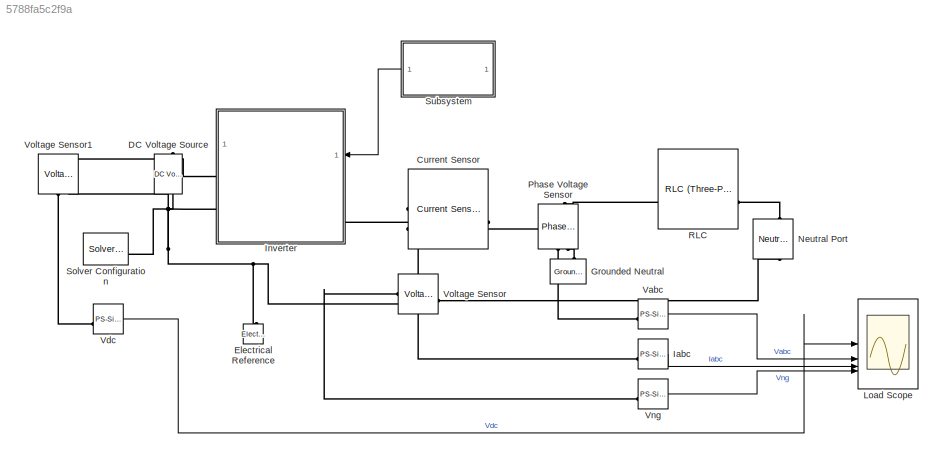
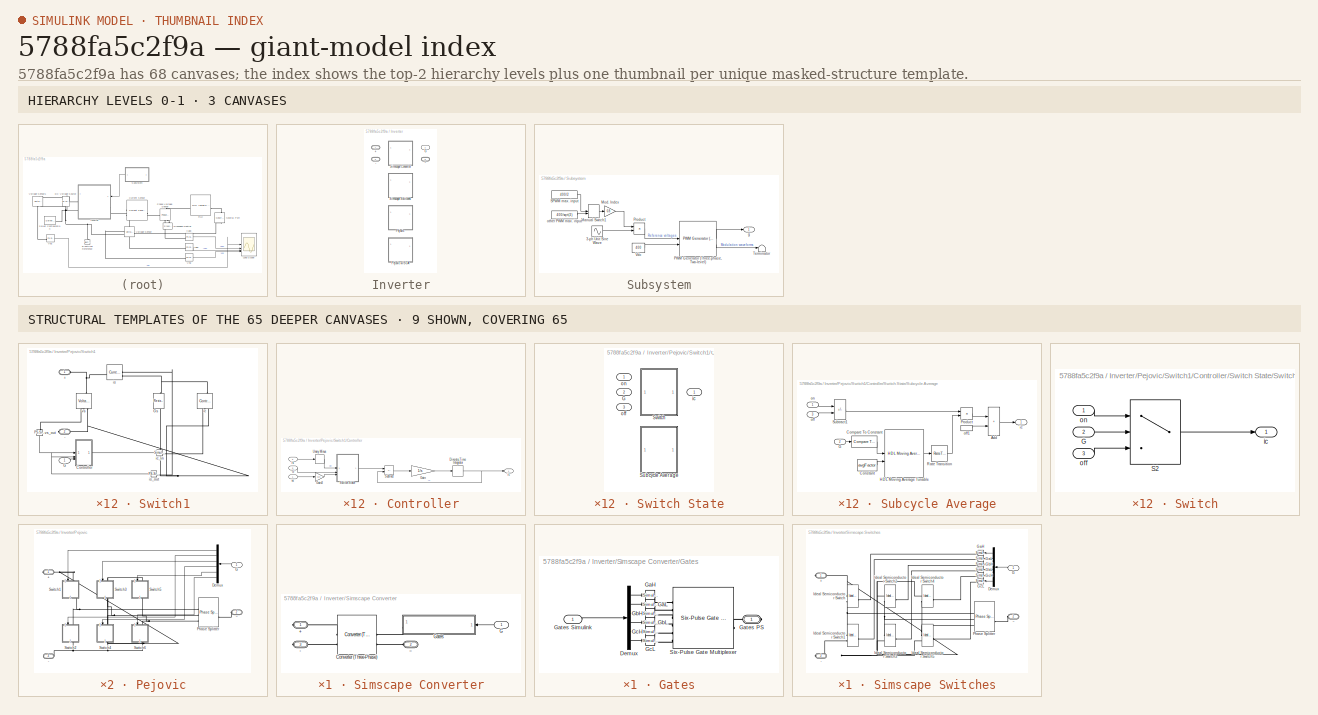
[diagram: thumbnail index - top-2 hierarchy levels (3 canvases) + 9 structural-template representatives of the remaining 65 canvases]
MODEL slx_5788fa5c2f9a
KIND model
CONFIG AbsTol = 1e-6
CONFIG EnableMultiTasking = off
CONFIG FixedStep = auto
CONFIG MaxStep = 1e-4
CONFIG MinStep = auto
CONFIG PreLoadFcn = ts = 1e-5; % local solver sample period\nfsw = 1e3; % switching frequency
CONFIG RelTol = 1e-6
CONFIG SampleTimeConstraint = Unconstrained
CONFIG SolverName = FixedStepDiscrete
CONFIG StartTime = 0.0
CONFIG StopTime = 100/fsw
BLOCK [Reference] Current Sensor  REF=ee_lib/Sensors &
Transducers/Current Sensor
(Three-Phase)
  SourceBlock = ee_lib/Sensors &\nTransducers/Current Sensor\n(Three-Phase)
  SourceType = Current Sensor\n(Three-Phase)
BLOCK [Reference] DC Voltage Source  REF=fl_lib/Electrical/Electrical Sources/DC Voltage Source
  NameLocation = left
  SourceBlock = fl_lib/Electrical/Electrical Sources/DC Voltage Source
  SourceType = DC Voltage Source
BLOCK [Reference] Electrical Reference  REF=fl_lib/Electrical/Electrical Elements/Electrical Reference
  NameLocation = right
  SourceBlock = fl_lib/Electrical/Electrical Elements/Electrical Reference
  SourceType = Electrical Reference
BLOCK [Reference] Grounded Neutral  REF=ee_lib/Connectors &
References/Grounded Neutral
(Three-Phase)
  NameLocation = right
  SourceBlock = ee_lib/Connectors &\nReferences/Grounded Neutral\n(Three-Phase)
  SourceType = Grounded Neutral\n(Three-Phase)
BLOCK [Reference] Iabc  REF=nesl_utility/PS-Simulink
Converter
  SourceBlock = nesl_utility/PS-Simulink\nConverter
  SourceType = PS-Simulink\nConverter
BLOCK [SubSystem] Inverter
  LabelModeActiveChoice = SimscapeConv
  Variant = on
  VariantControl = Choice
  VariantControlMode = label
BLOCK [PMIOPort] Inverter/+
  Side = Right
BLOCK [PMIOPort] Inverter/-
  Port = 2
  Side = Right
BLOCK [Inport] Inverter/G
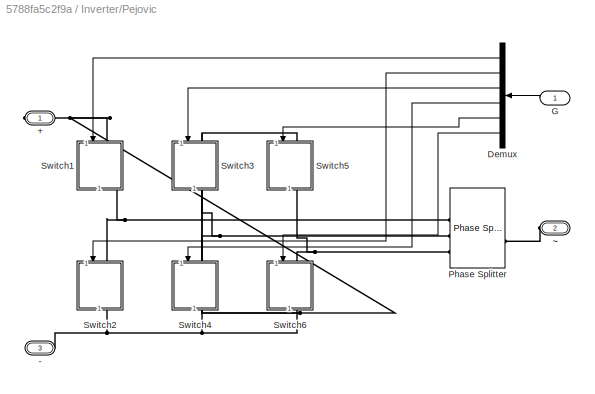
BLOCK [SubSystem] Inverter/Pejovic
  VariantControl = Pejovic
BLOCK [SubSystem] Inverter/Pejovic w//SCA
  VariantControl = PejovicSCA
BLOCK [PMIOPort] Inverter/Pejovic w//SCA/+
  Side = Right
BLOCK [PMIOPort] Inverter/Pejovic w//SCA/-
  Port = 3
  Side = Right
BLOCK [Demux] Inverter/Pejovic w//SCA/Demux
  Outputs = 6
BLOCK [Inport] Inverter/Pejovic w//SCA/G
BLOCK [Reference] Inverter/Pejovic w//SCA/Phase Splitter  REF=ee_lib/Connectors &
References/Phase Splitter
  SourceBlock = ee_lib/Connectors &\nReferences/Phase Splitter
  SourceType = Phase Splitter
BLOCK [SubSystem] Inverter/Pejovic w//SCA/Switch1
  CopyFcn = set_param(gcb, 'LinkStatus', 'none');
  NameLocation = left
BLOCK [PMIOPort] Inverter/Pejovic w//SCA/Switch1/+
  Side = Left
BLOCK [PMIOPort] Inverter/Pejovic w//SCA/Switch1/-
  NameLocation = top
  Port = 2
  Side = Right
BLOCK [SubSystem] Inverter/Pejovic w//SCA/Switch1/Controller
BLOCK [DiscreteIntegrator] Inverter/Pejovic w//SCA/Switch1/Controller/Discrete-Time Integrator
  ICPrevOutput = DiscIntNeverNeededParam
  ICPrevScaledInput = DiscIntNeverNeededParam
  InitialConditionSetting = Auto
  IntegratorMethod = Accumulation: Forward Euler
  SampleTime = -1
BLOCK [Inport] Inverter/Pejovic w//SCA/Switch1/Controller/G
  Port = 3
BLOCK [Gain] Inverter/Pejovic w//SCA/Switch1/Controller/Gain
  Gain = 1/s
BLOCK [Gain] Inverter/Pejovic w//SCA/Switch1/Controller/Gain3
  Gain = Gs
BLOCK [Sum] Inverter/Pejovic w//SCA/Switch1/Controller/Subtract
  IconShape = rectangular
  Inputs = +-
BLOCK [SubSystem] Inverter/Pejovic w//SCA/Switch1/Controller/Switch State
  Variant = on
  VariantControl = Choice
BLOCK [Inport] Inverter/Pejovic w//SCA/Switch1/Controller/Switch State/G
  Port = 2
BLOCK [SubSystem] Inverter/Pejovic w//SCA/Switch1/Controller/Switch State/Subcycle Average
  VariantControl = avgFactor > 1
BLOCK [Sum] Inverter/Pejovic w//SCA/Switch1/Controller/Switch State/Subcycle Average/Add
  IconShape = rectangular
BLOCK [Reference] Inverter/Pejovic w//SCA/Switch1/Controller/Switch State/Subcycle Average/Compare To Constant  REF=simulink/Logic and Bit
Operations/Compare
To Constant
  SourceBlock = simulink/Logic and Bit\nOperations/Compare\nTo Constant
  SourceType = Compare To Constant
BLOCK [Constant] Inverter/Pejovic w//SCA/Switch1/Controller/Switch State/Subcycle Average/Constant
  OutDataTypeStr = uint16
  SampleTime = -1
  Value = avgFactor
BLOCK [Inport] Inverter/Pejovic w//SCA/Switch1/Controller/Switch State/Subcycle Average/G
  Port = 2
BLOCK [Reference] Inverter/Pejovic w//SCA/Switch1/Controller/Switch State/Subcycle Average/HDL Moving Average Tunable  REF=fpga_utils_lib/HDL Moving Average Tunable  (lib defined in slx_141b27237374)
  SourceBlock = fpga_utils_lib/HDL Moving Average Tunable
  SourceType = SubSystem
BLOCK [Product] Inverter/Pejovic w//SCA/Switch1/Controller/Switch State/Subcycle Average/Product
  InputSameDT = on
BLOCK [RateTransition] Inverter/Pejovic w//SCA/Switch1/Controller/Switch State/Subcycle Average/Rate Transition
  OutPortSampleTimeMultiple = avgFactor
  OutPortSampleTimeOpt = Multiple of input port sample time
BLOCK [Sum] Inverter/Pejovic w//SCA/Switch1/Controller/Switch State/Subcycle Average/Subtract1
  IconShape = rectangular
  Inputs = +-
BLOCK [Outport] Inverter/Pejovic w//SCA/Switch1/Controller/Switch State/Subcycle Average/ic
BLOCK [Inport] Inverter/Pejovic w//SCA/Switch1/Controller/Switch State/Subcycle Average/off
  Port = 3
BLOCK [InportShadow] Inverter/Pejovic w//SCA/Switch1/Controller/Switch State/Subcycle Average/off1
  Port = 3
BLOCK [Inport] Inverter/Pejovic w//SCA/Switch1/Controller/Switch State/Subcycle Average/on
BLOCK [SubSystem] Inverter/Pejovic w//SCA/Switch1/Controller/Switch State/Switch
  VariantControl = avgFactor == 1
BLOCK [Inport] Inverter/Pejovic w//SCA/Switch1/Controller/Switch State/Switch/G
  Port = 2
BLOCK [Switch] Inverter/Pejovic w//SCA/Switch1/Controller/Switch State/Switch/S2
  InputSameDT = off
  SaturateOnIntegerOverflow = off
  Threshold = threshold
BLOCK [Outport] Inverter/Pejovic w//SCA/Switch1/Controller/Switch State/Switch/ic
BLOCK [Inport] Inverter/Pejovic w//SCA/Switch1/Controller/Switch State/Switch/off
  Port = 3
BLOCK [Inport] Inverter/Pejovic w//SCA/Switch1/Controller/Switch State/Switch/on
BLOCK [Outport] Inverter/Pejovic w//SCA/Switch1/Controller/Switch State/ic
BLOCK [Inport] Inverter/Pejovic w//SCA/Switch1/Controller/Switch State/off
  Port = 3
BLOCK [Inport] Inverter/Pejovic w//SCA/Switch1/Controller/Switch State/on
BLOCK [UnaryMinus] Inverter/Pejovic w//SCA/Switch1/Controller/Unary Minus
BLOCK [Outport] Inverter/Pejovic w//SCA/Switch1/Controller/ic
BLOCK [Inport] Inverter/Pejovic w//SCA/Switch1/Controller/is
  NameLocation = top
  Port = 2
BLOCK [Inport] Inverter/Pejovic w//SCA/Switch1/Controller/vs
BLOCK [Inport] Inverter/Pejovic w//SCA/Switch1/G
BLOCK [Reference] Inverter/Pejovic w//SCA/Switch1/Gs  REF=fl_lib/Electrical/Electrical Elements/Resistor
  LibrarySourceBlock = SimscapeFPGAHIL_lib/Linearized Switch Models/Switch/Gs
  NameLocation = right
  SourceBlock = fl_lib/Electrical/Electrical Elements/Resistor
  SourceType = Resistor
BLOCK [Reference] Inverter/Pejovic w//SCA/Switch1/ic  REF=fl_lib/Electrical/Electrical Sources/Controlled Current
Source
  LibrarySourceBlock = SimscapeFPGAHIL_lib/Linearized Switch Models/Switch/ic
  NameLocation = right
  SourceBlock = fl_lib/Electrical/Electrical Sources/Controlled Current\nSource
  SourceType = Controlled Current\nSource
BLOCK [Reference] Inverter/Pejovic w//SCA/Switch1/ic_in  REF=nesl_utility/Simulink-PS
Converter
  LibrarySourceBlock = SimscapeFPGAHIL_lib/Linearized Switch Models/Switch/ic_in
  SourceBlock = nesl_utility/Simulink-PS\nConverter
  SourceType = Simulink-PS\nConverter
BLOCK [Reference] Inverter/Pejovic w//SCA/Switch1/is  REF=fl_lib/Electrical/Electrical Sensors/Current Sensor
  LibrarySourceBlock = SimscapeFPGAHIL_lib/Linearized Switch Models/Switch/is
  SourceBlock = fl_lib/Electrical/Electrical Sensors/Current Sensor
  SourceType = Current Sensor
BLOCK [Reference] Inverter/Pejovic w//SCA/Switch1/is_out  REF=nesl_utility/PS-Simulink
Converter
  LibrarySourceBlock = SimscapeFPGAHIL_lib/Linearized Switch Models/Switch/is_out
  SourceBlock = nesl_utility/PS-Simulink\nConverter
  SourceType = PS-Simulink\nConverter
BLOCK [Reference] Inverter/Pejovic w//SCA/Switch1/vs  REF=fl_lib/Electrical/Electrical Sensors/Voltage Sensor
  LibrarySourceBlock = SimscapeFPGAHIL_lib/Linearized Switch Models/Switch/vs
  NameLocation = left
  SourceBlock = fl_lib/Electrical/Electrical Sensors/Voltage Sensor
  SourceType = Voltage Sensor
BLOCK [Reference] Inverter/Pejovic w//SCA/Switch1/vs_out  REF=nesl_utility/PS-Simulink
Converter
  LibrarySourceBlock = SimscapeFPGAHIL_lib/Linearized Switch Models/Switch/vs_out
  NameLocation = left
  SourceBlock = nesl_utility/PS-Simulink\nConverter
  SourceType = PS-Simulink\nConverter
BLOCK [SubSystem] Inverter/Pejovic w//SCA/Switch2
  CopyFcn = set_param(gcb, 'LinkStatus', 'none');
  NameLocation = left
BLOCK [PMIOPort] Inverter/Pejovic w//SCA/Switch2/+
  Side = Left
BLOCK [PMIOPort] Inverter/Pejovic w//SCA/Switch2/-
  NameLocation = top
  Port = 2
  Side = Right
BLOCK [SubSystem] Inverter/Pejovic w//SCA/Switch2/Controller
BLOCK [DiscreteIntegrator] Inverter/Pejovic w//SCA/Switch2/Controller/Discrete-Time Integrator
  ICPrevOutput = DiscIntNeverNeededParam
  ICPrevScaledInput = DiscIntNeverNeededParam
  InitialConditionSetting = Auto
  IntegratorMethod = Accumulation: Forward Euler
  SampleTime = -1
BLOCK [Inport] Inverter/Pejovic w//SCA/Switch2/Controller/G
  Port = 3
BLOCK [Gain] Inverter/Pejovic w//SCA/Switch2/Controller/Gain
  Gain = 1/s
BLOCK [Gain] Inverter/Pejovic w//SCA/Switch2/Controller/Gain3
  Gain = Gs
BLOCK [Sum] Inverter/Pejovic w//SCA/Switch2/Controller/Subtract
  IconShape = rectangular
  Inputs = +-
BLOCK [SubSystem] Inverter/Pejovic w//SCA/Switch2/Controller/Switch State
  Variant = on
  VariantControl = Choice
BLOCK [Inport] Inverter/Pejovic w//SCA/Switch2/Controller/Switch State/G
  Port = 2
BLOCK [SubSystem] Inverter/Pejovic w//SCA/Switch2/Controller/Switch State/Subcycle Average
  VariantControl = avgFactor > 1
BLOCK [Sum] Inverter/Pejovic w//SCA/Switch2/Controller/Switch State/Subcycle Average/Add
  IconShape = rectangular
BLOCK [Reference] Inverter/Pejovic w//SCA/Switch2/Controller/Switch State/Subcycle Average/Compare To Constant  REF=simulink/Logic and Bit
Operations/Compare
To Constant
  SourceBlock = simulink/Logic and Bit\nOperations/Compare\nTo Constant
  SourceType = Compare To Constant
BLOCK [Constant] Inverter/Pejovic w//SCA/Switch2/Controller/Switch State/Subcycle Average/Constant
  OutDataTypeStr = uint16
  SampleTime = -1
  Value = avgFactor
BLOCK [Inport] Inverter/Pejovic w//SCA/Switch2/Controller/Switch State/Subcycle Average/G
  Port = 2
BLOCK [Reference] Inverter/Pejovic w//SCA/Switch2/Controller/Switch State/Subcycle Average/HDL Moving Average Tunable  REF=fpga_utils_lib/HDL Moving Average Tunable  (lib defined in slx_141b27237374)
  SourceBlock = fpga_utils_lib/HDL Moving Average Tunable
  SourceType = SubSystem
BLOCK [Product] Inverter/Pejovic w//SCA/Switch2/Controller/Switch State/Subcycle Average/Product
  InputSameDT = on
BLOCK [RateTransition] Inverter/Pejovic w//SCA/Switch2/Controller/Switch State/Subcycle Average/Rate Transition
  OutPortSampleTimeMultiple = avgFactor
  OutPortSampleTimeOpt = Multiple of input port sample time
BLOCK [Sum] Inverter/Pejovic w//SCA/Switch2/Controller/Switch State/Subcycle Average/Subtract1
  IconShape = rectangular
  Inputs = +-
BLOCK [Outport] Inverter/Pejovic w//SCA/Switch2/Controller/Switch State/Subcycle Average/ic
BLOCK [Inport] Inverter/Pejovic w//SCA/Switch2/Controller/Switch State/Subcycle Average/off
  Port = 3
BLOCK [InportShadow] Inverter/Pejovic w//SCA/Switch2/Controller/Switch State/Subcycle Average/off1
  Port = 3
BLOCK [Inport] Inverter/Pejovic w//SCA/Switch2/Controller/Switch State/Subcycle Average/on
BLOCK [SubSystem] Inverter/Pejovic w//SCA/Switch2/Controller/Switch State/Switch
  VariantControl = avgFactor == 1
BLOCK [Inport] Inverter/Pejovic w//SCA/Switch2/Controller/Switch State/Switch/G
  Port = 2
BLOCK [Switch] Inverter/Pejovic w//SCA/Switch2/Controller/Switch State/Switch/S2
  InputSameDT = off
  SaturateOnIntegerOverflow = off
  Threshold = threshold
BLOCK [Outport] Inverter/Pejovic w//SCA/Switch2/Controller/Switch State/Switch/ic
BLOCK [Inport] Inverter/Pejovic w//SCA/Switch2/Controller/Switch State/Switch/off
  Port = 3
BLOCK [Inport] Inverter/Pejovic w//SCA/Switch2/Controller/Switch State/Switch/on
BLOCK [Outport] Inverter/Pejovic w//SCA/Switch2/Controller/Switch State/ic
BLOCK [Inport] Inverter/Pejovic w//SCA/Switch2/Controller/Switch State/off
  Port = 3
BLOCK [Inport] Inverter/Pejovic w//SCA/Switch2/Controller/Switch State/on
BLOCK [UnaryMinus] Inverter/Pejovic w//SCA/Switch2/Controller/Unary Minus
BLOCK [Outport] Inverter/Pejovic w//SCA/Switch2/Controller/ic
BLOCK [Inport] Inverter/Pejovic w//SCA/Switch2/Controller/is
  NameLocation = top
  Port = 2
BLOCK [Inport] Inverter/Pejovic w//SCA/Switch2/Controller/vs
BLOCK [Inport] Inverter/Pejovic w//SCA/Switch2/G
BLOCK [Reference] Inverter/Pejovic w//SCA/Switch2/Gs  REF=fl_lib/Electrical/Electrical Elements/Resistor
  LibrarySourceBlock = SimscapeFPGAHIL_lib/Linearized Switch Models/Switch/Gs
  NameLocation = right
  SourceBlock = fl_lib/Electrical/Electrical Elements/Resistor
  SourceType = Resistor
BLOCK [Reference] Inverter/Pejovic w//SCA/Switch2/ic  REF=fl_lib/Electrical/Electrical Sources/Controlled Current
Source
  LibrarySourceBlock = SimscapeFPGAHIL_lib/Linearized Switch Models/Switch/ic
  NameLocation = right
  SourceBlock = fl_lib/Electrical/Electrical Sources/Controlled Current\nSource
  SourceType = Controlled Current\nSource
BLOCK [Reference] Inverter/Pejovic w//SCA/Switch2/ic_in  REF=nesl_utility/Simulink-PS
Converter
  LibrarySourceBlock = SimscapeFPGAHIL_lib/Linearized Switch Models/Switch/ic_in
  SourceBlock = nesl_utility/Simulink-PS\nConverter
  SourceType = Simulink-PS\nConverter
BLOCK [Reference] Inverter/Pejovic w//SCA/Switch2/is  REF=fl_lib/Electrical/Electrical Sensors/Current Sensor
  LibrarySourceBlock = SimscapeFPGAHIL_lib/Linearized Switch Models/Switch/is
  SourceBlock = fl_lib/Electrical/Electrical Sensors/Current Sensor
  SourceType = Current Sensor
BLOCK [Reference] Inverter/Pejovic w//SCA/Switch2/is_out  REF=nesl_utility/PS-Simulink
Converter
  LibrarySourceBlock = SimscapeFPGAHIL_lib/Linearized Switch Models/Switch/is_out
  SourceBlock = nesl_utility/PS-Simulink\nConverter
  SourceType = PS-Simulink\nConverter
BLOCK [Reference] Inverter/Pejovic w//SCA/Switch2/vs  REF=fl_lib/Electrical/Electrical Sensors/Voltage Sensor
  LibrarySourceBlock = SimscapeFPGAHIL_lib/Linearized Switch Models/Switch/vs
  NameLocation = left
  SourceBlock = fl_lib/Electrical/Electrical Sensors/Voltage Sensor
  SourceType = Voltage Sensor
BLOCK [Reference] Inverter/Pejovic w//SCA/Switch2/vs_out  REF=nesl_utility/PS-Simulink
Converter
  LibrarySourceBlock = SimscapeFPGAHIL_lib/Linearized Switch Models/Switch/vs_out
  NameLocation = left
  SourceBlock = nesl_utility/PS-Simulink\nConverter
  SourceType = PS-Simulink\nConverter
BLOCK [SubSystem] Inverter/Pejovic w//SCA/Switch3
  CopyFcn = set_param(gcb, 'LinkStatus', 'none');
  NameLocation = left
BLOCK [PMIOPort] Inverter/Pejovic w//SCA/Switch3/+
  Side = Left
BLOCK [PMIOPort] Inverter/Pejovic w//SCA/Switch3/-
  NameLocation = top
  Port = 2
  Side = Right
BLOCK [SubSystem] Inverter/Pejovic w//SCA/Switch3/Controller
BLOCK [DiscreteIntegrator] Inverter/Pejovic w//SCA/Switch3/Controller/Discrete-Time Integrator
  ICPrevOutput = DiscIntNeverNeededParam
  ICPrevScaledInput = DiscIntNeverNeededParam
  InitialConditionSetting = Auto
  IntegratorMethod = Accumulation: Forward Euler
  SampleTime = -1
BLOCK [Inport] Inverter/Pejovic w//SCA/Switch3/Controller/G
  Port = 3
BLOCK [Gain] Inverter/Pejovic w//SCA/Switch3/Controller/Gain
  Gain = 1/s
BLOCK [Gain] Inverter/Pejovic w//SCA/Switch3/Controller/Gain3
  Gain = Gs
BLOCK [Sum] Inverter/Pejovic w//SCA/Switch3/Controller/Subtract
  IconShape = rectangular
  Inputs = +-
BLOCK [SubSystem] Inverter/Pejovic w//SCA/Switch3/Controller/Switch State
  Variant = on
  VariantControl = Choice
BLOCK [Inport] Inverter/Pejovic w//SCA/Switch3/Controller/Switch State/G
  Port = 2
BLOCK [SubSystem] Inverter/Pejovic w//SCA/Switch3/Controller/Switch State/Subcycle Average
  VariantControl = avgFactor > 1
BLOCK [Sum] Inverter/Pejovic w//SCA/Switch3/Controller/Switch State/Subcycle Average/Add
  IconShape = rectangular
BLOCK [Reference] Inverter/Pejovic w//SCA/Switch3/Controller/Switch State/Subcycle Average/Compare To Constant  REF=simulink/Logic and Bit
Operations/Compare
To Constant
  SourceBlock = simulink/Logic and Bit\nOperations/Compare\nTo Constant
  SourceType = Compare To Constant
BLOCK [Constant] Inverter/Pejovic w//SCA/Switch3/Controller/Switch State/Subcycle Average/Constant
  OutDataTypeStr = uint16
  SampleTime = -1
  Value = avgFactor
BLOCK [Inport] Inverter/Pejovic w//SCA/Switch3/Controller/Switch State/Subcycle Average/G
  Port = 2
BLOCK [Reference] Inverter/Pejovic w//SCA/Switch3/Controller/Switch State/Subcycle Average/HDL Moving Average Tunable  REF=fpga_utils_lib/HDL Moving Average Tunable  (lib defined in slx_141b27237374)
  SourceBlock = fpga_utils_lib/HDL Moving Average Tunable
  SourceType = SubSystem
BLOCK [Product] Inverter/Pejovic w//SCA/Switch3/Controller/Switch State/Subcycle Average/Product
  InputSameDT = on
BLOCK [RateTransition] Inverter/Pejovic w//SCA/Switch3/Controller/Switch State/Subcycle Average/Rate Transition
  OutPortSampleTimeMultiple = avgFactor
  OutPortSampleTimeOpt = Multiple of input port sample time
BLOCK [Sum] Inverter/Pejovic w//SCA/Switch3/Controller/Switch State/Subcycle Average/Subtract1
  IconShape = rectangular
  Inputs = +-
BLOCK [Outport] Inverter/Pejovic w//SCA/Switch3/Controller/Switch State/Subcycle Average/ic
BLOCK [Inport] Inverter/Pejovic w//SCA/Switch3/Controller/Switch State/Subcycle Average/off
  Port = 3
BLOCK [InportShadow] Inverter/Pejovic w//SCA/Switch3/Controller/Switch State/Subcycle Average/off1
  Port = 3
BLOCK [Inport] Inverter/Pejovic w//SCA/Switch3/Controller/Switch State/Subcycle Average/on
BLOCK [SubSystem] Inverter/Pejovic w//SCA/Switch3/Controller/Switch State/Switch
  VariantControl = avgFactor == 1
BLOCK [Inport] Inverter/Pejovic w//SCA/Switch3/Controller/Switch State/Switch/G
  Port = 2
BLOCK [Switch] Inverter/Pejovic w//SCA/Switch3/Controller/Switch State/Switch/S2
  InputSameDT = off
  SaturateOnIntegerOverflow = off
  Threshold = threshold
BLOCK [Outport] Inverter/Pejovic w//SCA/Switch3/Controller/Switch State/Switch/ic
BLOCK [Inport] Inverter/Pejovic w//SCA/Switch3/Controller/Switch State/Switch/off
  Port = 3
BLOCK [Inport] Inverter/Pejovic w//SCA/Switch3/Controller/Switch State/Switch/on
BLOCK [Outport] Inverter/Pejovic w//SCA/Switch3/Controller/Switch State/ic
BLOCK [Inport] Inverter/Pejovic w//SCA/Switch3/Controller/Switch State/off
  Port = 3
BLOCK [Inport] Inverter/Pejovic w//SCA/Switch3/Controller/Switch State/on
BLOCK [UnaryMinus] Inverter/Pejovic w//SCA/Switch3/Controller/Unary Minus
BLOCK [Outport] Inverter/Pejovic w//SCA/Switch3/Controller/ic
BLOCK [Inport] Inverter/Pejovic w//SCA/Switch3/Controller/is
  NameLocation = top
  Port = 2
BLOCK [Inport] Inverter/Pejovic w//SCA/Switch3/Controller/vs
BLOCK [Inport] Inverter/Pejovic w//SCA/Switch3/G
BLOCK [Reference] Inverter/Pejovic w//SCA/Switch3/Gs  REF=fl_lib/Electrical/Electrical Elements/Resistor
  LibrarySourceBlock = SimscapeFPGAHIL_lib/Linearized Switch Models/Switch/Gs
  NameLocation = right
  SourceBlock = fl_lib/Electrical/Electrical Elements/Resistor
  SourceType = Resistor
BLOCK [Reference] Inverter/Pejovic w//SCA/Switch3/ic  REF=fl_lib/Electrical/Electrical Sources/Controlled Current
Source
  LibrarySourceBlock = SimscapeFPGAHIL_lib/Linearized Switch Models/Switch/ic
  NameLocation = right
  SourceBlock = fl_lib/Electrical/Electrical Sources/Controlled Current\nSource
  SourceType = Controlled Current\nSource
BLOCK [Reference] Inverter/Pejovic w//SCA/Switch3/ic_in  REF=nesl_utility/Simulink-PS
Converter
  LibrarySourceBlock = SimscapeFPGAHIL_lib/Linearized Switch Models/Switch/ic_in
  SourceBlock = nesl_utility/Simulink-PS\nConverter
  SourceType = Simulink-PS\nConverter
BLOCK [Reference] Inverter/Pejovic w//SCA/Switch3/is  REF=fl_lib/Electrical/Electrical Sensors/Current Sensor
  LibrarySourceBlock = SimscapeFPGAHIL_lib/Linearized Switch Models/Switch/is
  SourceBlock = fl_lib/Electrical/Electrical Sensors/Current Sensor
  SourceType = Current Sensor
BLOCK [Reference] Inverter/Pejovic w//SCA/Switch3/is_out  REF=nesl_utility/PS-Simulink
Converter
  LibrarySourceBlock = SimscapeFPGAHIL_lib/Linearized Switch Models/Switch/is_out
  SourceBlock = nesl_utility/PS-Simulink\nConverter
  SourceType = PS-Simulink\nConverter
BLOCK [Reference] Inverter/Pejovic w//SCA/Switch3/vs  REF=fl_lib/Electrical/Electrical Sensors/Voltage Sensor
  LibrarySourceBlock = SimscapeFPGAHIL_lib/Linearized Switch Models/Switch/vs
  NameLocation = left
  SourceBlock = fl_lib/Electrical/Electrical Sensors/Voltage Sensor
  SourceType = Voltage Sensor
BLOCK [Reference] Inverter/Pejovic w//SCA/Switch3/vs_out  REF=nesl_utility/PS-Simulink
Converter
  LibrarySourceBlock = SimscapeFPGAHIL_lib/Linearized Switch Models/Switch/vs_out
  NameLocation = left
  SourceBlock = nesl_utility/PS-Simulink\nConverter
  SourceType = PS-Simulink\nConverter
BLOCK [SubSystem] Inverter/Pejovic w//SCA/Switch4
  CopyFcn = set_param(gcb, 'LinkStatus', 'none');
  NameLocation = left
BLOCK [PMIOPort] Inverter/Pejovic w//SCA/Switch4/+
  Side = Left
BLOCK [PMIOPort] Inverter/Pejovic w//SCA/Switch4/-
  NameLocation = top
  Port = 2
  Side = Right
BLOCK [SubSystem] Inverter/Pejovic w//SCA/Switch4/Controller
BLOCK [DiscreteIntegrator] Inverter/Pejovic w//SCA/Switch4/Controller/Discrete-Time Integrator
  ICPrevOutput = DiscIntNeverNeededParam
  ICPrevScaledInput = DiscIntNeverNeededParam
  InitialConditionSetting = Auto
  IntegratorMethod = Accumulation: Forward Euler
  SampleTime = -1
BLOCK [Inport] Inverter/Pejovic w//SCA/Switch4/Controller/G
  Port = 3
BLOCK [Gain] Inverter/Pejovic w//SCA/Switch4/Controller/Gain
  Gain = 1/s
BLOCK [Gain] Inverter/Pejovic w//SCA/Switch4/Controller/Gain3
  Gain = Gs
BLOCK [Sum] Inverter/Pejovic w//SCA/Switch4/Controller/Subtract
  IconShape = rectangular
  Inputs = +-
BLOCK [SubSystem] Inverter/Pejovic w//SCA/Switch4/Controller/Switch State
  Variant = on
  VariantControl = Choice
BLOCK [Inport] Inverter/Pejovic w//SCA/Switch4/Controller/Switch State/G
  Port = 2
BLOCK [SubSystem] Inverter/Pejovic w//SCA/Switch4/Controller/Switch State/Subcycle Average
  VariantControl = avgFactor > 1
BLOCK [Sum] Inverter/Pejovic w//SCA/Switch4/Controller/Switch State/Subcycle Average/Add
  IconShape = rectangular
BLOCK [Reference] Inverter/Pejovic w//SCA/Switch4/Controller/Switch State/Subcycle Average/Compare To Constant  REF=simulink/Logic and Bit
Operations/Compare
To Constant
  SourceBlock = simulink/Logic and Bit\nOperations/Compare\nTo Constant
  SourceType = Compare To Constant
BLOCK [Constant] Inverter/Pejovic w//SCA/Switch4/Controller/Switch State/Subcycle Average/Constant
  OutDataTypeStr = uint16
  SampleTime = -1
  Value = avgFactor
BLOCK [Inport] Inverter/Pejovic w//SCA/Switch4/Controller/Switch State/Subcycle Average/G
  Port = 2
BLOCK [Reference] Inverter/Pejovic w//SCA/Switch4/Controller/Switch State/Subcycle Average/HDL Moving Average Tunable  REF=fpga_utils_lib/HDL Moving Average Tunable  (lib defined in slx_141b27237374)
  SourceBlock = fpga_utils_lib/HDL Moving Average Tunable
  SourceType = SubSystem
BLOCK [Product] Inverter/Pejovic w//SCA/Switch4/Controller/Switch State/Subcycle Average/Product
  InputSameDT = on
BLOCK [RateTransition] Inverter/Pejovic w//SCA/Switch4/Controller/Switch State/Subcycle Average/Rate Transition
  OutPortSampleTimeMultiple = avgFactor
  OutPortSampleTimeOpt = Multiple of input port sample time
BLOCK [Sum] Inverter/Pejovic w//SCA/Switch4/Controller/Switch State/Subcycle Average/Subtract1
  IconShape = rectangular
  Inputs = +-
BLOCK [Outport] Inverter/Pejovic w//SCA/Switch4/Controller/Switch State/Subcycle Average/ic
BLOCK [Inport] Inverter/Pejovic w//SCA/Switch4/Controller/Switch State/Subcycle Average/off
  Port = 3
BLOCK [InportShadow] Inverter/Pejovic w//SCA/Switch4/Controller/Switch State/Subcycle Average/off1
  Port = 3
BLOCK [Inport] Inverter/Pejovic w//SCA/Switch4/Controller/Switch State/Subcycle Average/on
BLOCK [SubSystem] Inverter/Pejovic w//SCA/Switch4/Controller/Switch State/Switch
  VariantControl = avgFactor == 1
BLOCK [Inport] Inverter/Pejovic w//SCA/Switch4/Controller/Switch State/Switch/G
  Port = 2
BLOCK [Switch] Inverter/Pejovic w//SCA/Switch4/Controller/Switch State/Switch/S2
  InputSameDT = off
  SaturateOnIntegerOverflow = off
  Threshold = threshold
BLOCK [Outport] Inverter/Pejovic w//SCA/Switch4/Controller/Switch State/Switch/ic
BLOCK [Inport] Inverter/Pejovic w//SCA/Switch4/Controller/Switch State/Switch/off
  Port = 3
BLOCK [Inport] Inverter/Pejovic w//SCA/Switch4/Controller/Switch State/Switch/on
BLOCK [Outport] Inverter/Pejovic w//SCA/Switch4/Controller/Switch State/ic
BLOCK [Inport] Inverter/Pejovic w//SCA/Switch4/Controller/Switch State/off
  Port = 3
BLOCK [Inport] Inverter/Pejovic w//SCA/Switch4/Controller/Switch State/on
BLOCK [UnaryMinus] Inverter/Pejovic w//SCA/Switch4/Controller/Unary Minus
BLOCK [Outport] Inverter/Pejovic w//SCA/Switch4/Controller/ic
BLOCK [Inport] Inverter/Pejovic w//SCA/Switch4/Controller/is
  NameLocation = top
  Port = 2
BLOCK [Inport] Inverter/Pejovic w//SCA/Switch4/Controller/vs
BLOCK [Inport] Inverter/Pejovic w//SCA/Switch4/G
BLOCK [Reference] Inverter/Pejovic w//SCA/Switch4/Gs  REF=fl_lib/Electrical/Electrical Elements/Resistor
  LibrarySourceBlock = SimscapeFPGAHIL_lib/Linearized Switch Models/Switch/Gs
  NameLocation = right
  SourceBlock = fl_lib/Electrical/Electrical Elements/Resistor
  SourceType = Resistor
BLOCK [Reference] Inverter/Pejovic w//SCA/Switch4/ic  REF=fl_lib/Electrical/Electrical Sources/Controlled Current
Source
  LibrarySourceBlock = SimscapeFPGAHIL_lib/Linearized Switch Models/Switch/ic
  NameLocation = right
  SourceBlock = fl_lib/Electrical/Electrical Sources/Controlled Current\nSource
  SourceType = Controlled Current\nSource
BLOCK [Reference] Inverter/Pejovic w//SCA/Switch4/ic_in  REF=nesl_utility/Simulink-PS
Converter
  LibrarySourceBlock = SimscapeFPGAHIL_lib/Linearized Switch Models/Switch/ic_in
  SourceBlock = nesl_utility/Simulink-PS\nConverter
  SourceType = Simulink-PS\nConverter
BLOCK [Reference] Inverter/Pejovic w//SCA/Switch4/is  REF=fl_lib/Electrical/Electrical Sensors/Current Sensor
  LibrarySourceBlock = SimscapeFPGAHIL_lib/Linearized Switch Models/Switch/is
  SourceBlock = fl_lib/Electrical/Electrical Sensors/Current Sensor
  SourceType = Current Sensor
BLOCK [Reference] Inverter/Pejovic w//SCA/Switch4/is_out  REF=nesl_utility/PS-Simulink
Converter
  LibrarySourceBlock = SimscapeFPGAHIL_lib/Linearized Switch Models/Switch/is_out
  SourceBlock = nesl_utility/PS-Simulink\nConverter
  SourceType = PS-Simulink\nConverter
BLOCK [Reference] Inverter/Pejovic w//SCA/Switch4/vs  REF=fl_lib/Electrical/Electrical Sensors/Voltage Sensor
  LibrarySourceBlock = SimscapeFPGAHIL_lib/Linearized Switch Models/Switch/vs
  NameLocation = left
  SourceBlock = fl_lib/Electrical/Electrical Sensors/Voltage Sensor
  SourceType = Voltage Sensor
BLOCK [Reference] Inverter/Pejovic w//SCA/Switch4/vs_out  REF=nesl_utility/PS-Simulink
Converter
  LibrarySourceBlock = SimscapeFPGAHIL_lib/Linearized Switch Models/Switch/vs_out
  NameLocation = left
  SourceBlock = nesl_utility/PS-Simulink\nConverter
  SourceType = PS-Simulink\nConverter
BLOCK [SubSystem] Inverter/Pejovic w//SCA/Switch5
  CopyFcn = set_param(gcb, 'LinkStatus', 'none');
  NameLocation = left
BLOCK [PMIOPort] Inverter/Pejovic w//SCA/Switch5/+
  Side = Left
BLOCK [PMIOPort] Inverter/Pejovic w//SCA/Switch5/-
  NameLocation = top
  Port = 2
  Side = Right
BLOCK [SubSystem] Inverter/Pejovic w//SCA/Switch5/Controller
BLOCK [DiscreteIntegrator] Inverter/Pejovic w//SCA/Switch5/Controller/Discrete-Time Integrator
  ICPrevOutput = DiscIntNeverNeededParam
  ICPrevScaledInput = DiscIntNeverNeededParam
  InitialConditionSetting = Auto
  IntegratorMethod = Accumulation: Forward Euler
  SampleTime = -1
BLOCK [Inport] Inverter/Pejovic w//SCA/Switch5/Controller/G
  Port = 3
BLOCK [Gain] Inverter/Pejovic w//SCA/Switch5/Controller/Gain
  Gain = 1/s
BLOCK [Gain] Inverter/Pejovic w//SCA/Switch5/Controller/Gain3
  Gain = Gs
BLOCK [Sum] Inverter/Pejovic w//SCA/Switch5/Controller/Subtract
  IconShape = rectangular
  Inputs = +-
BLOCK [SubSystem] Inverter/Pejovic w//SCA/Switch5/Controller/Switch State
  Variant = on
  VariantControl = Choice
BLOCK [Inport] Inverter/Pejovic w//SCA/Switch5/Controller/Switch State/G
  Port = 2
BLOCK [SubSystem] Inverter/Pejovic w//SCA/Switch5/Controller/Switch State/Subcycle Average
  VariantControl = avgFactor > 1
BLOCK [Sum] Inverter/Pejovic w//SCA/Switch5/Controller/Switch State/Subcycle Average/Add
  IconShape = rectangular
BLOCK [Reference] Inverter/Pejovic w//SCA/Switch5/Controller/Switch State/Subcycle Average/Compare To Constant  REF=simulink/Logic and Bit
Operations/Compare
To Constant
  SourceBlock = simulink/Logic and Bit\nOperations/Compare\nTo Constant
  SourceType = Compare To Constant
BLOCK [Constant] Inverter/Pejovic w//SCA/Switch5/Controller/Switch State/Subcycle Average/Constant
  OutDataTypeStr = uint16
  SampleTime = -1
  Value = avgFactor
BLOCK [Inport] Inverter/Pejovic w//SCA/Switch5/Controller/Switch State/Subcycle Average/G
  Port = 2
BLOCK [Reference] Inverter/Pejovic w//SCA/Switch5/Controller/Switch State/Subcycle Average/HDL Moving Average Tunable  REF=fpga_utils_lib/HDL Moving Average Tunable  (lib defined in slx_141b27237374)
  SourceBlock = fpga_utils_lib/HDL Moving Average Tunable
  SourceType = SubSystem
BLOCK [Product] Inverter/Pejovic w//SCA/Switch5/Controller/Switch State/Subcycle Average/Product
  InputSameDT = on
BLOCK [RateTransition] Inverter/Pejovic w//SCA/Switch5/Controller/Switch State/Subcycle Average/Rate Transition
  OutPortSampleTimeMultiple = avgFactor
  OutPortSampleTimeOpt = Multiple of input port sample time
BLOCK [Sum] Inverter/Pejovic w//SCA/Switch5/Controller/Switch State/Subcycle Average/Subtract1
  IconShape = rectangular
  Inputs = +-
BLOCK [Outport] Inverter/Pejovic w//SCA/Switch5/Controller/Switch State/Subcycle Average/ic
BLOCK [Inport] Inverter/Pejovic w//SCA/Switch5/Controller/Switch State/Subcycle Average/off
  Port = 3
BLOCK [InportShadow] Inverter/Pejovic w//SCA/Switch5/Controller/Switch State/Subcycle Average/off1
  Port = 3
BLOCK [Inport] Inverter/Pejovic w//SCA/Switch5/Controller/Switch State/Subcycle Average/on
BLOCK [SubSystem] Inverter/Pejovic w//SCA/Switch5/Controller/Switch State/Switch
  VariantControl = avgFactor == 1
BLOCK [Inport] Inverter/Pejovic w//SCA/Switch5/Controller/Switch State/Switch/G
  Port = 2
BLOCK [Switch] Inverter/Pejovic w//SCA/Switch5/Controller/Switch State/Switch/S2
  InputSameDT = off
  SaturateOnIntegerOverflow = off
  Threshold = threshold
BLOCK [Outport] Inverter/Pejovic w//SCA/Switch5/Controller/Switch State/Switch/ic
BLOCK [Inport] Inverter/Pejovic w//SCA/Switch5/Controller/Switch State/Switch/off
  Port = 3
BLOCK [Inport] Inverter/Pejovic w//SCA/Switch5/Controller/Switch State/Switch/on
BLOCK [Outport] Inverter/Pejovic w//SCA/Switch5/Controller/Switch State/ic
BLOCK [Inport] Inverter/Pejovic w//SCA/Switch5/Controller/Switch State/off
  Port = 3
BLOCK [Inport] Inverter/Pejovic w//SCA/Switch5/Controller/Switch State/on
BLOCK [UnaryMinus] Inverter/Pejovic w//SCA/Switch5/Controller/Unary Minus
BLOCK [Outport] Inverter/Pejovic w//SCA/Switch5/Controller/ic
BLOCK [Inport] Inverter/Pejovic w//SCA/Switch5/Controller/is
  NameLocation = top
  Port = 2
BLOCK [Inport] Inverter/Pejovic w//SCA/Switch5/Controller/vs
BLOCK [Inport] Inverter/Pejovic w//SCA/Switch5/G
BLOCK [Reference] Inverter/Pejovic w//SCA/Switch5/Gs  REF=fl_lib/Electrical/Electrical Elements/Resistor
  LibrarySourceBlock = SimscapeFPGAHIL_lib/Linearized Switch Models/Switch/Gs
  NameLocation = right
  SourceBlock = fl_lib/Electrical/Electrical Elements/Resistor
  SourceType = Resistor
BLOCK [Reference] Inverter/Pejovic w//SCA/Switch5/ic  REF=fl_lib/Electrical/Electrical Sources/Controlled Current
Source
  LibrarySourceBlock = SimscapeFPGAHIL_lib/Linearized Switch Models/Switch/ic
  NameLocation = right
  SourceBlock = fl_lib/Electrical/Electrical Sources/Controlled Current\nSource
  SourceType = Controlled Current\nSource
BLOCK [Reference] Inverter/Pejovic w//SCA/Switch5/ic_in  REF=nesl_utility/Simulink-PS
Converter
  LibrarySourceBlock = SimscapeFPGAHIL_lib/Linearized Switch Models/Switch/ic_in
  SourceBlock = nesl_utility/Simulink-PS\nConverter
  SourceType = Simulink-PS\nConverter
BLOCK [Reference] Inverter/Pejovic w//SCA/Switch5/is  REF=fl_lib/Electrical/Electrical Sensors/Current Sensor
  LibrarySourceBlock = SimscapeFPGAHIL_lib/Linearized Switch Models/Switch/is
  SourceBlock = fl_lib/Electrical/Electrical Sensors/Current Sensor
  SourceType = Current Sensor
BLOCK [Reference] Inverter/Pejovic w//SCA/Switch5/is_out  REF=nesl_utility/PS-Simulink
Converter
  LibrarySourceBlock = SimscapeFPGAHIL_lib/Linearized Switch Models/Switch/is_out
  SourceBlock = nesl_utility/PS-Simulink\nConverter
  SourceType = PS-Simulink\nConverter
BLOCK [Reference] Inverter/Pejovic w//SCA/Switch5/vs  REF=fl_lib/Electrical/Electrical Sensors/Voltage Sensor
  LibrarySourceBlock = SimscapeFPGAHIL_lib/Linearized Switch Models/Switch/vs
  NameLocation = left
  SourceBlock = fl_lib/Electrical/Electrical Sensors/Voltage Sensor
  SourceType = Voltage Sensor
BLOCK [Reference] Inverter/Pejovic w//SCA/Switch5/vs_out  REF=nesl_utility/PS-Simulink
Converter
  LibrarySourceBlock = SimscapeFPGAHIL_lib/Linearized Switch Models/Switch/vs_out
  NameLocation = left
  SourceBlock = nesl_utility/PS-Simulink\nConverter
  SourceType = PS-Simulink\nConverter
BLOCK [SubSystem] Inverter/Pejovic w//SCA/Switch6
  CopyFcn = set_param(gcb, 'LinkStatus', 'none');
  NameLocation = left
BLOCK [PMIOPort] Inverter/Pejovic w//SCA/Switch6/+
  Side = Left
BLOCK [PMIOPort] Inverter/Pejovic w//SCA/Switch6/-
  NameLocation = top
  Port = 2
  Side = Right
BLOCK [SubSystem] Inverter/Pejovic w//SCA/Switch6/Controller
BLOCK [DiscreteIntegrator] Inverter/Pejovic w//SCA/Switch6/Controller/Discrete-Time Integrator
  ICPrevOutput = DiscIntNeverNeededParam
  ICPrevScaledInput = DiscIntNeverNeededParam
  InitialConditionSetting = Auto
  IntegratorMethod = Accumulation: Forward Euler
  SampleTime = -1
BLOCK [Inport] Inverter/Pejovic w//SCA/Switch6/Controller/G
  Port = 3
BLOCK [Gain] Inverter/Pejovic w//SCA/Switch6/Controller/Gain
  Gain = 1/s
BLOCK [Gain] Inverter/Pejovic w//SCA/Switch6/Controller/Gain3
  Gain = Gs
BLOCK [Sum] Inverter/Pejovic w//SCA/Switch6/Controller/Subtract
  IconShape = rectangular
  Inputs = +-
BLOCK [SubSystem] Inverter/Pejovic w//SCA/Switch6/Controller/Switch State
  Variant = on
  VariantControl = Choice
BLOCK [Inport] Inverter/Pejovic w//SCA/Switch6/Controller/Switch State/G
  Port = 2
BLOCK [SubSystem] Inverter/Pejovic w//SCA/Switch6/Controller/Switch State/Subcycle Average
  VariantControl = avgFactor > 1
BLOCK [Sum] Inverter/Pejovic w//SCA/Switch6/Controller/Switch State/Subcycle Average/Add
  IconShape = rectangular
BLOCK [Reference] Inverter/Pejovic w//SCA/Switch6/Controller/Switch State/Subcycle Average/Compare To Constant  REF=simulink/Logic and Bit
Operations/Compare
To Constant
  SourceBlock = simulink/Logic and Bit\nOperations/Compare\nTo Constant
  SourceType = Compare To Constant
BLOCK [Constant] Inverter/Pejovic w//SCA/Switch6/Controller/Switch State/Subcycle Average/Constant
  OutDataTypeStr = uint16
  SampleTime = -1
  Value = avgFactor
BLOCK [Inport] Inverter/Pejovic w//SCA/Switch6/Controller/Switch State/Subcycle Average/G
  Port = 2
BLOCK [Reference] Inverter/Pejovic w//SCA/Switch6/Controller/Switch State/Subcycle Average/HDL Moving Average Tunable  REF=fpga_utils_lib/HDL Moving Average Tunable  (lib defined in slx_141b27237374)
  SourceBlock = fpga_utils_lib/HDL Moving Average Tunable
  SourceType = SubSystem
BLOCK [Product] Inverter/Pejovic w//SCA/Switch6/Controller/Switch State/Subcycle Average/Product
  InputSameDT = on
BLOCK [RateTransition] Inverter/Pejovic w//SCA/Switch6/Controller/Switch State/Subcycle Average/Rate Transition
  OutPortSampleTimeMultiple = avgFactor
  OutPortSampleTimeOpt = Multiple of input port sample time
BLOCK [Sum] Inverter/Pejovic w//SCA/Switch6/Controller/Switch State/Subcycle Average/Subtract1
  IconShape = rectangular
  Inputs = +-
BLOCK [Outport] Inverter/Pejovic w//SCA/Switch6/Controller/Switch State/Subcycle Average/ic
BLOCK [Inport] Inverter/Pejovic w//SCA/Switch6/Controller/Switch State/Subcycle Average/off
  Port = 3
BLOCK [InportShadow] Inverter/Pejovic w//SCA/Switch6/Controller/Switch State/Subcycle Average/off1
  Port = 3
BLOCK [Inport] Inverter/Pejovic w//SCA/Switch6/Controller/Switch State/Subcycle Average/on
BLOCK [SubSystem] Inverter/Pejovic w//SCA/Switch6/Controller/Switch State/Switch
  VariantControl = avgFactor == 1
BLOCK [Inport] Inverter/Pejovic w//SCA/Switch6/Controller/Switch State/Switch/G
  Port = 2
BLOCK [Switch] Inverter/Pejovic w//SCA/Switch6/Controller/Switch State/Switch/S2
  InputSameDT = off
  SaturateOnIntegerOverflow = off
  Threshold = threshold
BLOCK [Outport] Inverter/Pejovic w//SCA/Switch6/Controller/Switch State/Switch/ic
BLOCK [Inport] Inverter/Pejovic w//SCA/Switch6/Controller/Switch State/Switch/off
  Port = 3
BLOCK [Inport] Inverter/Pejovic w//SCA/Switch6/Controller/Switch State/Switch/on
BLOCK [Outport] Inverter/Pejovic w//SCA/Switch6/Controller/Switch State/ic
BLOCK [Inport] Inverter/Pejovic w//SCA/Switch6/Controller/Switch State/off
  Port = 3
BLOCK [Inport] Inverter/Pejovic w//SCA/Switch6/Controller/Switch State/on
BLOCK [UnaryMinus] Inverter/Pejovic w//SCA/Switch6/Controller/Unary Minus
BLOCK [Outport] Inverter/Pejovic w//SCA/Switch6/Controller/ic
BLOCK [Inport] Inverter/Pejovic w//SCA/Switch6/Controller/is
  NameLocation = top
  Port = 2
BLOCK [Inport] Inverter/Pejovic w//SCA/Switch6/Controller/vs
BLOCK [Inport] Inverter/Pejovic w//SCA/Switch6/G
BLOCK [Reference] Inverter/Pejovic w//SCA/Switch6/Gs  REF=fl_lib/Electrical/Electrical Elements/Resistor
  LibrarySourceBlock = SimscapeFPGAHIL_lib/Linearized Switch Models/Switch/Gs
  NameLocation = right
  SourceBlock = fl_lib/Electrical/Electrical Elements/Resistor
  SourceType = Resistor
BLOCK [Reference] Inverter/Pejovic w//SCA/Switch6/ic  REF=fl_lib/Electrical/Electrical Sources/Controlled Current
Source
  LibrarySourceBlock = SimscapeFPGAHIL_lib/Linearized Switch Models/Switch/ic
  NameLocation = right
  SourceBlock = fl_lib/Electrical/Electrical Sources/Controlled Current\nSource
  SourceType = Controlled Current\nSource
BLOCK [Reference] Inverter/Pejovic w//SCA/Switch6/ic_in  REF=nesl_utility/Simulink-PS
Converter
  LibrarySourceBlock = SimscapeFPGAHIL_lib/Linearized Switch Models/Switch/ic_in
  SourceBlock = nesl_utility/Simulink-PS\nConverter
  SourceType = Simulink-PS\nConverter
BLOCK [Reference] Inverter/Pejovic w//SCA/Switch6/is  REF=fl_lib/Electrical/Electrical Sensors/Current Sensor
  LibrarySourceBlock = SimscapeFPGAHIL_lib/Linearized Switch Models/Switch/is
  SourceBlock = fl_lib/Electrical/Electrical Sensors/Current Sensor
  SourceType = Current Sensor
BLOCK [Reference] Inverter/Pejovic w//SCA/Switch6/is_out  REF=nesl_utility/PS-Simulink
Converter
  LibrarySourceBlock = SimscapeFPGAHIL_lib/Linearized Switch Models/Switch/is_out
  SourceBlock = nesl_utility/PS-Simulink\nConverter
  SourceType = PS-Simulink\nConverter
BLOCK [Reference] Inverter/Pejovic w//SCA/Switch6/vs  REF=fl_lib/Electrical/Electrical Sensors/Voltage Sensor
  LibrarySourceBlock = SimscapeFPGAHIL_lib/Linearized Switch Models/Switch/vs
  NameLocation = left
  SourceBlock = fl_lib/Electrical/Electrical Sensors/Voltage Sensor
  SourceType = Voltage Sensor
BLOCK [Reference] Inverter/Pejovic w//SCA/Switch6/vs_out  REF=nesl_utility/PS-Simulink
Converter
  LibrarySourceBlock = SimscapeFPGAHIL_lib/Linearized Switch Models/Switch/vs_out
  NameLocation = left
  SourceBlock = nesl_utility/PS-Simulink\nConverter
  SourceType = PS-Simulink\nConverter
BLOCK [PMIOPort] Inverter/Pejovic w//SCA/~
  Port = 2
  Side = Left
BLOCK [PMIOPort] Inverter/Pejovic/+
  Side = Right
BLOCK [PMIOPort] Inverter/Pejovic/-
  Port = 3
  Side = Right
BLOCK [Demux] Inverter/Pejovic/Demux
  Outputs = 6
BLOCK [Inport] Inverter/Pejovic/G
BLOCK [Reference] Inverter/Pejovic/Phase Splitter  REF=ee_lib/Connectors &
References/Phase Splitter
  SourceBlock = ee_lib/Connectors &\nReferences/Phase Splitter
  SourceType = Phase Splitter
BLOCK [SubSystem] Inverter/Pejovic/Switch1
  CopyFcn = set_param(gcb, 'LinkStatus', 'none');
  NameLocation = left
BLOCK [PMIOPort] Inverter/Pejovic/Switch1/+
  Side = Left
BLOCK [PMIOPort] Inverter/Pejovic/Switch1/-
  NameLocation = top
  Port = 2
  Side = Right
BLOCK [SubSystem] Inverter/Pejovic/Switch1/Controller
BLOCK [DiscreteIntegrator] Inverter/Pejovic/Switch1/Controller/Discrete-Time Integrator
  ICPrevOutput = DiscIntNeverNeededParam
  ICPrevScaledInput = DiscIntNeverNeededParam
  InitialConditionSetting = Auto
  IntegratorMethod = Accumulation: Forward Euler
  SampleTime = -1
BLOCK [Inport] Inverter/Pejovic/Switch1/Controller/G
  Port = 3
BLOCK [Gain] Inverter/Pejovic/Switch1/Controller/Gain
  Gain = 1/s
BLOCK [Gain] Inverter/Pejovic/Switch1/Controller/Gain3
  Gain = Gs
BLOCK [Sum] Inverter/Pejovic/Switch1/Controller/Subtract
  IconShape = rectangular
  Inputs = +-
BLOCK [SubSystem] Inverter/Pejovic/Switch1/Controller/Switch State
  Variant = on
  VariantControl = Choice
BLOCK [Inport] Inverter/Pejovic/Switch1/Controller/Switch State/G
  Port = 2
BLOCK [SubSystem] Inverter/Pejovic/Switch1/Controller/Switch State/Subcycle Average
  VariantControl = avgFactor > 1
BLOCK [Sum] Inverter/Pejovic/Switch1/Controller/Switch State/Subcycle Average/Add
  IconShape = rectangular
BLOCK [Reference] Inverter/Pejovic/Switch1/Controller/Switch State/Subcycle Average/Compare To Constant  REF=simulink/Logic and Bit
Operations/Compare
To Constant
  SourceBlock = simulink/Logic and Bit\nOperations/Compare\nTo Constant
  SourceType = Compare To Constant
BLOCK [Constant] Inverter/Pejovic/Switch1/Controller/Switch State/Subcycle Average/Constant
  OutDataTypeStr = uint16
  SampleTime = -1
  Value = avgFactor
BLOCK [Inport] Inverter/Pejovic/Switch1/Controller/Switch State/Subcycle Average/G
  Port = 2
BLOCK [Reference] Inverter/Pejovic/Switch1/Controller/Switch State/Subcycle Average/HDL Moving Average Tunable  REF=fpga_utils_lib/HDL Moving Average Tunable  (lib defined in slx_141b27237374)
  SourceBlock = fpga_utils_lib/HDL Moving Average Tunable
  SourceType = SubSystem
BLOCK [Product] Inverter/Pejovic/Switch1/Controller/Switch State/Subcycle Average/Product
  InputSameDT = on
BLOCK [RateTransition] Inverter/Pejovic/Switch1/Controller/Switch State/Subcycle Average/Rate Transition
  OutPortSampleTimeMultiple = avgFactor
  OutPortSampleTimeOpt = Multiple of input port sample time
BLOCK [Sum] Inverter/Pejovic/Switch1/Controller/Switch State/Subcycle Average/Subtract1
  IconShape = rectangular
  Inputs = +-
BLOCK [Outport] Inverter/Pejovic/Switch1/Controller/Switch State/Subcycle Average/ic
BLOCK [Inport] Inverter/Pejovic/Switch1/Controller/Switch State/Subcycle Average/off
  Port = 3
BLOCK [InportShadow] Inverter/Pejovic/Switch1/Controller/Switch State/Subcycle Average/off1
  Port = 3
BLOCK [Inport] Inverter/Pejovic/Switch1/Controller/Switch State/Subcycle Average/on
BLOCK [SubSystem] Inverter/Pejovic/Switch1/Controller/Switch State/Switch
  VariantControl = avgFactor == 1
BLOCK [Inport] Inverter/Pejovic/Switch1/Controller/Switch State/Switch/G
  Port = 2
BLOCK [Switch] Inverter/Pejovic/Switch1/Controller/Switch State/Switch/S2
  InputSameDT = off
  SaturateOnIntegerOverflow = off
  Threshold = threshold
BLOCK [Outport] Inverter/Pejovic/Switch1/Controller/Switch State/Switch/ic
BLOCK [Inport] Inverter/Pejovic/Switch1/Controller/Switch State/Switch/off
  Port = 3
BLOCK [Inport] Inverter/Pejovic/Switch1/Controller/Switch State/Switch/on
BLOCK [Outport] Inverter/Pejovic/Switch1/Controller/Switch State/ic
BLOCK [Inport] Inverter/Pejovic/Switch1/Controller/Switch State/off
  Port = 3
BLOCK [Inport] Inverter/Pejovic/Switch1/Controller/Switch State/on
BLOCK [UnaryMinus] Inverter/Pejovic/Switch1/Controller/Unary Minus
BLOCK [Outport] Inverter/Pejovic/Switch1/Controller/ic
BLOCK [Inport] Inverter/Pejovic/Switch1/Controller/is
  NameLocation = top
  Port = 2
BLOCK [Inport] Inverter/Pejovic/Switch1/Controller/vs
BLOCK [Inport] Inverter/Pejovic/Switch1/G
BLOCK [Reference] Inverter/Pejovic/Switch1/Gs  REF=fl_lib/Electrical/Electrical Elements/Resistor
  LibrarySourceBlock = SimscapeFPGAHIL_lib/Linearized Switch Models/Switch/Gs
  NameLocation = right
  SourceBlock = fl_lib/Electrical/Electrical Elements/Resistor
  SourceType = Resistor
BLOCK [Reference] Inverter/Pejovic/Switch1/ic  REF=fl_lib/Electrical/Electrical Sources/Controlled Current
Source
  LibrarySourceBlock = SimscapeFPGAHIL_lib/Linearized Switch Models/Switch/ic
  NameLocation = right
  SourceBlock = fl_lib/Electrical/Electrical Sources/Controlled Current\nSource
  SourceType = Controlled Current\nSource
BLOCK [Reference] Inverter/Pejovic/Switch1/ic_in  REF=nesl_utility/Simulink-PS
Converter
  LibrarySourceBlock = SimscapeFPGAHIL_lib/Linearized Switch Models/Switch/ic_in
  SourceBlock = nesl_utility/Simulink-PS\nConverter
  SourceType = Simulink-PS\nConverter
BLOCK [Reference] Inverter/Pejovic/Switch1/is  REF=fl_lib/Electrical/Electrical Sensors/Current Sensor
  LibrarySourceBlock = SimscapeFPGAHIL_lib/Linearized Switch Models/Switch/is
  SourceBlock = fl_lib/Electrical/Electrical Sensors/Current Sensor
  SourceType = Current Sensor
BLOCK [Reference] Inverter/Pejovic/Switch1/is_out  REF=nesl_utility/PS-Simulink
Converter
  LibrarySourceBlock = SimscapeFPGAHIL_lib/Linearized Switch Models/Switch/is_out
  SourceBlock = nesl_utility/PS-Simulink\nConverter
  SourceType = PS-Simulink\nConverter
BLOCK [Reference] Inverter/Pejovic/Switch1/vs  REF=fl_lib/Electrical/Electrical Sensors/Voltage Sensor
  LibrarySourceBlock = SimscapeFPGAHIL_lib/Linearized Switch Models/Switch/vs
  NameLocation = left
  SourceBlock = fl_lib/Electrical/Electrical Sensors/Voltage Sensor
  SourceType = Voltage Sensor
BLOCK [Reference] Inverter/Pejovic/Switch1/vs_out  REF=nesl_utility/PS-Simulink
Converter
  LibrarySourceBlock = SimscapeFPGAHIL_lib/Linearized Switch Models/Switch/vs_out
  NameLocation = left
  SourceBlock = nesl_utility/PS-Simulink\nConverter
  SourceType = PS-Simulink\nConverter
BLOCK [SubSystem] Inverter/Pejovic/Switch2
  CopyFcn = set_param(gcb, 'LinkStatus', 'none');
  NameLocation = left
BLOCK [PMIOPort] Inverter/Pejovic/Switch2/+
  Side = Left
BLOCK [PMIOPort] Inverter/Pejovic/Switch2/-
  NameLocation = top
  Port = 2
  Side = Right
BLOCK [SubSystem] Inverter/Pejovic/Switch2/Controller
BLOCK [DiscreteIntegrator] Inverter/Pejovic/Switch2/Controller/Discrete-Time Integrator
  ICPrevOutput = DiscIntNeverNeededParam
  ICPrevScaledInput = DiscIntNeverNeededParam
  InitialConditionSetting = Auto
  IntegratorMethod = Accumulation: Forward Euler
  SampleTime = -1
BLOCK [Inport] Inverter/Pejovic/Switch2/Controller/G
  Port = 3
BLOCK [Gain] Inverter/Pejovic/Switch2/Controller/Gain
  Gain = 1/s
BLOCK [Gain] Inverter/Pejovic/Switch2/Controller/Gain3
  Gain = Gs
BLOCK [Sum] Inverter/Pejovic/Switch2/Controller/Subtract
  IconShape = rectangular
  Inputs = +-
BLOCK [SubSystem] Inverter/Pejovic/Switch2/Controller/Switch State
  Variant = on
  VariantControl = Choice
BLOCK [Inport] Inverter/Pejovic/Switch2/Controller/Switch State/G
  Port = 2
BLOCK [SubSystem] Inverter/Pejovic/Switch2/Controller/Switch State/Subcycle Average
  VariantControl = avgFactor > 1
BLOCK [Sum] Inverter/Pejovic/Switch2/Controller/Switch State/Subcycle Average/Add
  IconShape = rectangular
BLOCK [Reference] Inverter/Pejovic/Switch2/Controller/Switch State/Subcycle Average/Compare To Constant  REF=simulink/Logic and Bit
Operations/Compare
To Constant
  SourceBlock = simulink/Logic and Bit\nOperations/Compare\nTo Constant
  SourceType = Compare To Constant
BLOCK [Constant] Inverter/Pejovic/Switch2/Controller/Switch State/Subcycle Average/Constant
  OutDataTypeStr = uint16
  SampleTime = -1
  Value = avgFactor
BLOCK [Inport] Inverter/Pejovic/Switch2/Controller/Switch State/Subcycle Average/G
  Port = 2
BLOCK [Reference] Inverter/Pejovic/Switch2/Controller/Switch State/Subcycle Average/HDL Moving Average Tunable  REF=fpga_utils_lib/HDL Moving Average Tunable  (lib defined in slx_141b27237374)
  SourceBlock = fpga_utils_lib/HDL Moving Average Tunable
  SourceType = SubSystem
BLOCK [Product] Inverter/Pejovic/Switch2/Controller/Switch State/Subcycle Average/Product
  InputSameDT = on
BLOCK [RateTransition] Inverter/Pejovic/Switch2/Controller/Switch State/Subcycle Average/Rate Transition
  OutPortSampleTimeMultiple = avgFactor
  OutPortSampleTimeOpt = Multiple of input port sample time
BLOCK [Sum] Inverter/Pejovic/Switch2/Controller/Switch State/Subcycle Average/Subtract1
  IconShape = rectangular
  Inputs = +-
BLOCK [Outport] Inverter/Pejovic/Switch2/Controller/Switch State/Subcycle Average/ic
BLOCK [Inport] Inverter/Pejovic/Switch2/Controller/Switch State/Subcycle Average/off
  Port = 3
BLOCK [InportShadow] Inverter/Pejovic/Switch2/Controller/Switch State/Subcycle Average/off1
  Port = 3
BLOCK [Inport] Inverter/Pejovic/Switch2/Controller/Switch State/Subcycle Average/on
BLOCK [SubSystem] Inverter/Pejovic/Switch2/Controller/Switch State/Switch
  VariantControl = avgFactor == 1
BLOCK [Inport] Inverter/Pejovic/Switch2/Controller/Switch State/Switch/G
  Port = 2
BLOCK [Switch] Inverter/Pejovic/Switch2/Controller/Switch State/Switch/S2
  InputSameDT = off
  SaturateOnIntegerOverflow = off
  Threshold = threshold
BLOCK [Outport] Inverter/Pejovic/Switch2/Controller/Switch State/Switch/ic
BLOCK [Inport] Inverter/Pejovic/Switch2/Controller/Switch State/Switch/off
  Port = 3
BLOCK [Inport] Inverter/Pejovic/Switch2/Controller/Switch State/Switch/on
BLOCK [Outport] Inverter/Pejovic/Switch2/Controller/Switch State/ic
BLOCK [Inport] Inverter/Pejovic/Switch2/Controller/Switch State/off
  Port = 3
BLOCK [Inport] Inverter/Pejovic/Switch2/Controller/Switch State/on
BLOCK [UnaryMinus] Inverter/Pejovic/Switch2/Controller/Unary Minus
BLOCK [Outport] Inverter/Pejovic/Switch2/Controller/ic
BLOCK [Inport] Inverter/Pejovic/Switch2/Controller/is
  NameLocation = top
  Port = 2
BLOCK [Inport] Inverter/Pejovic/Switch2/Controller/vs
BLOCK [Inport] Inverter/Pejovic/Switch2/G
BLOCK [Reference] Inverter/Pejovic/Switch2/Gs  REF=fl_lib/Electrical/Electrical Elements/Resistor
  LibrarySourceBlock = SimscapeFPGAHIL_lib/Linearized Switch Models/Switch/Gs
  NameLocation = right
  SourceBlock = fl_lib/Electrical/Electrical Elements/Resistor
  SourceType = Resistor
BLOCK [Reference] Inverter/Pejovic/Switch2/ic  REF=fl_lib/Electrical/Electrical Sources/Controlled Current
Source
  LibrarySourceBlock = SimscapeFPGAHIL_lib/Linearized Switch Models/Switch/ic
  NameLocation = right
  SourceBlock = fl_lib/Electrical/Electrical Sources/Controlled Current\nSource
  SourceType = Controlled Current\nSource
BLOCK [Reference] Inverter/Pejovic/Switch2/ic_in  REF=nesl_utility/Simulink-PS
Converter
  LibrarySourceBlock = SimscapeFPGAHIL_lib/Linearized Switch Models/Switch/ic_in
  SourceBlock = nesl_utility/Simulink-PS\nConverter
  SourceType = Simulink-PS\nConverter
BLOCK [Reference] Inverter/Pejovic/Switch2/is  REF=fl_lib/Electrical/Electrical Sensors/Current Sensor
  LibrarySourceBlock = SimscapeFPGAHIL_lib/Linearized Switch Models/Switch/is
  SourceBlock = fl_lib/Electrical/Electrical Sensors/Current Sensor
  SourceType = Current Sensor
BLOCK [Reference] Inverter/Pejovic/Switch2/is_out  REF=nesl_utility/PS-Simulink
Converter
  LibrarySourceBlock = SimscapeFPGAHIL_lib/Linearized Switch Models/Switch/is_out
  SourceBlock = nesl_utility/PS-Simulink\nConverter
  SourceType = PS-Simulink\nConverter
BLOCK [Reference] Inverter/Pejovic/Switch2/vs  REF=fl_lib/Electrical/Electrical Sensors/Voltage Sensor
  LibrarySourceBlock = SimscapeFPGAHIL_lib/Linearized Switch Models/Switch/vs
  NameLocation = left
  SourceBlock = fl_lib/Electrical/Electrical Sensors/Voltage Sensor
  SourceType = Voltage Sensor
BLOCK [Reference] Inverter/Pejovic/Switch2/vs_out  REF=nesl_utility/PS-Simulink
Converter
  LibrarySourceBlock = SimscapeFPGAHIL_lib/Linearized Switch Models/Switch/vs_out
  NameLocation = left
  SourceBlock = nesl_utility/PS-Simulink\nConverter
  SourceType = PS-Simulink\nConverter
BLOCK [SubSystem] Inverter/Pejovic/Switch3
  CopyFcn = set_param(gcb, 'LinkStatus', 'none');
  NameLocation = left
BLOCK [PMIOPort] Inverter/Pejovic/Switch3/+
  Side = Left
BLOCK [PMIOPort] Inverter/Pejovic/Switch3/-
  NameLocation = top
  Port = 2
  Side = Right
BLOCK [SubSystem] Inverter/Pejovic/Switch3/Controller
BLOCK [DiscreteIntegrator] Inverter/Pejovic/Switch3/Controller/Discrete-Time Integrator
  ICPrevOutput = DiscIntNeverNeededParam
  ICPrevScaledInput = DiscIntNeverNeededParam
  InitialConditionSetting = Auto
  IntegratorMethod = Accumulation: Forward Euler
  SampleTime = -1
BLOCK [Inport] Inverter/Pejovic/Switch3/Controller/G
  Port = 3
BLOCK [Gain] Inverter/Pejovic/Switch3/Controller/Gain
  Gain = 1/s
BLOCK [Gain] Inverter/Pejovic/Switch3/Controller/Gain3
  Gain = Gs
BLOCK [Sum] Inverter/Pejovic/Switch3/Controller/Subtract
  IconShape = rectangular
  Inputs = +-
BLOCK [SubSystem] Inverter/Pejovic/Switch3/Controller/Switch State
  Variant = on
  VariantControl = Choice
BLOCK [Inport] Inverter/Pejovic/Switch3/Controller/Switch State/G
  Port = 2
BLOCK [SubSystem] Inverter/Pejovic/Switch3/Controller/Switch State/Subcycle Average
  VariantControl = avgFactor > 1
BLOCK [Sum] Inverter/Pejovic/Switch3/Controller/Switch State/Subcycle Average/Add
  IconShape = rectangular
BLOCK [Reference] Inverter/Pejovic/Switch3/Controller/Switch State/Subcycle Average/Compare To Constant  REF=simulink/Logic and Bit
Operations/Compare
To Constant
  SourceBlock = simulink/Logic and Bit\nOperations/Compare\nTo Constant
  SourceType = Compare To Constant
BLOCK [Constant] Inverter/Pejovic/Switch3/Controller/Switch State/Subcycle Average/Constant
  OutDataTypeStr = uint16
  SampleTime = -1
  Value = avgFactor
BLOCK [Inport] Inverter/Pejovic/Switch3/Controller/Switch State/Subcycle Average/G
  Port = 2
BLOCK [Reference] Inverter/Pejovic/Switch3/Controller/Switch State/Subcycle Average/HDL Moving Average Tunable  REF=fpga_utils_lib/HDL Moving Average Tunable  (lib defined in slx_141b27237374)
  SourceBlock = fpga_utils_lib/HDL Moving Average Tunable
  SourceType = SubSystem
BLOCK [Product] Inverter/Pejovic/Switch3/Controller/Switch State/Subcycle Average/Product
  InputSameDT = on
BLOCK [RateTransition] Inverter/Pejovic/Switch3/Controller/Switch State/Subcycle Average/Rate Transition
  OutPortSampleTimeMultiple = avgFactor
  OutPortSampleTimeOpt = Multiple of input port sample time
BLOCK [Sum] Inverter/Pejovic/Switch3/Controller/Switch State/Subcycle Average/Subtract1
  IconShape = rectangular
  Inputs = +-
BLOCK [Outport] Inverter/Pejovic/Switch3/Controller/Switch State/Subcycle Average/ic
BLOCK [Inport] Inverter/Pejovic/Switch3/Controller/Switch State/Subcycle Average/off
  Port = 3
BLOCK [InportShadow] Inverter/Pejovic/Switch3/Controller/Switch State/Subcycle Average/off1
  Port = 3
BLOCK [Inport] Inverter/Pejovic/Switch3/Controller/Switch State/Subcycle Average/on
BLOCK [SubSystem] Inverter/Pejovic/Switch3/Controller/Switch State/Switch
  VariantControl = avgFactor == 1
BLOCK [Inport] Inverter/Pejovic/Switch3/Controller/Switch State/Switch/G
  Port = 2
BLOCK [Switch] Inverter/Pejovic/Switch3/Controller/Switch State/Switch/S2
  InputSameDT = off
  SaturateOnIntegerOverflow = off
  Threshold = threshold
BLOCK [Outport] Inverter/Pejovic/Switch3/Controller/Switch State/Switch/ic
BLOCK [Inport] Inverter/Pejovic/Switch3/Controller/Switch State/Switch/off
  Port = 3
BLOCK [Inport] Inverter/Pejovic/Switch3/Controller/Switch State/Switch/on
BLOCK [Outport] Inverter/Pejovic/Switch3/Controller/Switch State/ic
BLOCK [Inport] Inverter/Pejovic/Switch3/Controller/Switch State/off
  Port = 3
BLOCK [Inport] Inverter/Pejovic/Switch3/Controller/Switch State/on
BLOCK [UnaryMinus] Inverter/Pejovic/Switch3/Controller/Unary Minus
BLOCK [Outport] Inverter/Pejovic/Switch3/Controller/ic
BLOCK [Inport] Inverter/Pejovic/Switch3/Controller/is
  NameLocation = top
  Port = 2
BLOCK [Inport] Inverter/Pejovic/Switch3/Controller/vs
BLOCK [Inport] Inverter/Pejovic/Switch3/G
BLOCK [Reference] Inverter/Pejovic/Switch3/Gs  REF=fl_lib/Electrical/Electrical Elements/Resistor
  LibrarySourceBlock = SimscapeFPGAHIL_lib/Linearized Switch Models/Switch/Gs
  NameLocation = right
  SourceBlock = fl_lib/Electrical/Electrical Elements/Resistor
  SourceType = Resistor
BLOCK [Reference] Inverter/Pejovic/Switch3/ic  REF=fl_lib/Electrical/Electrical Sources/Controlled Current
Source
  LibrarySourceBlock = SimscapeFPGAHIL_lib/Linearized Switch Models/Switch/ic
  NameLocation = right
  SourceBlock = fl_lib/Electrical/Electrical Sources/Controlled Current\nSource
  SourceType = Controlled Current\nSource
BLOCK [Reference] Inverter/Pejovic/Switch3/ic_in  REF=nesl_utility/Simulink-PS
Converter
  LibrarySourceBlock = SimscapeFPGAHIL_lib/Linearized Switch Models/Switch/ic_in
  SourceBlock = nesl_utility/Simulink-PS\nConverter
  SourceType = Simulink-PS\nConverter
BLOCK [Reference] Inverter/Pejovic/Switch3/is  REF=fl_lib/Electrical/Electrical Sensors/Current Sensor
  LibrarySourceBlock = SimscapeFPGAHIL_lib/Linearized Switch Models/Switch/is
  SourceBlock = fl_lib/Electrical/Electrical Sensors/Current Sensor
  SourceType = Current Sensor
BLOCK [Reference] Inverter/Pejovic/Switch3/is_out  REF=nesl_utility/PS-Simulink
Converter
  LibrarySourceBlock = SimscapeFPGAHIL_lib/Linearized Switch Models/Switch/is_out
  SourceBlock = nesl_utility/PS-Simulink\nConverter
  SourceType = PS-Simulink\nConverter
BLOCK [Reference] Inverter/Pejovic/Switch3/vs  REF=fl_lib/Electrical/Electrical Sensors/Voltage Sensor
  LibrarySourceBlock = SimscapeFPGAHIL_lib/Linearized Switch Models/Switch/vs
  NameLocation = left
  SourceBlock = fl_lib/Electrical/Electrical Sensors/Voltage Sensor
  SourceType = Voltage Sensor
BLOCK [Reference] Inverter/Pejovic/Switch3/vs_out  REF=nesl_utility/PS-Simulink
Converter
  LibrarySourceBlock = SimscapeFPGAHIL_lib/Linearized Switch Models/Switch/vs_out
  NameLocation = left
  SourceBlock = nesl_utility/PS-Simulink\nConverter
  SourceType = PS-Simulink\nConverter
BLOCK [SubSystem] Inverter/Pejovic/Switch4
  CopyFcn = set_param(gcb, 'LinkStatus', 'none');
  NameLocation = left
BLOCK [PMIOPort] Inverter/Pejovic/Switch4/+
  Side = Left
BLOCK [PMIOPort] Inverter/Pejovic/Switch4/-
  NameLocation = top
  Port = 2
  Side = Right
BLOCK [SubSystem] Inverter/Pejovic/Switch4/Controller
BLOCK [DiscreteIntegrator] Inverter/Pejovic/Switch4/Controller/Discrete-Time Integrator
  ICPrevOutput = DiscIntNeverNeededParam
  ICPrevScaledInput = DiscIntNeverNeededParam
  InitialConditionSetting = Auto
  IntegratorMethod = Accumulation: Forward Euler
  SampleTime = -1
BLOCK [Inport] Inverter/Pejovic/Switch4/Controller/G
  Port = 3
BLOCK [Gain] Inverter/Pejovic/Switch4/Controller/Gain
  Gain = 1/s
BLOCK [Gain] Inverter/Pejovic/Switch4/Controller/Gain3
  Gain = Gs
BLOCK [Sum] Inverter/Pejovic/Switch4/Controller/Subtract
  IconShape = rectangular
  Inputs = +-
BLOCK [SubSystem] Inverter/Pejovic/Switch4/Controller/Switch State
  Variant = on
  VariantControl = Choice
BLOCK [Inport] Inverter/Pejovic/Switch4/Controller/Switch State/G
  Port = 2
BLOCK [SubSystem] Inverter/Pejovic/Switch4/Controller/Switch State/Subcycle Average
  VariantControl = avgFactor > 1
BLOCK [Sum] Inverter/Pejovic/Switch4/Controller/Switch State/Subcycle Average/Add
  IconShape = rectangular
BLOCK [Reference] Inverter/Pejovic/Switch4/Controller/Switch State/Subcycle Average/Compare To Constant  REF=simulink/Logic and Bit
Operations/Compare
To Constant
  SourceBlock = simulink/Logic and Bit\nOperations/Compare\nTo Constant
  SourceType = Compare To Constant
BLOCK [Constant] Inverter/Pejovic/Switch4/Controller/Switch State/Subcycle Average/Constant
  OutDataTypeStr = uint16
  SampleTime = -1
  Value = avgFactor
BLOCK [Inport] Inverter/Pejovic/Switch4/Controller/Switch State/Subcycle Average/G
  Port = 2
BLOCK [Reference] Inverter/Pejovic/Switch4/Controller/Switch State/Subcycle Average/HDL Moving Average Tunable  REF=fpga_utils_lib/HDL Moving Average Tunable  (lib defined in slx_141b27237374)
  SourceBlock = fpga_utils_lib/HDL Moving Average Tunable
  SourceType = SubSystem
BLOCK [Product] Inverter/Pejovic/Switch4/Controller/Switch State/Subcycle Average/Product
  InputSameDT = on
BLOCK [RateTransition] Inverter/Pejovic/Switch4/Controller/Switch State/Subcycle Average/Rate Transition
  OutPortSampleTimeMultiple = avgFactor
  OutPortSampleTimeOpt = Multiple of input port sample time
BLOCK [Sum] Inverter/Pejovic/Switch4/Controller/Switch State/Subcycle Average/Subtract1
  IconShape = rectangular
  Inputs = +-
BLOCK [Outport] Inverter/Pejovic/Switch4/Controller/Switch State/Subcycle Average/ic
BLOCK [Inport] Inverter/Pejovic/Switch4/Controller/Switch State/Subcycle Average/off
  Port = 3
BLOCK [InportShadow] Inverter/Pejovic/Switch4/Controller/Switch State/Subcycle Average/off1
  Port = 3
BLOCK [Inport] Inverter/Pejovic/Switch4/Controller/Switch State/Subcycle Average/on
BLOCK [SubSystem] Inverter/Pejovic/Switch4/Controller/Switch State/Switch
  VariantControl = avgFactor == 1
BLOCK [Inport] Inverter/Pejovic/Switch4/Controller/Switch State/Switch/G
  Port = 2
BLOCK [Switch] Inverter/Pejovic/Switch4/Controller/Switch State/Switch/S2
  InputSameDT = off
  SaturateOnIntegerOverflow = off
  Threshold = threshold
BLOCK [Outport] Inverter/Pejovic/Switch4/Controller/Switch State/Switch/ic
BLOCK [Inport] Inverter/Pejovic/Switch4/Controller/Switch State/Switch/off
  Port = 3
BLOCK [Inport] Inverter/Pejovic/Switch4/Controller/Switch State/Switch/on
BLOCK [Outport] Inverter/Pejovic/Switch4/Controller/Switch State/ic
BLOCK [Inport] Inverter/Pejovic/Switch4/Controller/Switch State/off
  Port = 3
BLOCK [Inport] Inverter/Pejovic/Switch4/Controller/Switch State/on
BLOCK [UnaryMinus] Inverter/Pejovic/Switch4/Controller/Unary Minus
BLOCK [Outport] Inverter/Pejovic/Switch4/Controller/ic
BLOCK [Inport] Inverter/Pejovic/Switch4/Controller/is
  NameLocation = top
  Port = 2
BLOCK [Inport] Inverter/Pejovic/Switch4/Controller/vs
BLOCK [Inport] Inverter/Pejovic/Switch4/G
BLOCK [Reference] Inverter/Pejovic/Switch4/Gs  REF=fl_lib/Electrical/Electrical Elements/Resistor
  LibrarySourceBlock = SimscapeFPGAHIL_lib/Linearized Switch Models/Switch/Gs
  NameLocation = right
  SourceBlock = fl_lib/Electrical/Electrical Elements/Resistor
  SourceType = Resistor
BLOCK [Reference] Inverter/Pejovic/Switch4/ic  REF=fl_lib/Electrical/Electrical Sources/Controlled Current
Source
  LibrarySourceBlock = SimscapeFPGAHIL_lib/Linearized Switch Models/Switch/ic
  NameLocation = right
  SourceBlock = fl_lib/Electrical/Electrical Sources/Controlled Current\nSource
  SourceType = Controlled Current\nSource
BLOCK [Reference] Inverter/Pejovic/Switch4/ic_in  REF=nesl_utility/Simulink-PS
Converter
  LibrarySourceBlock = SimscapeFPGAHIL_lib/Linearized Switch Models/Switch/ic_in
  SourceBlock = nesl_utility/Simulink-PS\nConverter
  SourceType = Simulink-PS\nConverter
BLOCK [Reference] Inverter/Pejovic/Switch4/is  REF=fl_lib/Electrical/Electrical Sensors/Current Sensor
  LibrarySourceBlock = SimscapeFPGAHIL_lib/Linearized Switch Models/Switch/is
  SourceBlock = fl_lib/Electrical/Electrical Sensors/Current Sensor
  SourceType = Current Sensor
BLOCK [Reference] Inverter/Pejovic/Switch4/is_out  REF=nesl_utility/PS-Simulink
Converter
  LibrarySourceBlock = SimscapeFPGAHIL_lib/Linearized Switch Models/Switch/is_out
  SourceBlock = nesl_utility/PS-Simulink\nConverter
  SourceType = PS-Simulink\nConverter
BLOCK [Reference] Inverter/Pejovic/Switch4/vs  REF=fl_lib/Electrical/Electrical Sensors/Voltage Sensor
  LibrarySourceBlock = SimscapeFPGAHIL_lib/Linearized Switch Models/Switch/vs
  NameLocation = left
  SourceBlock = fl_lib/Electrical/Electrical Sensors/Voltage Sensor
  SourceType = Voltage Sensor
BLOCK [Reference] Inverter/Pejovic/Switch4/vs_out  REF=nesl_utility/PS-Simulink
Converter
  LibrarySourceBlock = SimscapeFPGAHIL_lib/Linearized Switch Models/Switch/vs_out
  NameLocation = left
  SourceBlock = nesl_utility/PS-Simulink\nConverter
  SourceType = PS-Simulink\nConverter
BLOCK [SubSystem] Inverter/Pejovic/Switch5
  CopyFcn = set_param(gcb, 'LinkStatus', 'none');
  NameLocation = left
BLOCK [PMIOPort] Inverter/Pejovic/Switch5/+
  Side = Left
BLOCK [PMIOPort] Inverter/Pejovic/Switch5/-
  NameLocation = top
  Port = 2
  Side = Right
BLOCK [SubSystem] Inverter/Pejovic/Switch5/Controller
BLOCK [DiscreteIntegrator] Inverter/Pejovic/Switch5/Controller/Discrete-Time Integrator
  ICPrevOutput = DiscIntNeverNeededParam
  ICPrevScaledInput = DiscIntNeverNeededParam
  InitialConditionSetting = Auto
  IntegratorMethod = Accumulation: Forward Euler
  SampleTime = -1
BLOCK [Inport] Inverter/Pejovic/Switch5/Controller/G
  Port = 3
BLOCK [Gain] Inverter/Pejovic/Switch5/Controller/Gain
  Gain = 1/s
BLOCK [Gain] Inverter/Pejovic/Switch5/Controller/Gain3
  Gain = Gs
BLOCK [Sum] Inverter/Pejovic/Switch5/Controller/Subtract
  IconShape = rectangular
  Inputs = +-
BLOCK [SubSystem] Inverter/Pejovic/Switch5/Controller/Switch State
  Variant = on
  VariantControl = Choice
BLOCK [Inport] Inverter/Pejovic/Switch5/Controller/Switch State/G
  Port = 2
BLOCK [SubSystem] Inverter/Pejovic/Switch5/Controller/Switch State/Subcycle Average
  VariantControl = avgFactor > 1
BLOCK [Sum] Inverter/Pejovic/Switch5/Controller/Switch State/Subcycle Average/Add
  IconShape = rectangular
BLOCK [Reference] Inverter/Pejovic/Switch5/Controller/Switch State/Subcycle Average/Compare To Constant  REF=simulink/Logic and Bit
Operations/Compare
To Constant
  SourceBlock = simulink/Logic and Bit\nOperations/Compare\nTo Constant
  SourceType = Compare To Constant
BLOCK [Constant] Inverter/Pejovic/Switch5/Controller/Switch State/Subcycle Average/Constant
  OutDataTypeStr = uint16
  SampleTime = -1
  Value = avgFactor
BLOCK [Inport] Inverter/Pejovic/Switch5/Controller/Switch State/Subcycle Average/G
  Port = 2
BLOCK [Reference] Inverter/Pejovic/Switch5/Controller/Switch State/Subcycle Average/HDL Moving Average Tunable  REF=fpga_utils_lib/HDL Moving Average Tunable  (lib defined in slx_141b27237374)
  SourceBlock = fpga_utils_lib/HDL Moving Average Tunable
  SourceType = SubSystem
BLOCK [Product] Inverter/Pejovic/Switch5/Controller/Switch State/Subcycle Average/Product
  InputSameDT = on
BLOCK [RateTransition] Inverter/Pejovic/Switch5/Controller/Switch State/Subcycle Average/Rate Transition
  OutPortSampleTimeMultiple = avgFactor
  OutPortSampleTimeOpt = Multiple of input port sample time
BLOCK [Sum] Inverter/Pejovic/Switch5/Controller/Switch State/Subcycle Average/Subtract1
  IconShape = rectangular
  Inputs = +-
BLOCK [Outport] Inverter/Pejovic/Switch5/Controller/Switch State/Subcycle Average/ic
BLOCK [Inport] Inverter/Pejovic/Switch5/Controller/Switch State/Subcycle Average/off
  Port = 3
BLOCK [InportShadow] Inverter/Pejovic/Switch5/Controller/Switch State/Subcycle Average/off1
  Port = 3
BLOCK [Inport] Inverter/Pejovic/Switch5/Controller/Switch State/Subcycle Average/on
BLOCK [SubSystem] Inverter/Pejovic/Switch5/Controller/Switch State/Switch
  VariantControl = avgFactor == 1
BLOCK [Inport] Inverter/Pejovic/Switch5/Controller/Switch State/Switch/G
  Port = 2
BLOCK [Switch] Inverter/Pejovic/Switch5/Controller/Switch State/Switch/S2
  InputSameDT = off
  SaturateOnIntegerOverflow = off
  Threshold = threshold
BLOCK [Outport] Inverter/Pejovic/Switch5/Controller/Switch State/Switch/ic
BLOCK [Inport] Inverter/Pejovic/Switch5/Controller/Switch State/Switch/off
  Port = 3
BLOCK [Inport] Inverter/Pejovic/Switch5/Controller/Switch State/Switch/on
BLOCK [Outport] Inverter/Pejovic/Switch5/Controller/Switch State/ic
BLOCK [Inport] Inverter/Pejovic/Switch5/Controller/Switch State/off
  Port = 3
BLOCK [Inport] Inverter/Pejovic/Switch5/Controller/Switch State/on
BLOCK [UnaryMinus] Inverter/Pejovic/Switch5/Controller/Unary Minus
BLOCK [Outport] Inverter/Pejovic/Switch5/Controller/ic
BLOCK [Inport] Inverter/Pejovic/Switch5/Controller/is
  NameLocation = top
  Port = 2
BLOCK [Inport] Inverter/Pejovic/Switch5/Controller/vs
BLOCK [Inport] Inverter/Pejovic/Switch5/G
BLOCK [Reference] Inverter/Pejovic/Switch5/Gs  REF=fl_lib/Electrical/Electrical Elements/Resistor
  LibrarySourceBlock = SimscapeFPGAHIL_lib/Linearized Switch Models/Switch/Gs
  NameLocation = right
  SourceBlock = fl_lib/Electrical/Electrical Elements/Resistor
  SourceType = Resistor
BLOCK [Reference] Inverter/Pejovic/Switch5/ic  REF=fl_lib/Electrical/Electrical Sources/Controlled Current
Source
  LibrarySourceBlock = SimscapeFPGAHIL_lib/Linearized Switch Models/Switch/ic
  NameLocation = right
  SourceBlock = fl_lib/Electrical/Electrical Sources/Controlled Current\nSource
  SourceType = Controlled Current\nSource
BLOCK [Reference] Inverter/Pejovic/Switch5/ic_in  REF=nesl_utility/Simulink-PS
Converter
  LibrarySourceBlock = SimscapeFPGAHIL_lib/Linearized Switch Models/Switch/ic_in
  SourceBlock = nesl_utility/Simulink-PS\nConverter
  SourceType = Simulink-PS\nConverter
BLOCK [Reference] Inverter/Pejovic/Switch5/is  REF=fl_lib/Electrical/Electrical Sensors/Current Sensor
  LibrarySourceBlock = SimscapeFPGAHIL_lib/Linearized Switch Models/Switch/is
  SourceBlock = fl_lib/Electrical/Electrical Sensors/Current Sensor
  SourceType = Current Sensor
BLOCK [Reference] Inverter/Pejovic/Switch5/is_out  REF=nesl_utility/PS-Simulink
Converter
  LibrarySourceBlock = SimscapeFPGAHIL_lib/Linearized Switch Models/Switch/is_out
  SourceBlock = nesl_utility/PS-Simulink\nConverter
  SourceType = PS-Simulink\nConverter
BLOCK [Reference] Inverter/Pejovic/Switch5/vs  REF=fl_lib/Electrical/Electrical Sensors/Voltage Sensor
  LibrarySourceBlock = SimscapeFPGAHIL_lib/Linearized Switch Models/Switch/vs
  NameLocation = left
  SourceBlock = fl_lib/Electrical/Electrical Sensors/Voltage Sensor
  SourceType = Voltage Sensor
BLOCK [Reference] Inverter/Pejovic/Switch5/vs_out  REF=nesl_utility/PS-Simulink
Converter
  LibrarySourceBlock = SimscapeFPGAHIL_lib/Linearized Switch Models/Switch/vs_out
  NameLocation = left
  SourceBlock = nesl_utility/PS-Simulink\nConverter
  SourceType = PS-Simulink\nConverter
BLOCK [SubSystem] Inverter/Pejovic/Switch6
  CopyFcn = set_param(gcb, 'LinkStatus', 'none');
  NameLocation = left
BLOCK [PMIOPort] Inverter/Pejovic/Switch6/+
  Side = Left
BLOCK [PMIOPort] Inverter/Pejovic/Switch6/-
  NameLocation = top
  Port = 2
  Side = Right
BLOCK [SubSystem] Inverter/Pejovic/Switch6/Controller
BLOCK [DiscreteIntegrator] Inverter/Pejovic/Switch6/Controller/Discrete-Time Integrator
  ICPrevOutput = DiscIntNeverNeededParam
  ICPrevScaledInput = DiscIntNeverNeededParam
  InitialConditionSetting = Auto
  IntegratorMethod = Accumulation: Forward Euler
  SampleTime = -1
BLOCK [Inport] Inverter/Pejovic/Switch6/Controller/G
  Port = 3
BLOCK [Gain] Inverter/Pejovic/Switch6/Controller/Gain
  Gain = 1/s
BLOCK [Gain] Inverter/Pejovic/Switch6/Controller/Gain3
  Gain = Gs
BLOCK [Sum] Inverter/Pejovic/Switch6/Controller/Subtract
  IconShape = rectangular
  Inputs = +-
BLOCK [SubSystem] Inverter/Pejovic/Switch6/Controller/Switch State
  Variant = on
  VariantControl = Choice
BLOCK [Inport] Inverter/Pejovic/Switch6/Controller/Switch State/G
  Port = 2
BLOCK [SubSystem] Inverter/Pejovic/Switch6/Controller/Switch State/Subcycle Average
  VariantControl = avgFactor > 1
BLOCK [Sum] Inverter/Pejovic/Switch6/Controller/Switch State/Subcycle Average/Add
  IconShape = rectangular
BLOCK [Reference] Inverter/Pejovic/Switch6/Controller/Switch State/Subcycle Average/Compare To Constant  REF=simulink/Logic and Bit
Operations/Compare
To Constant
  SourceBlock = simulink/Logic and Bit\nOperations/Compare\nTo Constant
  SourceType = Compare To Constant
BLOCK [Constant] Inverter/Pejovic/Switch6/Controller/Switch State/Subcycle Average/Constant
  OutDataTypeStr = uint16
  SampleTime = -1
  Value = avgFactor
BLOCK [Inport] Inverter/Pejovic/Switch6/Controller/Switch State/Subcycle Average/G
  Port = 2
BLOCK [Reference] Inverter/Pejovic/Switch6/Controller/Switch State/Subcycle Average/HDL Moving Average Tunable  REF=fpga_utils_lib/HDL Moving Average Tunable  (lib defined in slx_141b27237374)
  SourceBlock = fpga_utils_lib/HDL Moving Average Tunable
  SourceType = SubSystem
BLOCK [Product] Inverter/Pejovic/Switch6/Controller/Switch State/Subcycle Average/Product
  InputSameDT = on
BLOCK [RateTransition] Inverter/Pejovic/Switch6/Controller/Switch State/Subcycle Average/Rate Transition
  OutPortSampleTimeMultiple = avgFactor
  OutPortSampleTimeOpt = Multiple of input port sample time
BLOCK [Sum] Inverter/Pejovic/Switch6/Controller/Switch State/Subcycle Average/Subtract1
  IconShape = rectangular
  Inputs = +-
BLOCK [Outport] Inverter/Pejovic/Switch6/Controller/Switch State/Subcycle Average/ic
BLOCK [Inport] Inverter/Pejovic/Switch6/Controller/Switch State/Subcycle Average/off
  Port = 3
BLOCK [InportShadow] Inverter/Pejovic/Switch6/Controller/Switch State/Subcycle Average/off1
  Port = 3
BLOCK [Inport] Inverter/Pejovic/Switch6/Controller/Switch State/Subcycle Average/on
BLOCK [SubSystem] Inverter/Pejovic/Switch6/Controller/Switch State/Switch
  VariantControl = avgFactor == 1
BLOCK [Inport] Inverter/Pejovic/Switch6/Controller/Switch State/Switch/G
  Port = 2
BLOCK [Switch] Inverter/Pejovic/Switch6/Controller/Switch State/Switch/S2
  InputSameDT = off
  SaturateOnIntegerOverflow = off
  Threshold = threshold
BLOCK [Outport] Inverter/Pejovic/Switch6/Controller/Switch State/Switch/ic
BLOCK [Inport] Inverter/Pejovic/Switch6/Controller/Switch State/Switch/off
  Port = 3
BLOCK [Inport] Inverter/Pejovic/Switch6/Controller/Switch State/Switch/on
BLOCK [Outport] Inverter/Pejovic/Switch6/Controller/Switch State/ic
BLOCK [Inport] Inverter/Pejovic/Switch6/Controller/Switch State/off
  Port = 3
BLOCK [Inport] Inverter/Pejovic/Switch6/Controller/Switch State/on
BLOCK [UnaryMinus] Inverter/Pejovic/Switch6/Controller/Unary Minus
BLOCK [Outport] Inverter/Pejovic/Switch6/Controller/ic
BLOCK [Inport] Inverter/Pejovic/Switch6/Controller/is
  NameLocation = top
  Port = 2
BLOCK [Inport] Inverter/Pejovic/Switch6/Controller/vs
BLOCK [Inport] Inverter/Pejovic/Switch6/G
BLOCK [Reference] Inverter/Pejovic/Switch6/Gs  REF=fl_lib/Electrical/Electrical Elements/Resistor
  LibrarySourceBlock = SimscapeFPGAHIL_lib/Linearized Switch Models/Switch/Gs
  NameLocation = right
  SourceBlock = fl_lib/Electrical/Electrical Elements/Resistor
  SourceType = Resistor
BLOCK [Reference] Inverter/Pejovic/Switch6/ic  REF=fl_lib/Electrical/Electrical Sources/Controlled Current
Source
  LibrarySourceBlock = SimscapeFPGAHIL_lib/Linearized Switch Models/Switch/ic
  NameLocation = right
  SourceBlock = fl_lib/Electrical/Electrical Sources/Controlled Current\nSource
  SourceType = Controlled Current\nSource
BLOCK [Reference] Inverter/Pejovic/Switch6/ic_in  REF=nesl_utility/Simulink-PS
Converter
  LibrarySourceBlock = SimscapeFPGAHIL_lib/Linearized Switch Models/Switch/ic_in
  SourceBlock = nesl_utility/Simulink-PS\nConverter
  SourceType = Simulink-PS\nConverter
BLOCK [Reference] Inverter/Pejovic/Switch6/is  REF=fl_lib/Electrical/Electrical Sensors/Current Sensor
  LibrarySourceBlock = SimscapeFPGAHIL_lib/Linearized Switch Models/Switch/is
  SourceBlock = fl_lib/Electrical/Electrical Sensors/Current Sensor
  SourceType = Current Sensor
BLOCK [Reference] Inverter/Pejovic/Switch6/is_out  REF=nesl_utility/PS-Simulink
Converter
  LibrarySourceBlock = SimscapeFPGAHIL_lib/Linearized Switch Models/Switch/is_out
  SourceBlock = nesl_utility/PS-Simulink\nConverter
  SourceType = PS-Simulink\nConverter
BLOCK [Reference] Inverter/Pejovic/Switch6/vs  REF=fl_lib/Electrical/Electrical Sensors/Voltage Sensor
  LibrarySourceBlock = SimscapeFPGAHIL_lib/Linearized Switch Models/Switch/vs
  NameLocation = left
  SourceBlock = fl_lib/Electrical/Electrical Sensors/Voltage Sensor
  SourceType = Voltage Sensor
BLOCK [Reference] Inverter/Pejovic/Switch6/vs_out  REF=nesl_utility/PS-Simulink
Converter
  LibrarySourceBlock = SimscapeFPGAHIL_lib/Linearized Switch Models/Switch/vs_out
  NameLocation = left
  SourceBlock = nesl_utility/PS-Simulink\nConverter
  SourceType = PS-Simulink\nConverter
BLOCK [PMIOPort] Inverter/Pejovic/~
  Port = 2
  Side = Left
BLOCK [SubSystem] Inverter/Simscape Converter
  VariantControl = SimscapeConv
BLOCK [PMIOPort] Inverter/Simscape Converter/+
  Side = Right
BLOCK [PMIOPort] Inverter/Simscape Converter/-
  Port = 3
  Side = Right
BLOCK [Reference] Inverter/Simscape Converter/Converter (Three-Phase)  REF=ee_lib/Semiconductors &
Converters/Converters/Converter
(Three-Phase)
  SourceBlock = ee_lib/Semiconductors &\nConverters/Converters/Converter\n(Three-Phase)
  SourceType = Converter\n(Three-Phase)
BLOCK [Inport] Inverter/Simscape Converter/G
BLOCK [SubSystem] Inverter/Simscape Converter/Gates
BLOCK [Demux] Inverter/Simscape Converter/Gates/Demux
  Outputs = 6
BLOCK [Reference] Inverter/Simscape Converter/Gates/GaH  REF=nesl_utility/Simulink-PS
Converter
  SourceBlock = nesl_utility/Simulink-PS\nConverter
  SourceType = Simulink-PS\nConverter
BLOCK [Reference] Inverter/Simscape Converter/Gates/GaL  REF=nesl_utility/Simulink-PS
Converter
  SourceBlock = nesl_utility/Simulink-PS\nConverter
  SourceType = Simulink-PS\nConverter
BLOCK [PMIOPort] Inverter/Simscape Converter/Gates/Gates PS
  Side = Right
BLOCK [Inport] Inverter/Simscape Converter/Gates/Gates Simulink
BLOCK [Reference] Inverter/Simscape Converter/Gates/GbH  REF=nesl_utility/Simulink-PS
Converter
  SourceBlock = nesl_utility/Simulink-PS\nConverter
  SourceType = Simulink-PS\nConverter
BLOCK [Reference] Inverter/Simscape Converter/Gates/GbL  REF=nesl_utility/Simulink-PS
Converter
  SourceBlock = nesl_utility/Simulink-PS\nConverter
  SourceType = Simulink-PS\nConverter
BLOCK [Reference] Inverter/Simscape Converter/Gates/GcH  REF=nesl_utility/Simulink-PS
Converter
  SourceBlock = nesl_utility/Simulink-PS\nConverter
  SourceType = Simulink-PS\nConverter
BLOCK [Reference] Inverter/Simscape Converter/Gates/GcL  REF=nesl_utility/Simulink-PS
Converter
  SourceBlock = nesl_utility/Simulink-PS\nConverter
  SourceType = Simulink-PS\nConverter
BLOCK [Reference] Inverter/Simscape Converter/Gates/Six-Pulse Gate Multiplexer  REF=ee_lib/Semiconductors &
Converters/Converters/Six-Pulse Gate
Multiplexer
  SourceBlock = ee_lib/Semiconductors &\nConverters/Converters/Six-Pulse Gate\nMultiplexer
  SourceType = Six-Pulse Gate\nMultiplexer
BLOCK [PMIOPort] Inverter/Simscape Converter/~
  Port = 2
  Side = Left
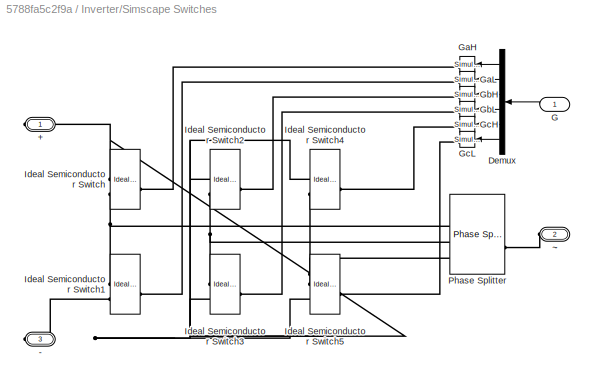
BLOCK [SubSystem] Inverter/Simscape Switches
  VariantControl = SimscapeSw
BLOCK [PMIOPort] Inverter/Simscape Switches/+
  Side = Right
BLOCK [PMIOPort] Inverter/Simscape Switches/-
  Port = 3
  Side = Right
BLOCK [Demux] Inverter/Simscape Switches/Demux
  Outputs = 6
BLOCK [Inport] Inverter/Simscape Switches/G
BLOCK [Reference] Inverter/Simscape Switches/GaH  REF=nesl_utility/Simulink-PS
Converter
  SourceBlock = nesl_utility/Simulink-PS\nConverter
  SourceType = Simulink-PS\nConverter
BLOCK [Reference] Inverter/Simscape Switches/GaL  REF=nesl_utility/Simulink-PS
Converter
  SourceBlock = nesl_utility/Simulink-PS\nConverter
  SourceType = Simulink-PS\nConverter
BLOCK [Reference] Inverter/Simscape Switches/GbH  REF=nesl_utility/Simulink-PS
Converter
  SourceBlock = nesl_utility/Simulink-PS\nConverter
  SourceType = Simulink-PS\nConverter
BLOCK [Reference] Inverter/Simscape Switches/GbL  REF=nesl_utility/Simulink-PS
Converter
  SourceBlock = nesl_utility/Simulink-PS\nConverter
  SourceType = Simulink-PS\nConverter
BLOCK [Reference] Inverter/Simscape Switches/GcH  REF=nesl_utility/Simulink-PS
Converter
  SourceBlock = nesl_utility/Simulink-PS\nConverter
  SourceType = Simulink-PS\nConverter
BLOCK [Reference] Inverter/Simscape Switches/GcL  REF=nesl_utility/Simulink-PS
Converter
  SourceBlock = nesl_utility/Simulink-PS\nConverter
  SourceType = Simulink-PS\nConverter
BLOCK [Reference] Inverter/Simscape Switches/Ideal Semiconductor Switch  REF=ee_lib/Semiconductors &
Converters/Ideal Semiconductor
Switch
  SourceBlock = ee_lib/Semiconductors &\nConverters/Ideal Semiconductor\nSwitch
  SourceType = Ideal Semiconductor\nSwitch
BLOCK [Reference] Inverter/Simscape Switches/Ideal Semiconductor Switch1  REF=ee_lib/Semiconductors &
Converters/Ideal Semiconductor
Switch
  SourceBlock = ee_lib/Semiconductors &\nConverters/Ideal Semiconductor\nSwitch
  SourceType = Ideal Semiconductor\nSwitch
BLOCK [Reference] Inverter/Simscape Switches/Ideal Semiconductor Switch2  REF=ee_lib/Semiconductors &
Converters/Ideal Semiconductor
Switch
  SourceBlock = ee_lib/Semiconductors &\nConverters/Ideal Semiconductor\nSwitch
  SourceType = Ideal Semiconductor\nSwitch
BLOCK [Reference] Inverter/Simscape Switches/Ideal Semiconductor Switch3  REF=ee_lib/Semiconductors &
Converters/Ideal Semiconductor
Switch
  SourceBlock = ee_lib/Semiconductors &\nConverters/Ideal Semiconductor\nSwitch
  SourceType = Ideal Semiconductor\nSwitch
BLOCK [Reference] Inverter/Simscape Switches/Ideal Semiconductor Switch4  REF=ee_lib/Semiconductors &
Converters/Ideal Semiconductor
Switch
  SourceBlock = ee_lib/Semiconductors &\nConverters/Ideal Semiconductor\nSwitch
  SourceType = Ideal Semiconductor\nSwitch
BLOCK [Reference] Inverter/Simscape Switches/Ideal Semiconductor Switch5  REF=ee_lib/Semiconductors &
Converters/Ideal Semiconductor
Switch
  SourceBlock = ee_lib/Semiconductors &\nConverters/Ideal Semiconductor\nSwitch
  SourceType = Ideal Semiconductor\nSwitch
BLOCK [Reference] Inverter/Simscape Switches/Phase Splitter  REF=ee_lib/Connectors &
References/Phase Splitter
  SourceBlock = ee_lib/Connectors &\nReferences/Phase Splitter
  SourceType = Phase Splitter
BLOCK [PMIOPort] Inverter/Simscape Switches/~
  Port = 2
  Side = Left
BLOCK [PMIOPort] Inverter/~
  Port = 3
  Side = Left
BLOCK [Scope] Load Scope
  Floating = off
  NumInputPorts = 4
  ScopeSpecificationString = Simulink.scopes.TimeScopeBlockCfg('CurrentConfiguration', extmgr.ConfigurationSet(extmgr.Configuration('Core','General UI',true),extmgr.Configuration('Core','Source UI',true),extmgr.Configuration('Sources','WiredSimulink',true,'DataLoggingVariableName','ScopeData1','DataLoggingSaveFormat','Array','DataLoggingDecimation','1','DataLoggingDecimateData',true),extmgr.Configuration('Visuals','Time Domai...<+3625ch>
BLOCK [Reference] Neutral Port  REF=ee_lib/Connectors &
References/Neutral Port
(Three-Phase)
  NameLocation = right
  SourceBlock = ee_lib/Connectors &\nReferences/Neutral Port\n(Three-Phase)
  SourceType = Neutral Port\n(Three-Phase)
BLOCK [Reference] Phase Voltage Sensor  REF=ee_lib/Sensors &
Transducers/Phase Voltage Sensor
(Three-Phase)
  NameLocation = left
  SourceBlock = ee_lib/Sensors &\nTransducers/Phase Voltage Sensor\n(Three-Phase)
  SourceType = Phase Voltage Sensor\n(Three-Phase)
BLOCK [Reference] RLC  REF=ee_lib/Passive/RLC Assemblies/RLC (Three-Phase)
  SourceBlock = ee_lib/Passive/RLC Assemblies/RLC (Three-Phase)
  SourceType = RLC (Three-Phase)
BLOCK [Reference] Solver Configuration  REF=nesl_utility/Solver
Configuration
  SourceBlock = nesl_utility/Solver\nConfiguration
  SourceType = Solver\nConfiguration
BLOCK [SubSystem] Subsystem
BLOCK [Sin] Subsystem/3-ph Unit Sine Wave
  Frequency = 2*pi*60
  Phase = [0  -2*pi/3  2*pi/3] + pi/2
  SampleTime = ts
BLOCK [ManualSwitch] Subsystem/Manual Switch1
  CurrentSetting = 0
BLOCK [Gain] Subsystem/Mod. Index
  Gain = 0.8
BLOCK [Reference] Subsystem/PWM Generator (Three-phase, Two-level)  REF=eePwmGeneratorTwoLevel/PWM Generator
(Three-phase, Two-level)
  SourceBlock = eePwmGeneratorTwoLevel/PWM Generator\n(Three-phase, Two-level)
  SourceType = PWM Generator (three-phase, two-level)
BLOCK [Product] Subsystem/Product
BLOCK [Constant] Subsystem/SPWM max. input
  Value = 400/2
BLOCK [Terminator] Subsystem/Terminator
BLOCK [Constant] Subsystem/Vdc
  Value = 400
BLOCK [Outport] Subsystem/g
BLOCK [Constant] Subsystem/other PWM max. input
  Value = 400/sqrt(3)
BLOCK [Reference] Vabc  REF=nesl_utility/PS-Simulink
Converter
  SourceBlock = nesl_utility/PS-Simulink\nConverter
  SourceType = PS-Simulink\nConverter
BLOCK [Reference] Vdc  REF=nesl_utility/PS-Simulink
Converter
  SourceBlock = nesl_utility/PS-Simulink\nConverter
  SourceType = PS-Simulink\nConverter
BLOCK [Reference] Vng  REF=nesl_utility/PS-Simulink
Converter
  SourceBlock = nesl_utility/PS-Simulink\nConverter
  SourceType = PS-Simulink\nConverter
BLOCK [Reference] Voltage Sensor  REF=fl_lib/Electrical/Electrical Sensors/Voltage Sensor
  SourceBlock = fl_lib/Electrical/Electrical Sensors/Voltage Sensor
  SourceType = Voltage Sensor
BLOCK [Reference] Voltage Sensor1  REF=fl_lib/Electrical/Electrical Sensors/Voltage Sensor
  NameLocation = right
  SourceBlock = fl_lib/Electrical/Electrical Sensors/Voltage Sensor
  SourceType = Voltage Sensor
LINE Iabc:1 -> Load Scope:3
LINE Inverter/Pejovic w//SCA/Demux:1 -> Inverter/Pejovic w//SCA/Switch1:1
LINE Inverter/Pejovic w//SCA/Demux:2 -> Inverter/Pejovic w//SCA/Switch2:1
LINE Inverter/Pejovic w//SCA/Demux:3 -> Inverter/Pejovic w//SCA/Switch3:1
LINE Inverter/Pejovic w//SCA/Demux:4 -> Inverter/Pejovic w//SCA/Switch4:1
LINE Inverter/Pejovic w//SCA/Demux:5 -> Inverter/Pejovic w//SCA/Switch5:1
LINE Inverter/Pejovic w//SCA/Demux:6 -> Inverter/Pejovic w//SCA/Switch6:1
LINE Inverter/Pejovic w//SCA/G:1 -> Inverter/Pejovic w//SCA/Demux:1
NET Inverter/Pejovic w//SCA/Switch1/Controller/Discrete-Time Integrator:1 -> Inverter/Pejovic w//SCA/Switch1/Controller/Subtract:2, Inverter/Pejovic w//SCA/Switch1/Controller/ic:1
LINE Inverter/Pejovic w//SCA/Switch1/Controller/G:1 -> Inverter/Pejovic w//SCA/Switch1/Controller/Switch State:2
LINE Inverter/Pejovic w//SCA/Switch1/Controller/Gain3:1 -> Inverter/Pejovic w//SCA/Switch1/Controller/Switch State:3
LINE Inverter/Pejovic w//SCA/Switch1/Controller/Gain:1 -> Inverter/Pejovic w//SCA/Switch1/Controller/Discrete-Time Integrator:1
LINE Inverter/Pejovic w//SCA/Switch1/Controller/Subtract:1 -> Inverter/Pejovic w//SCA/Switch1/Controller/Gain:1
LINE Inverter/Pejovic w//SCA/Switch1/Controller/Switch State/Subcycle Average/Add:1 -> Inverter/Pejovic w//SCA/Switch1/Controller/Switch State/Subcycle Average/ic:1
LINE Inverter/Pejovic w//SCA/Switch1/Controller/Switch State/Subcycle Average/Compare To Constant:1 -> Inverter/Pejovic w//SCA/Switch1/Controller/Switch State/Subcycle Average/HDL Moving Average Tunable:1
LINE Inverter/Pejovic w//SCA/Switch1/Controller/Switch State/Subcycle Average/Constant:1 -> Inverter/Pejovic w//SCA/Switch1/Controller/Switch State/Subcycle Average/HDL Moving Average Tunable:2
LINE Inverter/Pejovic w//SCA/Switch1/Controller/Switch State/Subcycle Average/G:1 -> Inverter/Pejovic w//SCA/Switch1/Controller/Switch State/Subcycle Average/Compare To Constant:1
LINE Inverter/Pejovic w//SCA/Switch1/Controller/Switch State/Subcycle Average/HDL Moving Average Tunable:1 -> Inverter/Pejovic w//SCA/Switch1/Controller/Switch State/Subcycle Average/Rate Transition:1
LINE Inverter/Pejovic w//SCA/Switch1/Controller/Switch State/Subcycle Average/Product:1 -> Inverter/Pejovic w//SCA/Switch1/Controller/Switch State/Subcycle Average/Add:1
LINE Inverter/Pejovic w//SCA/Switch1/Controller/Switch State/Subcycle Average/Rate Transition:1 -> Inverter/Pejovic w//SCA/Switch1/Controller/Switch State/Subcycle Average/Product:2
LINE Inverter/Pejovic w//SCA/Switch1/Controller/Switch State/Subcycle Average/Subtract1:1 -> Inverter/Pejovic w//SCA/Switch1/Controller/Switch State/Subcycle Average/Product:1
LINE Inverter/Pejovic w//SCA/Switch1/Controller/Switch State/Subcycle Average/off1:1 -> Inverter/Pejovic w//SCA/Switch1/Controller/Switch State/Subcycle Average/Add:2
LINE Inverter/Pejovic w//SCA/Switch1/Controller/Switch State/Subcycle Average/off:1 -> Inverter/Pejovic w//SCA/Switch1/Controller/Switch State/Subcycle Average/Subtract1:2
LINE Inverter/Pejovic w//SCA/Switch1/Controller/Switch State/Subcycle Average/on:1 -> Inverter/Pejovic w//SCA/Switch1/Controller/Switch State/Subcycle Average/Subtract1:1
LINE Inverter/Pejovic w//SCA/Switch1/Controller/Switch State/Switch/G:1 -> Inverter/Pejovic w//SCA/Switch1/Controller/Switch State/Switch/S2:2
LINE Inverter/Pejovic w//SCA/Switch1/Controller/Switch State/Switch/S2:1 -> Inverter/Pejovic w//SCA/Switch1/Controller/Switch State/Switch/ic:1
LINE Inverter/Pejovic w//SCA/Switch1/Controller/Switch State/Switch/off:1 -> Inverter/Pejovic w//SCA/Switch1/Controller/Switch State/Switch/S2:3
LINE Inverter/Pejovic w//SCA/Switch1/Controller/Switch State/Switch/on:1 -> Inverter/Pejovic w//SCA/Switch1/Controller/Switch State/Switch/S2:1
LINE Inverter/Pejovic w//SCA/Switch1/Controller/Switch State:1 -> Inverter/Pejovic w//SCA/Switch1/Controller/Subtract:1
LINE Inverter/Pejovic w//SCA/Switch1/Controller/Unary Minus:1 -> Inverter/Pejovic w//SCA/Switch1/Controller/Switch State:1
LINE Inverter/Pejovic w//SCA/Switch1/Controller/is:1 -> Inverter/Pejovic w//SCA/Switch1/Controller/Unary Minus:1
LINE Inverter/Pejovic w//SCA/Switch1/Controller/vs:1 -> Inverter/Pejovic w//SCA/Switch1/Controller/Gain3:1
LINE Inverter/Pejovic w//SCA/Switch1/Controller:1 -> Inverter/Pejovic w//SCA/Switch1/ic_in:1
LINE Inverter/Pejovic w//SCA/Switch1/G:1 -> Inverter/Pejovic w//SCA/Switch1/Controller:3
LINE Inverter/Pejovic w//SCA/Switch1/is_out:1 -> Inverter/Pejovic w//SCA/Switch1/Controller:2
LINE Inverter/Pejovic w//SCA/Switch1/vs_out:1 -> Inverter/Pejovic w//SCA/Switch1/Controller:1
NET Inverter/Pejovic w//SCA/Switch2/Controller/Discrete-Time Integrator:1 -> Inverter/Pejovic w//SCA/Switch2/Controller/Subtract:2, Inverter/Pejovic w//SCA/Switch2/Controller/ic:1
LINE Inverter/Pejovic w//SCA/Switch2/Controller/G:1 -> Inverter/Pejovic w//SCA/Switch2/Controller/Switch State:2
LINE Inverter/Pejovic w//SCA/Switch2/Controller/Gain3:1 -> Inverter/Pejovic w//SCA/Switch2/Controller/Switch State:3
LINE Inverter/Pejovic w//SCA/Switch2/Controller/Gain:1 -> Inverter/Pejovic w//SCA/Switch2/Controller/Discrete-Time Integrator:1
LINE Inverter/Pejovic w//SCA/Switch2/Controller/Subtract:1 -> Inverter/Pejovic w//SCA/Switch2/Controller/Gain:1
LINE Inverter/Pejovic w//SCA/Switch2/Controller/Switch State/Subcycle Average/Add:1 -> Inverter/Pejovic w//SCA/Switch2/Controller/Switch State/Subcycle Average/ic:1
LINE Inverter/Pejovic w//SCA/Switch2/Controller/Switch State/Subcycle Average/Compare To Constant:1 -> Inverter/Pejovic w//SCA/Switch2/Controller/Switch State/Subcycle Average/HDL Moving Average Tunable:1
LINE Inverter/Pejovic w//SCA/Switch2/Controller/Switch State/Subcycle Average/Constant:1 -> Inverter/Pejovic w//SCA/Switch2/Controller/Switch State/Subcycle Average/HDL Moving Average Tunable:2
LINE Inverter/Pejovic w//SCA/Switch2/Controller/Switch State/Subcycle Average/G:1 -> Inverter/Pejovic w//SCA/Switch2/Controller/Switch State/Subcycle Average/Compare To Constant:1
LINE Inverter/Pejovic w//SCA/Switch2/Controller/Switch State/Subcycle Average/HDL Moving Average Tunable:1 -> Inverter/Pejovic w//SCA/Switch2/Controller/Switch State/Subcycle Average/Rate Transition:1
LINE Inverter/Pejovic w//SCA/Switch2/Controller/Switch State/Subcycle Average/Product:1 -> Inverter/Pejovic w//SCA/Switch2/Controller/Switch State/Subcycle Average/Add:1
LINE Inverter/Pejovic w//SCA/Switch2/Controller/Switch State/Subcycle Average/Rate Transition:1 -> Inverter/Pejovic w//SCA/Switch2/Controller/Switch State/Subcycle Average/Product:2
LINE Inverter/Pejovic w//SCA/Switch2/Controller/Switch State/Subcycle Average/Subtract1:1 -> Inverter/Pejovic w//SCA/Switch2/Controller/Switch State/Subcycle Average/Product:1
LINE Inverter/Pejovic w//SCA/Switch2/Controller/Switch State/Subcycle Average/off1:1 -> Inverter/Pejovic w//SCA/Switch2/Controller/Switch State/Subcycle Average/Add:2
LINE Inverter/Pejovic w//SCA/Switch2/Controller/Switch State/Subcycle Average/off:1 -> Inverter/Pejovic w//SCA/Switch2/Controller/Switch State/Subcycle Average/Subtract1:2
LINE Inverter/Pejovic w//SCA/Switch2/Controller/Switch State/Subcycle Average/on:1 -> Inverter/Pejovic w//SCA/Switch2/Controller/Switch State/Subcycle Average/Subtract1:1
LINE Inverter/Pejovic w//SCA/Switch2/Controller/Switch State/Switch/G:1 -> Inverter/Pejovic w//SCA/Switch2/Controller/Switch State/Switch/S2:2
LINE Inverter/Pejovic w//SCA/Switch2/Controller/Switch State/Switch/S2:1 -> Inverter/Pejovic w//SCA/Switch2/Controller/Switch State/Switch/ic:1
LINE Inverter/Pejovic w//SCA/Switch2/Controller/Switch State/Switch/off:1 -> Inverter/Pejovic w//SCA/Switch2/Controller/Switch State/Switch/S2:3
LINE Inverter/Pejovic w//SCA/Switch2/Controller/Switch State/Switch/on:1 -> Inverter/Pejovic w//SCA/Switch2/Controller/Switch State/Switch/S2:1
LINE Inverter/Pejovic w//SCA/Switch2/Controller/Switch State:1 -> Inverter/Pejovic w//SCA/Switch2/Controller/Subtract:1
LINE Inverter/Pejovic w//SCA/Switch2/Controller/Unary Minus:1 -> Inverter/Pejovic w//SCA/Switch2/Controller/Switch State:1
LINE Inverter/Pejovic w//SCA/Switch2/Controller/is:1 -> Inverter/Pejovic w//SCA/Switch2/Controller/Unary Minus:1
LINE Inverter/Pejovic w//SCA/Switch2/Controller/vs:1 -> Inverter/Pejovic w//SCA/Switch2/Controller/Gain3:1
LINE Inverter/Pejovic w//SCA/Switch2/Controller:1 -> Inverter/Pejovic w//SCA/Switch2/ic_in:1
LINE Inverter/Pejovic w//SCA/Switch2/G:1 -> Inverter/Pejovic w//SCA/Switch2/Controller:3
LINE Inverter/Pejovic w//SCA/Switch2/is_out:1 -> Inverter/Pejovic w//SCA/Switch2/Controller:2
LINE Inverter/Pejovic w//SCA/Switch2/vs_out:1 -> Inverter/Pejovic w//SCA/Switch2/Controller:1
NET Inverter/Pejovic w//SCA/Switch3/Controller/Discrete-Time Integrator:1 -> Inverter/Pejovic w//SCA/Switch3/Controller/Subtract:2, Inverter/Pejovic w//SCA/Switch3/Controller/ic:1
LINE Inverter/Pejovic w//SCA/Switch3/Controller/G:1 -> Inverter/Pejovic w//SCA/Switch3/Controller/Switch State:2
LINE Inverter/Pejovic w//SCA/Switch3/Controller/Gain3:1 -> Inverter/Pejovic w//SCA/Switch3/Controller/Switch State:3
LINE Inverter/Pejovic w//SCA/Switch3/Controller/Gain:1 -> Inverter/Pejovic w//SCA/Switch3/Controller/Discrete-Time Integrator:1
LINE Inverter/Pejovic w//SCA/Switch3/Controller/Subtract:1 -> Inverter/Pejovic w//SCA/Switch3/Controller/Gain:1
LINE Inverter/Pejovic w//SCA/Switch3/Controller/Switch State/Subcycle Average/Add:1 -> Inverter/Pejovic w//SCA/Switch3/Controller/Switch State/Subcycle Average/ic:1
LINE Inverter/Pejovic w//SCA/Switch3/Controller/Switch State/Subcycle Average/Compare To Constant:1 -> Inverter/Pejovic w//SCA/Switch3/Controller/Switch State/Subcycle Average/HDL Moving Average Tunable:1
LINE Inverter/Pejovic w//SCA/Switch3/Controller/Switch State/Subcycle Average/Constant:1 -> Inverter/Pejovic w//SCA/Switch3/Controller/Switch State/Subcycle Average/HDL Moving Average Tunable:2
LINE Inverter/Pejovic w//SCA/Switch3/Controller/Switch State/Subcycle Average/G:1 -> Inverter/Pejovic w//SCA/Switch3/Controller/Switch State/Subcycle Average/Compare To Constant:1
LINE Inverter/Pejovic w//SCA/Switch3/Controller/Switch State/Subcycle Average/HDL Moving Average Tunable:1 -> Inverter/Pejovic w//SCA/Switch3/Controller/Switch State/Subcycle Average/Rate Transition:1
LINE Inverter/Pejovic w//SCA/Switch3/Controller/Switch State/Subcycle Average/Product:1 -> Inverter/Pejovic w//SCA/Switch3/Controller/Switch State/Subcycle Average/Add:1
LINE Inverter/Pejovic w//SCA/Switch3/Controller/Switch State/Subcycle Average/Rate Transition:1 -> Inverter/Pejovic w//SCA/Switch3/Controller/Switch State/Subcycle Average/Product:2
LINE Inverter/Pejovic w//SCA/Switch3/Controller/Switch State/Subcycle Average/Subtract1:1 -> Inverter/Pejovic w//SCA/Switch3/Controller/Switch State/Subcycle Average/Product:1
LINE Inverter/Pejovic w//SCA/Switch3/Controller/Switch State/Subcycle Average/off1:1 -> Inverter/Pejovic w//SCA/Switch3/Controller/Switch State/Subcycle Average/Add:2
LINE Inverter/Pejovic w//SCA/Switch3/Controller/Switch State/Subcycle Average/off:1 -> Inverter/Pejovic w//SCA/Switch3/Controller/Switch State/Subcycle Average/Subtract1:2
LINE Inverter/Pejovic w//SCA/Switch3/Controller/Switch State/Subcycle Average/on:1 -> Inverter/Pejovic w//SCA/Switch3/Controller/Switch State/Subcycle Average/Subtract1:1
LINE Inverter/Pejovic w//SCA/Switch3/Controller/Switch State/Switch/G:1 -> Inverter/Pejovic w//SCA/Switch3/Controller/Switch State/Switch/S2:2
LINE Inverter/Pejovic w//SCA/Switch3/Controller/Switch State/Switch/S2:1 -> Inverter/Pejovic w//SCA/Switch3/Controller/Switch State/Switch/ic:1
LINE Inverter/Pejovic w//SCA/Switch3/Controller/Switch State/Switch/off:1 -> Inverter/Pejovic w//SCA/Switch3/Controller/Switch State/Switch/S2:3
LINE Inverter/Pejovic w//SCA/Switch3/Controller/Switch State/Switch/on:1 -> Inverter/Pejovic w//SCA/Switch3/Controller/Switch State/Switch/S2:1
LINE Inverter/Pejovic w//SCA/Switch3/Controller/Switch State:1 -> Inverter/Pejovic w//SCA/Switch3/Controller/Subtract:1
LINE Inverter/Pejovic w//SCA/Switch3/Controller/Unary Minus:1 -> Inverter/Pejovic w//SCA/Switch3/Controller/Switch State:1
LINE Inverter/Pejovic w//SCA/Switch3/Controller/is:1 -> Inverter/Pejovic w//SCA/Switch3/Controller/Unary Minus:1
LINE Inverter/Pejovic w//SCA/Switch3/Controller/vs:1 -> Inverter/Pejovic w//SCA/Switch3/Controller/Gain3:1
LINE Inverter/Pejovic w//SCA/Switch3/Controller:1 -> Inverter/Pejovic w//SCA/Switch3/ic_in:1
LINE Inverter/Pejovic w//SCA/Switch3/G:1 -> Inverter/Pejovic w//SCA/Switch3/Controller:3
LINE Inverter/Pejovic w//SCA/Switch3/is_out:1 -> Inverter/Pejovic w//SCA/Switch3/Controller:2
LINE Inverter/Pejovic w//SCA/Switch3/vs_out:1 -> Inverter/Pejovic w//SCA/Switch3/Controller:1
NET Inverter/Pejovic w//SCA/Switch4/Controller/Discrete-Time Integrator:1 -> Inverter/Pejovic w//SCA/Switch4/Controller/Subtract:2, Inverter/Pejovic w//SCA/Switch4/Controller/ic:1
LINE Inverter/Pejovic w//SCA/Switch4/Controller/G:1 -> Inverter/Pejovic w//SCA/Switch4/Controller/Switch State:2
LINE Inverter/Pejovic w//SCA/Switch4/Controller/Gain3:1 -> Inverter/Pejovic w//SCA/Switch4/Controller/Switch State:3
LINE Inverter/Pejovic w//SCA/Switch4/Controller/Gain:1 -> Inverter/Pejovic w//SCA/Switch4/Controller/Discrete-Time Integrator:1
LINE Inverter/Pejovic w//SCA/Switch4/Controller/Subtract:1 -> Inverter/Pejovic w//SCA/Switch4/Controller/Gain:1
LINE Inverter/Pejovic w//SCA/Switch4/Controller/Switch State/Subcycle Average/Add:1 -> Inverter/Pejovic w//SCA/Switch4/Controller/Switch State/Subcycle Average/ic:1
LINE Inverter/Pejovic w//SCA/Switch4/Controller/Switch State/Subcycle Average/Compare To Constant:1 -> Inverter/Pejovic w//SCA/Switch4/Controller/Switch State/Subcycle Average/HDL Moving Average Tunable:1
LINE Inverter/Pejovic w//SCA/Switch4/Controller/Switch State/Subcycle Average/Constant:1 -> Inverter/Pejovic w//SCA/Switch4/Controller/Switch State/Subcycle Average/HDL Moving Average Tunable:2
LINE Inverter/Pejovic w//SCA/Switch4/Controller/Switch State/Subcycle Average/G:1 -> Inverter/Pejovic w//SCA/Switch4/Controller/Switch State/Subcycle Average/Compare To Constant:1
LINE Inverter/Pejovic w//SCA/Switch4/Controller/Switch State/Subcycle Average/HDL Moving Average Tunable:1 -> Inverter/Pejovic w//SCA/Switch4/Controller/Switch State/Subcycle Average/Rate Transition:1
LINE Inverter/Pejovic w//SCA/Switch4/Controller/Switch State/Subcycle Average/Product:1 -> Inverter/Pejovic w//SCA/Switch4/Controller/Switch State/Subcycle Average/Add:1
LINE Inverter/Pejovic w//SCA/Switch4/Controller/Switch State/Subcycle Average/Rate Transition:1 -> Inverter/Pejovic w//SCA/Switch4/Controller/Switch State/Subcycle Average/Product:2
LINE Inverter/Pejovic w//SCA/Switch4/Controller/Switch State/Subcycle Average/Subtract1:1 -> Inverter/Pejovic w//SCA/Switch4/Controller/Switch State/Subcycle Average/Product:1
LINE Inverter/Pejovic w//SCA/Switch4/Controller/Switch State/Subcycle Average/off1:1 -> Inverter/Pejovic w//SCA/Switch4/Controller/Switch State/Subcycle Average/Add:2
LINE Inverter/Pejovic w//SCA/Switch4/Controller/Switch State/Subcycle Average/off:1 -> Inverter/Pejovic w//SCA/Switch4/Controller/Switch State/Subcycle Average/Subtract1:2
LINE Inverter/Pejovic w//SCA/Switch4/Controller/Switch State/Subcycle Average/on:1 -> Inverter/Pejovic w//SCA/Switch4/Controller/Switch State/Subcycle Average/Subtract1:1
LINE Inverter/Pejovic w//SCA/Switch4/Controller/Switch State/Switch/G:1 -> Inverter/Pejovic w//SCA/Switch4/Controller/Switch State/Switch/S2:2
LINE Inverter/Pejovic w//SCA/Switch4/Controller/Switch State/Switch/S2:1 -> Inverter/Pejovic w//SCA/Switch4/Controller/Switch State/Switch/ic:1
LINE Inverter/Pejovic w//SCA/Switch4/Controller/Switch State/Switch/off:1 -> Inverter/Pejovic w//SCA/Switch4/Controller/Switch State/Switch/S2:3
LINE Inverter/Pejovic w//SCA/Switch4/Controller/Switch State/Switch/on:1 -> Inverter/Pejovic w//SCA/Switch4/Controller/Switch State/Switch/S2:1
LINE Inverter/Pejovic w//SCA/Switch4/Controller/Switch State:1 -> Inverter/Pejovic w//SCA/Switch4/Controller/Subtract:1
LINE Inverter/Pejovic w//SCA/Switch4/Controller/Unary Minus:1 -> Inverter/Pejovic w//SCA/Switch4/Controller/Switch State:1
LINE Inverter/Pejovic w//SCA/Switch4/Controller/is:1 -> Inverter/Pejovic w//SCA/Switch4/Controller/Unary Minus:1
LINE Inverter/Pejovic w//SCA/Switch4/Controller/vs:1 -> Inverter/Pejovic w//SCA/Switch4/Controller/Gain3:1
LINE Inverter/Pejovic w//SCA/Switch4/Controller:1 -> Inverter/Pejovic w//SCA/Switch4/ic_in:1
LINE Inverter/Pejovic w//SCA/Switch4/G:1 -> Inverter/Pejovic w//SCA/Switch4/Controller:3
LINE Inverter/Pejovic w//SCA/Switch4/is_out:1 -> Inverter/Pejovic w//SCA/Switch4/Controller:2
LINE Inverter/Pejovic w//SCA/Switch4/vs_out:1 -> Inverter/Pejovic w//SCA/Switch4/Controller:1
NET Inverter/Pejovic w//SCA/Switch5/Controller/Discrete-Time Integrator:1 -> Inverter/Pejovic w//SCA/Switch5/Controller/Subtract:2, Inverter/Pejovic w//SCA/Switch5/Controller/ic:1
LINE Inverter/Pejovic w//SCA/Switch5/Controller/G:1 -> Inverter/Pejovic w//SCA/Switch5/Controller/Switch State:2
LINE Inverter/Pejovic w//SCA/Switch5/Controller/Gain3:1 -> Inverter/Pejovic w//SCA/Switch5/Controller/Switch State:3
LINE Inverter/Pejovic w//SCA/Switch5/Controller/Gain:1 -> Inverter/Pejovic w//SCA/Switch5/Controller/Discrete-Time Integrator:1
LINE Inverter/Pejovic w//SCA/Switch5/Controller/Subtract:1 -> Inverter/Pejovic w//SCA/Switch5/Controller/Gain:1
LINE Inverter/Pejovic w//SCA/Switch5/Controller/Switch State/Subcycle Average/Add:1 -> Inverter/Pejovic w//SCA/Switch5/Controller/Switch State/Subcycle Average/ic:1
LINE Inverter/Pejovic w//SCA/Switch5/Controller/Switch State/Subcycle Average/Compare To Constant:1 -> Inverter/Pejovic w//SCA/Switch5/Controller/Switch State/Subcycle Average/HDL Moving Average Tunable:1
LINE Inverter/Pejovic w//SCA/Switch5/Controller/Switch State/Subcycle Average/Constant:1 -> Inverter/Pejovic w//SCA/Switch5/Controller/Switch State/Subcycle Average/HDL Moving Average Tunable:2
LINE Inverter/Pejovic w//SCA/Switch5/Controller/Switch State/Subcycle Average/G:1 -> Inverter/Pejovic w//SCA/Switch5/Controller/Switch State/Subcycle Average/Compare To Constant:1
LINE Inverter/Pejovic w//SCA/Switch5/Controller/Switch State/Subcycle Average/HDL Moving Average Tunable:1 -> Inverter/Pejovic w//SCA/Switch5/Controller/Switch State/Subcycle Average/Rate Transition:1
LINE Inverter/Pejovic w//SCA/Switch5/Controller/Switch State/Subcycle Average/Product:1 -> Inverter/Pejovic w//SCA/Switch5/Controller/Switch State/Subcycle Average/Add:1
LINE Inverter/Pejovic w//SCA/Switch5/Controller/Switch State/Subcycle Average/Rate Transition:1 -> Inverter/Pejovic w//SCA/Switch5/Controller/Switch State/Subcycle Average/Product:2
LINE Inverter/Pejovic w//SCA/Switch5/Controller/Switch State/Subcycle Average/Subtract1:1 -> Inverter/Pejovic w//SCA/Switch5/Controller/Switch State/Subcycle Average/Product:1
LINE Inverter/Pejovic w//SCA/Switch5/Controller/Switch State/Subcycle Average/off1:1 -> Inverter/Pejovic w//SCA/Switch5/Controller/Switch State/Subcycle Average/Add:2
LINE Inverter/Pejovic w//SCA/Switch5/Controller/Switch State/Subcycle Average/off:1 -> Inverter/Pejovic w//SCA/Switch5/Controller/Switch State/Subcycle Average/Subtract1:2
LINE Inverter/Pejovic w//SCA/Switch5/Controller/Switch State/Subcycle Average/on:1 -> Inverter/Pejovic w//SCA/Switch5/Controller/Switch State/Subcycle Average/Subtract1:1
LINE Inverter/Pejovic w//SCA/Switch5/Controller/Switch State/Switch/G:1 -> Inverter/Pejovic w//SCA/Switch5/Controller/Switch State/Switch/S2:2
LINE Inverter/Pejovic w//SCA/Switch5/Controller/Switch State/Switch/S2:1 -> Inverter/Pejovic w//SCA/Switch5/Controller/Switch State/Switch/ic:1
LINE Inverter/Pejovic w//SCA/Switch5/Controller/Switch State/Switch/off:1 -> Inverter/Pejovic w//SCA/Switch5/Controller/Switch State/Switch/S2:3
LINE Inverter/Pejovic w//SCA/Switch5/Controller/Switch State/Switch/on:1 -> Inverter/Pejovic w//SCA/Switch5/Controller/Switch State/Switch/S2:1
LINE Inverter/Pejovic w//SCA/Switch5/Controller/Switch State:1 -> Inverter/Pejovic w//SCA/Switch5/Controller/Subtract:1
LINE Inverter/Pejovic w//SCA/Switch5/Controller/Unary Minus:1 -> Inverter/Pejovic w//SCA/Switch5/Controller/Switch State:1
LINE Inverter/Pejovic w//SCA/Switch5/Controller/is:1 -> Inverter/Pejovic w//SCA/Switch5/Controller/Unary Minus:1
LINE Inverter/Pejovic w//SCA/Switch5/Controller/vs:1 -> Inverter/Pejovic w//SCA/Switch5/Controller/Gain3:1
LINE Inverter/Pejovic w//SCA/Switch5/Controller:1 -> Inverter/Pejovic w//SCA/Switch5/ic_in:1
LINE Inverter/Pejovic w//SCA/Switch5/G:1 -> Inverter/Pejovic w//SCA/Switch5/Controller:3
LINE Inverter/Pejovic w//SCA/Switch5/is_out:1 -> Inverter/Pejovic w//SCA/Switch5/Controller:2
LINE Inverter/Pejovic w//SCA/Switch5/vs_out:1 -> Inverter/Pejovic w//SCA/Switch5/Controller:1
NET Inverter/Pejovic w//SCA/Switch6/Controller/Discrete-Time Integrator:1 -> Inverter/Pejovic w//SCA/Switch6/Controller/Subtract:2, Inverter/Pejovic w//SCA/Switch6/Controller/ic:1
LINE Inverter/Pejovic w//SCA/Switch6/Controller/G:1 -> Inverter/Pejovic w//SCA/Switch6/Controller/Switch State:2
LINE Inverter/Pejovic w//SCA/Switch6/Controller/Gain3:1 -> Inverter/Pejovic w//SCA/Switch6/Controller/Switch State:3
LINE Inverter/Pejovic w//SCA/Switch6/Controller/Gain:1 -> Inverter/Pejovic w//SCA/Switch6/Controller/Discrete-Time Integrator:1
LINE Inverter/Pejovic w//SCA/Switch6/Controller/Subtract:1 -> Inverter/Pejovic w//SCA/Switch6/Controller/Gain:1
LINE Inverter/Pejovic w//SCA/Switch6/Controller/Switch State/Subcycle Average/Add:1 -> Inverter/Pejovic w//SCA/Switch6/Controller/Switch State/Subcycle Average/ic:1
LINE Inverter/Pejovic w//SCA/Switch6/Controller/Switch State/Subcycle Average/Compare To Constant:1 -> Inverter/Pejovic w//SCA/Switch6/Controller/Switch State/Subcycle Average/HDL Moving Average Tunable:1
LINE Inverter/Pejovic w//SCA/Switch6/Controller/Switch State/Subcycle Average/Constant:1 -> Inverter/Pejovic w//SCA/Switch6/Controller/Switch State/Subcycle Average/HDL Moving Average Tunable:2
LINE Inverter/Pejovic w//SCA/Switch6/Controller/Switch State/Subcycle Average/G:1 -> Inverter/Pejovic w//SCA/Switch6/Controller/Switch State/Subcycle Average/Compare To Constant:1
LINE Inverter/Pejovic w//SCA/Switch6/Controller/Switch State/Subcycle Average/HDL Moving Average Tunable:1 -> Inverter/Pejovic w//SCA/Switch6/Controller/Switch State/Subcycle Average/Rate Transition:1
LINE Inverter/Pejovic w//SCA/Switch6/Controller/Switch State/Subcycle Average/Product:1 -> Inverter/Pejovic w//SCA/Switch6/Controller/Switch State/Subcycle Average/Add:1
LINE Inverter/Pejovic w//SCA/Switch6/Controller/Switch State/Subcycle Average/Rate Transition:1 -> Inverter/Pejovic w//SCA/Switch6/Controller/Switch State/Subcycle Average/Product:2
LINE Inverter/Pejovic w//SCA/Switch6/Controller/Switch State/Subcycle Average/Subtract1:1 -> Inverter/Pejovic w//SCA/Switch6/Controller/Switch State/Subcycle Average/Product:1
LINE Inverter/Pejovic w//SCA/Switch6/Controller/Switch State/Subcycle Average/off1:1 -> Inverter/Pejovic w//SCA/Switch6/Controller/Switch State/Subcycle Average/Add:2
LINE Inverter/Pejovic w//SCA/Switch6/Controller/Switch State/Subcycle Average/off:1 -> Inverter/Pejovic w//SCA/Switch6/Controller/Switch State/Subcycle Average/Subtract1:2
LINE Inverter/Pejovic w//SCA/Switch6/Controller/Switch State/Subcycle Average/on:1 -> Inverter/Pejovic w//SCA/Switch6/Controller/Switch State/Subcycle Average/Subtract1:1
LINE Inverter/Pejovic w//SCA/Switch6/Controller/Switch State/Switch/G:1 -> Inverter/Pejovic w//SCA/Switch6/Controller/Switch State/Switch/S2:2
LINE Inverter/Pejovic w//SCA/Switch6/Controller/Switch State/Switch/S2:1 -> Inverter/Pejovic w//SCA/Switch6/Controller/Switch State/Switch/ic:1
LINE Inverter/Pejovic w//SCA/Switch6/Controller/Switch State/Switch/off:1 -> Inverter/Pejovic w//SCA/Switch6/Controller/Switch State/Switch/S2:3
LINE Inverter/Pejovic w//SCA/Switch6/Controller/Switch State/Switch/on:1 -> Inverter/Pejovic w//SCA/Switch6/Controller/Switch State/Switch/S2:1
LINE Inverter/Pejovic w//SCA/Switch6/Controller/Switch State:1 -> Inverter/Pejovic w//SCA/Switch6/Controller/Subtract:1
LINE Inverter/Pejovic w//SCA/Switch6/Controller/Unary Minus:1 -> Inverter/Pejovic w//SCA/Switch6/Controller/Switch State:1
LINE Inverter/Pejovic w//SCA/Switch6/Controller/is:1 -> Inverter/Pejovic w//SCA/Switch6/Controller/Unary Minus:1
LINE Inverter/Pejovic w//SCA/Switch6/Controller/vs:1 -> Inverter/Pejovic w//SCA/Switch6/Controller/Gain3:1
LINE Inverter/Pejovic w//SCA/Switch6/Controller:1 -> Inverter/Pejovic w//SCA/Switch6/ic_in:1
LINE Inverter/Pejovic w//SCA/Switch6/G:1 -> Inverter/Pejovic w//SCA/Switch6/Controller:3
LINE Inverter/Pejovic w//SCA/Switch6/is_out:1 -> Inverter/Pejovic w//SCA/Switch6/Controller:2
LINE Inverter/Pejovic w//SCA/Switch6/vs_out:1 -> Inverter/Pejovic w//SCA/Switch6/Controller:1
LINE Inverter/Pejovic/Demux:1 -> Inverter/Pejovic/Switch1:1
LINE Inverter/Pejovic/Demux:2 -> Inverter/Pejovic/Switch2:1
LINE Inverter/Pejovic/Demux:3 -> Inverter/Pejovic/Switch3:1
LINE Inverter/Pejovic/Demux:4 -> Inverter/Pejovic/Switch4:1
LINE Inverter/Pejovic/Demux:5 -> Inverter/Pejovic/Switch5:1
LINE Inverter/Pejovic/Demux:6 -> Inverter/Pejovic/Switch6:1
LINE Inverter/Pejovic/G:1 -> Inverter/Pejovic/Demux:1
NET Inverter/Pejovic/Switch1/Controller/Discrete-Time Integrator:1 -> Inverter/Pejovic/Switch1/Controller/Subtract:2, Inverter/Pejovic/Switch1/Controller/ic:1
LINE Inverter/Pejovic/Switch1/Controller/G:1 -> Inverter/Pejovic/Switch1/Controller/Switch State:2
LINE Inverter/Pejovic/Switch1/Controller/Gain3:1 -> Inverter/Pejovic/Switch1/Controller/Switch State:3
LINE Inverter/Pejovic/Switch1/Controller/Gain:1 -> Inverter/Pejovic/Switch1/Controller/Discrete-Time Integrator:1
LINE Inverter/Pejovic/Switch1/Controller/Subtract:1 -> Inverter/Pejovic/Switch1/Controller/Gain:1
LINE Inverter/Pejovic/Switch1/Controller/Switch State/Subcycle Average/Add:1 -> Inverter/Pejovic/Switch1/Controller/Switch State/Subcycle Average/ic:1
LINE Inverter/Pejovic/Switch1/Controller/Switch State/Subcycle Average/Compare To Constant:1 -> Inverter/Pejovic/Switch1/Controller/Switch State/Subcycle Average/HDL Moving Average Tunable:1
LINE Inverter/Pejovic/Switch1/Controller/Switch State/Subcycle Average/Constant:1 -> Inverter/Pejovic/Switch1/Controller/Switch State/Subcycle Average/HDL Moving Average Tunable:2
LINE Inverter/Pejovic/Switch1/Controller/Switch State/Subcycle Average/G:1 -> Inverter/Pejovic/Switch1/Controller/Switch State/Subcycle Average/Compare To Constant:1
LINE Inverter/Pejovic/Switch1/Controller/Switch State/Subcycle Average/HDL Moving Average Tunable:1 -> Inverter/Pejovic/Switch1/Controller/Switch State/Subcycle Average/Rate Transition:1
LINE Inverter/Pejovic/Switch1/Controller/Switch State/Subcycle Average/Product:1 -> Inverter/Pejovic/Switch1/Controller/Switch State/Subcycle Average/Add:1
LINE Inverter/Pejovic/Switch1/Controller/Switch State/Subcycle Average/Rate Transition:1 -> Inverter/Pejovic/Switch1/Controller/Switch State/Subcycle Average/Product:2
LINE Inverter/Pejovic/Switch1/Controller/Switch State/Subcycle Average/Subtract1:1 -> Inverter/Pejovic/Switch1/Controller/Switch State/Subcycle Average/Product:1
LINE Inverter/Pejovic/Switch1/Controller/Switch State/Subcycle Average/off1:1 -> Inverter/Pejovic/Switch1/Controller/Switch State/Subcycle Average/Add:2
LINE Inverter/Pejovic/Switch1/Controller/Switch State/Subcycle Average/off:1 -> Inverter/Pejovic/Switch1/Controller/Switch State/Subcycle Average/Subtract1:2
LINE Inverter/Pejovic/Switch1/Controller/Switch State/Subcycle Average/on:1 -> Inverter/Pejovic/Switch1/Controller/Switch State/Subcycle Average/Subtract1:1
LINE Inverter/Pejovic/Switch1/Controller/Switch State/Switch/G:1 -> Inverter/Pejovic/Switch1/Controller/Switch State/Switch/S2:2
LINE Inverter/Pejovic/Switch1/Controller/Switch State/Switch/S2:1 -> Inverter/Pejovic/Switch1/Controller/Switch State/Switch/ic:1
LINE Inverter/Pejovic/Switch1/Controller/Switch State/Switch/off:1 -> Inverter/Pejovic/Switch1/Controller/Switch State/Switch/S2:3
LINE Inverter/Pejovic/Switch1/Controller/Switch State/Switch/on:1 -> Inverter/Pejovic/Switch1/Controller/Switch State/Switch/S2:1
LINE Inverter/Pejovic/Switch1/Controller/Switch State:1 -> Inverter/Pejovic/Switch1/Controller/Subtract:1
LINE Inverter/Pejovic/Switch1/Controller/Unary Minus:1 -> Inverter/Pejovic/Switch1/Controller/Switch State:1
LINE Inverter/Pejovic/Switch1/Controller/is:1 -> Inverter/Pejovic/Switch1/Controller/Unary Minus:1
LINE Inverter/Pejovic/Switch1/Controller/vs:1 -> Inverter/Pejovic/Switch1/Controller/Gain3:1
LINE Inverter/Pejovic/Switch1/Controller:1 -> Inverter/Pejovic/Switch1/ic_in:1
LINE Inverter/Pejovic/Switch1/G:1 -> Inverter/Pejovic/Switch1/Controller:3
LINE Inverter/Pejovic/Switch1/is_out:1 -> Inverter/Pejovic/Switch1/Controller:2
LINE Inverter/Pejovic/Switch1/vs_out:1 -> Inverter/Pejovic/Switch1/Controller:1
NET Inverter/Pejovic/Switch2/Controller/Discrete-Time Integrator:1 -> Inverter/Pejovic/Switch2/Controller/Subtract:2, Inverter/Pejovic/Switch2/Controller/ic:1
LINE Inverter/Pejovic/Switch2/Controller/G:1 -> Inverter/Pejovic/Switch2/Controller/Switch State:2
LINE Inverter/Pejovic/Switch2/Controller/Gain3:1 -> Inverter/Pejovic/Switch2/Controller/Switch State:3
LINE Inverter/Pejovic/Switch2/Controller/Gain:1 -> Inverter/Pejovic/Switch2/Controller/Discrete-Time Integrator:1
LINE Inverter/Pejovic/Switch2/Controller/Subtract:1 -> Inverter/Pejovic/Switch2/Controller/Gain:1
LINE Inverter/Pejovic/Switch2/Controller/Switch State/Subcycle Average/Add:1 -> Inverter/Pejovic/Switch2/Controller/Switch State/Subcycle Average/ic:1
LINE Inverter/Pejovic/Switch2/Controller/Switch State/Subcycle Average/Compare To Constant:1 -> Inverter/Pejovic/Switch2/Controller/Switch State/Subcycle Average/HDL Moving Average Tunable:1
LINE Inverter/Pejovic/Switch2/Controller/Switch State/Subcycle Average/Constant:1 -> Inverter/Pejovic/Switch2/Controller/Switch State/Subcycle Average/HDL Moving Average Tunable:2
LINE Inverter/Pejovic/Switch2/Controller/Switch State/Subcycle Average/G:1 -> Inverter/Pejovic/Switch2/Controller/Switch State/Subcycle Average/Compare To Constant:1
LINE Inverter/Pejovic/Switch2/Controller/Switch State/Subcycle Average/HDL Moving Average Tunable:1 -> Inverter/Pejovic/Switch2/Controller/Switch State/Subcycle Average/Rate Transition:1
LINE Inverter/Pejovic/Switch2/Controller/Switch State/Subcycle Average/Product:1 -> Inverter/Pejovic/Switch2/Controller/Switch State/Subcycle Average/Add:1
LINE Inverter/Pejovic/Switch2/Controller/Switch State/Subcycle Average/Rate Transition:1 -> Inverter/Pejovic/Switch2/Controller/Switch State/Subcycle Average/Product:2
LINE Inverter/Pejovic/Switch2/Controller/Switch State/Subcycle Average/Subtract1:1 -> Inverter/Pejovic/Switch2/Controller/Switch State/Subcycle Average/Product:1
LINE Inverter/Pejovic/Switch2/Controller/Switch State/Subcycle Average/off1:1 -> Inverter/Pejovic/Switch2/Controller/Switch State/Subcycle Average/Add:2
LINE Inverter/Pejovic/Switch2/Controller/Switch State/Subcycle Average/off:1 -> Inverter/Pejovic/Switch2/Controller/Switch State/Subcycle Average/Subtract1:2
LINE Inverter/Pejovic/Switch2/Controller/Switch State/Subcycle Average/on:1 -> Inverter/Pejovic/Switch2/Controller/Switch State/Subcycle Average/Subtract1:1
LINE Inverter/Pejovic/Switch2/Controller/Switch State/Switch/G:1 -> Inverter/Pejovic/Switch2/Controller/Switch State/Switch/S2:2
LINE Inverter/Pejovic/Switch2/Controller/Switch State/Switch/S2:1 -> Inverter/Pejovic/Switch2/Controller/Switch State/Switch/ic:1
LINE Inverter/Pejovic/Switch2/Controller/Switch State/Switch/off:1 -> Inverter/Pejovic/Switch2/Controller/Switch State/Switch/S2:3
LINE Inverter/Pejovic/Switch2/Controller/Switch State/Switch/on:1 -> Inverter/Pejovic/Switch2/Controller/Switch State/Switch/S2:1
LINE Inverter/Pejovic/Switch2/Controller/Switch State:1 -> Inverter/Pejovic/Switch2/Controller/Subtract:1
LINE Inverter/Pejovic/Switch2/Controller/Unary Minus:1 -> Inverter/Pejovic/Switch2/Controller/Switch State:1
LINE Inverter/Pejovic/Switch2/Controller/is:1 -> Inverter/Pejovic/Switch2/Controller/Unary Minus:1
LINE Inverter/Pejovic/Switch2/Controller/vs:1 -> Inverter/Pejovic/Switch2/Controller/Gain3:1
LINE Inverter/Pejovic/Switch2/Controller:1 -> Inverter/Pejovic/Switch2/ic_in:1
LINE Inverter/Pejovic/Switch2/G:1 -> Inverter/Pejovic/Switch2/Controller:3
LINE Inverter/Pejovic/Switch2/is_out:1 -> Inverter/Pejovic/Switch2/Controller:2
LINE Inverter/Pejovic/Switch2/vs_out:1 -> Inverter/Pejovic/Switch2/Controller:1
NET Inverter/Pejovic/Switch3/Controller/Discrete-Time Integrator:1 -> Inverter/Pejovic/Switch3/Controller/Subtract:2, Inverter/Pejovic/Switch3/Controller/ic:1
LINE Inverter/Pejovic/Switch3/Controller/G:1 -> Inverter/Pejovic/Switch3/Controller/Switch State:2
LINE Inverter/Pejovic/Switch3/Controller/Gain3:1 -> Inverter/Pejovic/Switch3/Controller/Switch State:3
LINE Inverter/Pejovic/Switch3/Controller/Gain:1 -> Inverter/Pejovic/Switch3/Controller/Discrete-Time Integrator:1
LINE Inverter/Pejovic/Switch3/Controller/Subtract:1 -> Inverter/Pejovic/Switch3/Controller/Gain:1
LINE Inverter/Pejovic/Switch3/Controller/Switch State/Subcycle Average/Add:1 -> Inverter/Pejovic/Switch3/Controller/Switch State/Subcycle Average/ic:1
LINE Inverter/Pejovic/Switch3/Controller/Switch State/Subcycle Average/Compare To Constant:1 -> Inverter/Pejovic/Switch3/Controller/Switch State/Subcycle Average/HDL Moving Average Tunable:1
LINE Inverter/Pejovic/Switch3/Controller/Switch State/Subcycle Average/Constant:1 -> Inverter/Pejovic/Switch3/Controller/Switch State/Subcycle Average/HDL Moving Average Tunable:2
LINE Inverter/Pejovic/Switch3/Controller/Switch State/Subcycle Average/G:1 -> Inverter/Pejovic/Switch3/Controller/Switch State/Subcycle Average/Compare To Constant:1
LINE Inverter/Pejovic/Switch3/Controller/Switch State/Subcycle Average/HDL Moving Average Tunable:1 -> Inverter/Pejovic/Switch3/Controller/Switch State/Subcycle Average/Rate Transition:1
LINE Inverter/Pejovic/Switch3/Controller/Switch State/Subcycle Average/Product:1 -> Inverter/Pejovic/Switch3/Controller/Switch State/Subcycle Average/Add:1
LINE Inverter/Pejovic/Switch3/Controller/Switch State/Subcycle Average/Rate Transition:1 -> Inverter/Pejovic/Switch3/Controller/Switch State/Subcycle Average/Product:2
LINE Inverter/Pejovic/Switch3/Controller/Switch State/Subcycle Average/Subtract1:1 -> Inverter/Pejovic/Switch3/Controller/Switch State/Subcycle Average/Product:1
LINE Inverter/Pejovic/Switch3/Controller/Switch State/Subcycle Average/off1:1 -> Inverter/Pejovic/Switch3/Controller/Switch State/Subcycle Average/Add:2
LINE Inverter/Pejovic/Switch3/Controller/Switch State/Subcycle Average/off:1 -> Inverter/Pejovic/Switch3/Controller/Switch State/Subcycle Average/Subtract1:2
LINE Inverter/Pejovic/Switch3/Controller/Switch State/Subcycle Average/on:1 -> Inverter/Pejovic/Switch3/Controller/Switch State/Subcycle Average/Subtract1:1
LINE Inverter/Pejovic/Switch3/Controller/Switch State/Switch/G:1 -> Inverter/Pejovic/Switch3/Controller/Switch State/Switch/S2:2
LINE Inverter/Pejovic/Switch3/Controller/Switch State/Switch/S2:1 -> Inverter/Pejovic/Switch3/Controller/Switch State/Switch/ic:1
LINE Inverter/Pejovic/Switch3/Controller/Switch State/Switch/off:1 -> Inverter/Pejovic/Switch3/Controller/Switch State/Switch/S2:3
LINE Inverter/Pejovic/Switch3/Controller/Switch State/Switch/on:1 -> Inverter/Pejovic/Switch3/Controller/Switch State/Switch/S2:1
LINE Inverter/Pejovic/Switch3/Controller/Switch State:1 -> Inverter/Pejovic/Switch3/Controller/Subtract:1
LINE Inverter/Pejovic/Switch3/Controller/Unary Minus:1 -> Inverter/Pejovic/Switch3/Controller/Switch State:1
LINE Inverter/Pejovic/Switch3/Controller/is:1 -> Inverter/Pejovic/Switch3/Controller/Unary Minus:1
LINE Inverter/Pejovic/Switch3/Controller/vs:1 -> Inverter/Pejovic/Switch3/Controller/Gain3:1
LINE Inverter/Pejovic/Switch3/Controller:1 -> Inverter/Pejovic/Switch3/ic_in:1
LINE Inverter/Pejovic/Switch3/G:1 -> Inverter/Pejovic/Switch3/Controller:3
LINE Inverter/Pejovic/Switch3/is_out:1 -> Inverter/Pejovic/Switch3/Controller:2
LINE Inverter/Pejovic/Switch3/vs_out:1 -> Inverter/Pejovic/Switch3/Controller:1
NET Inverter/Pejovic/Switch4/Controller/Discrete-Time Integrator:1 -> Inverter/Pejovic/Switch4/Controller/Subtract:2, Inverter/Pejovic/Switch4/Controller/ic:1
LINE Inverter/Pejovic/Switch4/Controller/G:1 -> Inverter/Pejovic/Switch4/Controller/Switch State:2
LINE Inverter/Pejovic/Switch4/Controller/Gain3:1 -> Inverter/Pejovic/Switch4/Controller/Switch State:3
LINE Inverter/Pejovic/Switch4/Controller/Gain:1 -> Inverter/Pejovic/Switch4/Controller/Discrete-Time Integrator:1
LINE Inverter/Pejovic/Switch4/Controller/Subtract:1 -> Inverter/Pejovic/Switch4/Controller/Gain:1
LINE Inverter/Pejovic/Switch4/Controller/Switch State/Subcycle Average/Add:1 -> Inverter/Pejovic/Switch4/Controller/Switch State/Subcycle Average/ic:1
LINE Inverter/Pejovic/Switch4/Controller/Switch State/Subcycle Average/Compare To Constant:1 -> Inverter/Pejovic/Switch4/Controller/Switch State/Subcycle Average/HDL Moving Average Tunable:1
LINE Inverter/Pejovic/Switch4/Controller/Switch State/Subcycle Average/Constant:1 -> Inverter/Pejovic/Switch4/Controller/Switch State/Subcycle Average/HDL Moving Average Tunable:2
LINE Inverter/Pejovic/Switch4/Controller/Switch State/Subcycle Average/G:1 -> Inverter/Pejovic/Switch4/Controller/Switch State/Subcycle Average/Compare To Constant:1
LINE Inverter/Pejovic/Switch4/Controller/Switch State/Subcycle Average/HDL Moving Average Tunable:1 -> Inverter/Pejovic/Switch4/Controller/Switch State/Subcycle Average/Rate Transition:1
LINE Inverter/Pejovic/Switch4/Controller/Switch State/Subcycle Average/Product:1 -> Inverter/Pejovic/Switch4/Controller/Switch State/Subcycle Average/Add:1
LINE Inverter/Pejovic/Switch4/Controller/Switch State/Subcycle Average/Rate Transition:1 -> Inverter/Pejovic/Switch4/Controller/Switch State/Subcycle Average/Product:2
LINE Inverter/Pejovic/Switch4/Controller/Switch State/Subcycle Average/Subtract1:1 -> Inverter/Pejovic/Switch4/Controller/Switch State/Subcycle Average/Product:1
LINE Inverter/Pejovic/Switch4/Controller/Switch State/Subcycle Average/off1:1 -> Inverter/Pejovic/Switch4/Controller/Switch State/Subcycle Average/Add:2
LINE Inverter/Pejovic/Switch4/Controller/Switch State/Subcycle Average/off:1 -> Inverter/Pejovic/Switch4/Controller/Switch State/Subcycle Average/Subtract1:2
LINE Inverter/Pejovic/Switch4/Controller/Switch State/Subcycle Average/on:1 -> Inverter/Pejovic/Switch4/Controller/Switch State/Subcycle Average/Subtract1:1
LINE Inverter/Pejovic/Switch4/Controller/Switch State/Switch/G:1 -> Inverter/Pejovic/Switch4/Controller/Switch State/Switch/S2:2
LINE Inverter/Pejovic/Switch4/Controller/Switch State/Switch/S2:1 -> Inverter/Pejovic/Switch4/Controller/Switch State/Switch/ic:1
LINE Inverter/Pejovic/Switch4/Controller/Switch State/Switch/off:1 -> Inverter/Pejovic/Switch4/Controller/Switch State/Switch/S2:3
LINE Inverter/Pejovic/Switch4/Controller/Switch State/Switch/on:1 -> Inverter/Pejovic/Switch4/Controller/Switch State/Switch/S2:1
LINE Inverter/Pejovic/Switch4/Controller/Switch State:1 -> Inverter/Pejovic/Switch4/Controller/Subtract:1
LINE Inverter/Pejovic/Switch4/Controller/Unary Minus:1 -> Inverter/Pejovic/Switch4/Controller/Switch State:1
LINE Inverter/Pejovic/Switch4/Controller/is:1 -> Inverter/Pejovic/Switch4/Controller/Unary Minus:1
LINE Inverter/Pejovic/Switch4/Controller/vs:1 -> Inverter/Pejovic/Switch4/Controller/Gain3:1
LINE Inverter/Pejovic/Switch4/Controller:1 -> Inverter/Pejovic/Switch4/ic_in:1
LINE Inverter/Pejovic/Switch4/G:1 -> Inverter/Pejovic/Switch4/Controller:3
LINE Inverter/Pejovic/Switch4/is_out:1 -> Inverter/Pejovic/Switch4/Controller:2
LINE Inverter/Pejovic/Switch4/vs_out:1 -> Inverter/Pejovic/Switch4/Controller:1
NET Inverter/Pejovic/Switch5/Controller/Discrete-Time Integrator:1 -> Inverter/Pejovic/Switch5/Controller/Subtract:2, Inverter/Pejovic/Switch5/Controller/ic:1
LINE Inverter/Pejovic/Switch5/Controller/G:1 -> Inverter/Pejovic/Switch5/Controller/Switch State:2
LINE Inverter/Pejovic/Switch5/Controller/Gain3:1 -> Inverter/Pejovic/Switch5/Controller/Switch State:3
LINE Inverter/Pejovic/Switch5/Controller/Gain:1 -> Inverter/Pejovic/Switch5/Controller/Discrete-Time Integrator:1
LINE Inverter/Pejovic/Switch5/Controller/Subtract:1 -> Inverter/Pejovic/Switch5/Controller/Gain:1
LINE Inverter/Pejovic/Switch5/Controller/Switch State/Subcycle Average/Add:1 -> Inverter/Pejovic/Switch5/Controller/Switch State/Subcycle Average/ic:1
LINE Inverter/Pejovic/Switch5/Controller/Switch State/Subcycle Average/Compare To Constant:1 -> Inverter/Pejovic/Switch5/Controller/Switch State/Subcycle Average/HDL Moving Average Tunable:1
LINE Inverter/Pejovic/Switch5/Controller/Switch State/Subcycle Average/Constant:1 -> Inverter/Pejovic/Switch5/Controller/Switch State/Subcycle Average/HDL Moving Average Tunable:2
LINE Inverter/Pejovic/Switch5/Controller/Switch State/Subcycle Average/G:1 -> Inverter/Pejovic/Switch5/Controller/Switch State/Subcycle Average/Compare To Constant:1
LINE Inverter/Pejovic/Switch5/Controller/Switch State/Subcycle Average/HDL Moving Average Tunable:1 -> Inverter/Pejovic/Switch5/Controller/Switch State/Subcycle Average/Rate Transition:1
LINE Inverter/Pejovic/Switch5/Controller/Switch State/Subcycle Average/Product:1 -> Inverter/Pejovic/Switch5/Controller/Switch State/Subcycle Average/Add:1
LINE Inverter/Pejovic/Switch5/Controller/Switch State/Subcycle Average/Rate Transition:1 -> Inverter/Pejovic/Switch5/Controller/Switch State/Subcycle Average/Product:2
LINE Inverter/Pejovic/Switch5/Controller/Switch State/Subcycle Average/Subtract1:1 -> Inverter/Pejovic/Switch5/Controller/Switch State/Subcycle Average/Product:1
LINE Inverter/Pejovic/Switch5/Controller/Switch State/Subcycle Average/off1:1 -> Inverter/Pejovic/Switch5/Controller/Switch State/Subcycle Average/Add:2
LINE Inverter/Pejovic/Switch5/Controller/Switch State/Subcycle Average/off:1 -> Inverter/Pejovic/Switch5/Controller/Switch State/Subcycle Average/Subtract1:2
LINE Inverter/Pejovic/Switch5/Controller/Switch State/Subcycle Average/on:1 -> Inverter/Pejovic/Switch5/Controller/Switch State/Subcycle Average/Subtract1:1
LINE Inverter/Pejovic/Switch5/Controller/Switch State/Switch/G:1 -> Inverter/Pejovic/Switch5/Controller/Switch State/Switch/S2:2
LINE Inverter/Pejovic/Switch5/Controller/Switch State/Switch/S2:1 -> Inverter/Pejovic/Switch5/Controller/Switch State/Switch/ic:1
LINE Inverter/Pejovic/Switch5/Controller/Switch State/Switch/off:1 -> Inverter/Pejovic/Switch5/Controller/Switch State/Switch/S2:3
LINE Inverter/Pejovic/Switch5/Controller/Switch State/Switch/on:1 -> Inverter/Pejovic/Switch5/Controller/Switch State/Switch/S2:1
LINE Inverter/Pejovic/Switch5/Controller/Switch State:1 -> Inverter/Pejovic/Switch5/Controller/Subtract:1
LINE Inverter/Pejovic/Switch5/Controller/Unary Minus:1 -> Inverter/Pejovic/Switch5/Controller/Switch State:1
LINE Inverter/Pejovic/Switch5/Controller/is:1 -> Inverter/Pejovic/Switch5/Controller/Unary Minus:1
LINE Inverter/Pejovic/Switch5/Controller/vs:1 -> Inverter/Pejovic/Switch5/Controller/Gain3:1
LINE Inverter/Pejovic/Switch5/Controller:1 -> Inverter/Pejovic/Switch5/ic_in:1
LINE Inverter/Pejovic/Switch5/G:1 -> Inverter/Pejovic/Switch5/Controller:3
LINE Inverter/Pejovic/Switch5/is_out:1 -> Inverter/Pejovic/Switch5/Controller:2
LINE Inverter/Pejovic/Switch5/vs_out:1 -> Inverter/Pejovic/Switch5/Controller:1
NET Inverter/Pejovic/Switch6/Controller/Discrete-Time Integrator:1 -> Inverter/Pejovic/Switch6/Controller/Subtract:2, Inverter/Pejovic/Switch6/Controller/ic:1
LINE Inverter/Pejovic/Switch6/Controller/G:1 -> Inverter/Pejovic/Switch6/Controller/Switch State:2
LINE Inverter/Pejovic/Switch6/Controller/Gain3:1 -> Inverter/Pejovic/Switch6/Controller/Switch State:3
LINE Inverter/Pejovic/Switch6/Controller/Gain:1 -> Inverter/Pejovic/Switch6/Controller/Discrete-Time Integrator:1
LINE Inverter/Pejovic/Switch6/Controller/Subtract:1 -> Inverter/Pejovic/Switch6/Controller/Gain:1
LINE Inverter/Pejovic/Switch6/Controller/Switch State/Subcycle Average/Add:1 -> Inverter/Pejovic/Switch6/Controller/Switch State/Subcycle Average/ic:1
LINE Inverter/Pejovic/Switch6/Controller/Switch State/Subcycle Average/Compare To Constant:1 -> Inverter/Pejovic/Switch6/Controller/Switch State/Subcycle Average/HDL Moving Average Tunable:1
LINE Inverter/Pejovic/Switch6/Controller/Switch State/Subcycle Average/Constant:1 -> Inverter/Pejovic/Switch6/Controller/Switch State/Subcycle Average/HDL Moving Average Tunable:2
LINE Inverter/Pejovic/Switch6/Controller/Switch State/Subcycle Average/G:1 -> Inverter/Pejovic/Switch6/Controller/Switch State/Subcycle Average/Compare To Constant:1
LINE Inverter/Pejovic/Switch6/Controller/Switch State/Subcycle Average/HDL Moving Average Tunable:1 -> Inverter/Pejovic/Switch6/Controller/Switch State/Subcycle Average/Rate Transition:1
LINE Inverter/Pejovic/Switch6/Controller/Switch State/Subcycle Average/Product:1 -> Inverter/Pejovic/Switch6/Controller/Switch State/Subcycle Average/Add:1
LINE Inverter/Pejovic/Switch6/Controller/Switch State/Subcycle Average/Rate Transition:1 -> Inverter/Pejovic/Switch6/Controller/Switch State/Subcycle Average/Product:2
LINE Inverter/Pejovic/Switch6/Controller/Switch State/Subcycle Average/Subtract1:1 -> Inverter/Pejovic/Switch6/Controller/Switch State/Subcycle Average/Product:1
LINE Inverter/Pejovic/Switch6/Controller/Switch State/Subcycle Average/off1:1 -> Inverter/Pejovic/Switch6/Controller/Switch State/Subcycle Average/Add:2
LINE Inverter/Pejovic/Switch6/Controller/Switch State/Subcycle Average/off:1 -> Inverter/Pejovic/Switch6/Controller/Switch State/Subcycle Average/Subtract1:2
LINE Inverter/Pejovic/Switch6/Controller/Switch State/Subcycle Average/on:1 -> Inverter/Pejovic/Switch6/Controller/Switch State/Subcycle Average/Subtract1:1
LINE Inverter/Pejovic/Switch6/Controller/Switch State/Switch/G:1 -> Inverter/Pejovic/Switch6/Controller/Switch State/Switch/S2:2
LINE Inverter/Pejovic/Switch6/Controller/Switch State/Switch/S2:1 -> Inverter/Pejovic/Switch6/Controller/Switch State/Switch/ic:1
LINE Inverter/Pejovic/Switch6/Controller/Switch State/Switch/off:1 -> Inverter/Pejovic/Switch6/Controller/Switch State/Switch/S2:3
LINE Inverter/Pejovic/Switch6/Controller/Switch State/Switch/on:1 -> Inverter/Pejovic/Switch6/Controller/Switch State/Switch/S2:1
LINE Inverter/Pejovic/Switch6/Controller/Switch State:1 -> Inverter/Pejovic/Switch6/Controller/Subtract:1
LINE Inverter/Pejovic/Switch6/Controller/Unary Minus:1 -> Inverter/Pejovic/Switch6/Controller/Switch State:1
LINE Inverter/Pejovic/Switch6/Controller/is:1 -> Inverter/Pejovic/Switch6/Controller/Unary Minus:1
LINE Inverter/Pejovic/Switch6/Controller/vs:1 -> Inverter/Pejovic/Switch6/Controller/Gain3:1
LINE Inverter/Pejovic/Switch6/Controller:1 -> Inverter/Pejovic/Switch6/ic_in:1
LINE Inverter/Pejovic/Switch6/G:1 -> Inverter/Pejovic/Switch6/Controller:3
LINE Inverter/Pejovic/Switch6/is_out:1 -> Inverter/Pejovic/Switch6/Controller:2
LINE Inverter/Pejovic/Switch6/vs_out:1 -> Inverter/Pejovic/Switch6/Controller:1
LINE Inverter/Simscape Converter/G:1 -> Inverter/Simscape Converter/Gates:1
LINE Inverter/Simscape Converter/Gates/Demux:1 -> Inverter/Simscape Converter/Gates/GaH:1
LINE Inverter/Simscape Converter/Gates/Demux:2 -> Inverter/Simscape Converter/Gates/GaL:1
LINE Inverter/Simscape Converter/Gates/Demux:3 -> Inverter/Simscape Converter/Gates/GbH:1
LINE Inverter/Simscape Converter/Gates/Demux:4 -> Inverter/Simscape Converter/Gates/GbL:1
LINE Inverter/Simscape Converter/Gates/Demux:5 -> Inverter/Simscape Converter/Gates/GcH:1
LINE Inverter/Simscape Converter/Gates/Demux:6 -> Inverter/Simscape Converter/Gates/GcL:1
LINE Inverter/Simscape Converter/Gates/Gates Simulink:1 -> Inverter/Simscape Converter/Gates/Demux:1
LINE Inverter/Simscape Switches/Demux:1 -> Inverter/Simscape Switches/GaH:1
LINE Inverter/Simscape Switches/Demux:2 -> Inverter/Simscape Switches/GaL:1
LINE Inverter/Simscape Switches/Demux:3 -> Inverter/Simscape Switches/GbH:1
LINE Inverter/Simscape Switches/Demux:4 -> Inverter/Simscape Switches/GbL:1
LINE Inverter/Simscape Switches/Demux:5 -> Inverter/Simscape Switches/GcH:1
LINE Inverter/Simscape Switches/Demux:6 -> Inverter/Simscape Switches/GcL:1
LINE Inverter/Simscape Switches/G:1 -> Inverter/Simscape Switches/Demux:1
LINE Subsystem/3-ph Unit Sine Wave:1 -> Subsystem/Product:2
LINE Subsystem/Manual Switch1:1 -> Subsystem/Mod. Index:1
LINE Subsystem/Mod. Index:1 -> Subsystem/Product:1
LINE Subsystem/PWM Generator (Three-phase, Two-level):1 -> Subsystem/g:1
LINE Subsystem/PWM Generator (Three-phase, Two-level):2 -> Subsystem/Terminator:1
LINE Subsystem/Product:1 -> Subsystem/PWM Generator (Three-phase, Two-level):1
LINE Subsystem/SPWM max. input:1 -> Subsystem/Manual Switch1:1
LINE Subsystem/Vdc:1 -> Subsystem/PWM Generator (Three-phase, Two-level):2
LINE Subsystem/other PWM max. input:1 -> Subsystem/Manual Switch1:2
LINE Subsystem:1 -> Inverter:1
LINE Vabc:1 -> Load Scope:2
LINE Vdc:1 -> Load Scope:1
LINE Vng:1 -> Load Scope:4
PLINE Current Sensor:LConn1 -- Inverter:LConn1
PLINE Current Sensor:RConn1 -- Iabc:LConn1
PNET net1: Current Sensor:RConn2 -- Phase Voltage Sensor:LConn1 -- RLC:LConn1
PNET net2: DC Voltage Source:LConn1 -- Inverter:RConn1 -- Voltage Sensor1:LConn1
PNET net3: DC Voltage Source:RConn1 -- Electrical Reference:LConn1 -- Inverter:RConn2 -- Solver Configuration:RConn1 -- Voltage Sensor1:RConn2 -- Voltage Sensor:RConn2
PLINE Grounded Neutral:LConn1 -- Phase Voltage Sensor:RConn2
PNET net4: Inverter/Pejovic w//SCA/+:RConn1 -- Inverter/Pejovic w//SCA/Switch1:LConn1 -- Inverter/Pejovic w//SCA/Switch3:LConn1 -- Inverter/Pejovic w//SCA/Switch5:LConn1
PNET net5: Inverter/Pejovic w//SCA/-:RConn1 -- Inverter/Pejovic w//SCA/Switch2:RConn1 -- Inverter/Pejovic w//SCA/Switch4:RConn1 -- Inverter/Pejovic w//SCA/Switch6:RConn1
PLINE Inverter/Pejovic w//SCA/Phase Splitter:LConn1 -- Inverter/Pejovic w//SCA/~:RConn1
PNET net6: Inverter/Pejovic w//SCA/Phase Splitter:RConn1 -- Inverter/Pejovic w//SCA/Switch1:RConn1 -- Inverter/Pejovic w//SCA/Switch2:LConn1
PNET net7: Inverter/Pejovic w//SCA/Phase Splitter:RConn2 -- Inverter/Pejovic w//SCA/Switch3:RConn1 -- Inverter/Pejovic w//SCA/Switch4:LConn1
PNET net8: Inverter/Pejovic w//SCA/Phase Splitter:RConn3 -- Inverter/Pejovic w//SCA/Switch5:RConn1 -- Inverter/Pejovic w//SCA/Switch6:LConn1
PNET net9: Inverter/Pejovic w//SCA/Switch1/+:RConn1 -- Inverter/Pejovic w//SCA/Switch1/is:LConn1 -- Inverter/Pejovic w//SCA/Switch1/vs:LConn1
PNET net10: Inverter/Pejovic w//SCA/Switch1/-:RConn1 -- Inverter/Pejovic w//SCA/Switch1/Gs:RConn1 -- Inverter/Pejovic w//SCA/Switch1/ic:RConn2 -- Inverter/Pejovic w//SCA/Switch1/vs:RConn2
PNET net11: Inverter/Pejovic w//SCA/Switch1/Gs:LConn1 -- Inverter/Pejovic w//SCA/Switch1/ic:LConn1 -- Inverter/Pejovic w//SCA/Switch1/is:RConn2
PLINE Inverter/Pejovic w//SCA/Switch1/ic:RConn1 -- Inverter/Pejovic w//SCA/Switch1/ic_in:RConn1
PLINE Inverter/Pejovic w//SCA/Switch1/is:RConn1 -- Inverter/Pejovic w//SCA/Switch1/is_out:LConn1
PLINE Inverter/Pejovic w//SCA/Switch1/vs:RConn1 -- Inverter/Pejovic w//SCA/Switch1/vs_out:LConn1
PNET net12: Inverter/Pejovic w//SCA/Switch2/+:RConn1 -- Inverter/Pejovic w//SCA/Switch2/is:LConn1 -- Inverter/Pejovic w//SCA/Switch2/vs:LConn1
PNET net13: Inverter/Pejovic w//SCA/Switch2/-:RConn1 -- Inverter/Pejovic w//SCA/Switch2/Gs:RConn1 -- Inverter/Pejovic w//SCA/Switch2/ic:RConn2 -- Inverter/Pejovic w//SCA/Switch2/vs:RConn2
PNET net14: Inverter/Pejovic w//SCA/Switch2/Gs:LConn1 -- Inverter/Pejovic w//SCA/Switch2/ic:LConn1 -- Inverter/Pejovic w//SCA/Switch2/is:RConn2
PLINE Inverter/Pejovic w//SCA/Switch2/ic:RConn1 -- Inverter/Pejovic w//SCA/Switch2/ic_in:RConn1
PLINE Inverter/Pejovic w//SCA/Switch2/is:RConn1 -- Inverter/Pejovic w//SCA/Switch2/is_out:LConn1
PLINE Inverter/Pejovic w//SCA/Switch2/vs:RConn1 -- Inverter/Pejovic w//SCA/Switch2/vs_out:LConn1
PNET net15: Inverter/Pejovic w//SCA/Switch3/+:RConn1 -- Inverter/Pejovic w//SCA/Switch3/is:LConn1 -- Inverter/Pejovic w//SCA/Switch3/vs:LConn1
PNET net16: Inverter/Pejovic w//SCA/Switch3/-:RConn1 -- Inverter/Pejovic w//SCA/Switch3/Gs:RConn1 -- Inverter/Pejovic w//SCA/Switch3/ic:RConn2 -- Inverter/Pejovic w//SCA/Switch3/vs:RConn2
PNET net17: Inverter/Pejovic w//SCA/Switch3/Gs:LConn1 -- Inverter/Pejovic w//SCA/Switch3/ic:LConn1 -- Inverter/Pejovic w//SCA/Switch3/is:RConn2
PLINE Inverter/Pejovic w//SCA/Switch3/ic:RConn1 -- Inverter/Pejovic w//SCA/Switch3/ic_in:RConn1
PLINE Inverter/Pejovic w//SCA/Switch3/is:RConn1 -- Inverter/Pejovic w//SCA/Switch3/is_out:LConn1
PLINE Inverter/Pejovic w//SCA/Switch3/vs:RConn1 -- Inverter/Pejovic w//SCA/Switch3/vs_out:LConn1
PNET net18: Inverter/Pejovic w//SCA/Switch4/+:RConn1 -- Inverter/Pejovic w//SCA/Switch4/is:LConn1 -- Inverter/Pejovic w//SCA/Switch4/vs:LConn1
PNET net19: Inverter/Pejovic w//SCA/Switch4/-:RConn1 -- Inverter/Pejovic w//SCA/Switch4/Gs:RConn1 -- Inverter/Pejovic w//SCA/Switch4/ic:RConn2 -- Inverter/Pejovic w//SCA/Switch4/vs:RConn2
PNET net20: Inverter/Pejovic w//SCA/Switch4/Gs:LConn1 -- Inverter/Pejovic w//SCA/Switch4/ic:LConn1 -- Inverter/Pejovic w//SCA/Switch4/is:RConn2
PLINE Inverter/Pejovic w//SCA/Switch4/ic:RConn1 -- Inverter/Pejovic w//SCA/Switch4/ic_in:RConn1
PLINE Inverter/Pejovic w//SCA/Switch4/is:RConn1 -- Inverter/Pejovic w//SCA/Switch4/is_out:LConn1
PLINE Inverter/Pejovic w//SCA/Switch4/vs:RConn1 -- Inverter/Pejovic w//SCA/Switch4/vs_out:LConn1
PNET net21: Inverter/Pejovic w//SCA/Switch5/+:RConn1 -- Inverter/Pejovic w//SCA/Switch5/is:LConn1 -- Inverter/Pejovic w//SCA/Switch5/vs:LConn1
PNET net22: Inverter/Pejovic w//SCA/Switch5/-:RConn1 -- Inverter/Pejovic w//SCA/Switch5/Gs:RConn1 -- Inverter/Pejovic w//SCA/Switch5/ic:RConn2 -- Inverter/Pejovic w//SCA/Switch5/vs:RConn2
PNET net23: Inverter/Pejovic w//SCA/Switch5/Gs:LConn1 -- Inverter/Pejovic w//SCA/Switch5/ic:LConn1 -- Inverter/Pejovic w//SCA/Switch5/is:RConn2
PLINE Inverter/Pejovic w//SCA/Switch5/ic:RConn1 -- Inverter/Pejovic w//SCA/Switch5/ic_in:RConn1
PLINE Inverter/Pejovic w//SCA/Switch5/is:RConn1 -- Inverter/Pejovic w//SCA/Switch5/is_out:LConn1
PLINE Inverter/Pejovic w//SCA/Switch5/vs:RConn1 -- Inverter/Pejovic w//SCA/Switch5/vs_out:LConn1
PNET net24: Inverter/Pejovic w//SCA/Switch6/+:RConn1 -- Inverter/Pejovic w//SCA/Switch6/is:LConn1 -- Inverter/Pejovic w//SCA/Switch6/vs:LConn1
PNET net25: Inverter/Pejovic w//SCA/Switch6/-:RConn1 -- Inverter/Pejovic w//SCA/Switch6/Gs:RConn1 -- Inverter/Pejovic w//SCA/Switch6/ic:RConn2 -- Inverter/Pejovic w//SCA/Switch6/vs:RConn2
PNET net26: Inverter/Pejovic w//SCA/Switch6/Gs:LConn1 -- Inverter/Pejovic w//SCA/Switch6/ic:LConn1 -- Inverter/Pejovic w//SCA/Switch6/is:RConn2
PLINE Inverter/Pejovic w//SCA/Switch6/ic:RConn1 -- Inverter/Pejovic w//SCA/Switch6/ic_in:RConn1
PLINE Inverter/Pejovic w//SCA/Switch6/is:RConn1 -- Inverter/Pejovic w//SCA/Switch6/is_out:LConn1
PLINE Inverter/Pejovic w//SCA/Switch6/vs:RConn1 -- Inverter/Pejovic w//SCA/Switch6/vs_out:LConn1
PNET net27: Inverter/Pejovic/+:RConn1 -- Inverter/Pejovic/Switch1:LConn1 -- Inverter/Pejovic/Switch3:LConn1 -- Inverter/Pejovic/Switch5:LConn1
PNET net28: Inverter/Pejovic/-:RConn1 -- Inverter/Pejovic/Switch2:RConn1 -- Inverter/Pejovic/Switch4:RConn1 -- Inverter/Pejovic/Switch6:RConn1
PLINE Inverter/Pejovic/Phase Splitter:LConn1 -- Inverter/Pejovic/~:RConn1
PNET net29: Inverter/Pejovic/Phase Splitter:RConn1 -- Inverter/Pejovic/Switch1:RConn1 -- Inverter/Pejovic/Switch2:LConn1
PNET net30: Inverter/Pejovic/Phase Splitter:RConn2 -- Inverter/Pejovic/Switch3:RConn1 -- Inverter/Pejovic/Switch4:LConn1
PNET net31: Inverter/Pejovic/Phase Splitter:RConn3 -- Inverter/Pejovic/Switch5:RConn1 -- Inverter/Pejovic/Switch6:LConn1
PNET net32: Inverter/Pejovic/Switch1/+:RConn1 -- Inverter/Pejovic/Switch1/is:LConn1 -- Inverter/Pejovic/Switch1/vs:LConn1
PNET net33: Inverter/Pejovic/Switch1/-:RConn1 -- Inverter/Pejovic/Switch1/Gs:RConn1 -- Inverter/Pejovic/Switch1/ic:RConn2 -- Inverter/Pejovic/Switch1/vs:RConn2
PNET net34: Inverter/Pejovic/Switch1/Gs:LConn1 -- Inverter/Pejovic/Switch1/ic:LConn1 -- Inverter/Pejovic/Switch1/is:RConn2
PLINE Inverter/Pejovic/Switch1/ic:RConn1 -- Inverter/Pejovic/Switch1/ic_in:RConn1
PLINE Inverter/Pejovic/Switch1/is:RConn1 -- Inverter/Pejovic/Switch1/is_out:LConn1
PLINE Inverter/Pejovic/Switch1/vs:RConn1 -- Inverter/Pejovic/Switch1/vs_out:LConn1
PNET net35: Inverter/Pejovic/Switch2/+:RConn1 -- Inverter/Pejovic/Switch2/is:LConn1 -- Inverter/Pejovic/Switch2/vs:LConn1
PNET net36: Inverter/Pejovic/Switch2/-:RConn1 -- Inverter/Pejovic/Switch2/Gs:RConn1 -- Inverter/Pejovic/Switch2/ic:RConn2 -- Inverter/Pejovic/Switch2/vs:RConn2
PNET net37: Inverter/Pejovic/Switch2/Gs:LConn1 -- Inverter/Pejovic/Switch2/ic:LConn1 -- Inverter/Pejovic/Switch2/is:RConn2
PLINE Inverter/Pejovic/Switch2/ic:RConn1 -- Inverter/Pejovic/Switch2/ic_in:RConn1
PLINE Inverter/Pejovic/Switch2/is:RConn1 -- Inverter/Pejovic/Switch2/is_out:LConn1
PLINE Inverter/Pejovic/Switch2/vs:RConn1 -- Inverter/Pejovic/Switch2/vs_out:LConn1
PNET net38: Inverter/Pejovic/Switch3/+:RConn1 -- Inverter/Pejovic/Switch3/is:LConn1 -- Inverter/Pejovic/Switch3/vs:LConn1
PNET net39: Inverter/Pejovic/Switch3/-:RConn1 -- Inverter/Pejovic/Switch3/Gs:RConn1 -- Inverter/Pejovic/Switch3/ic:RConn2 -- Inverter/Pejovic/Switch3/vs:RConn2
PNET net40: Inverter/Pejovic/Switch3/Gs:LConn1 -- Inverter/Pejovic/Switch3/ic:LConn1 -- Inverter/Pejovic/Switch3/is:RConn2
PLINE Inverter/Pejovic/Switch3/ic:RConn1 -- Inverter/Pejovic/Switch3/ic_in:RConn1
PLINE Inverter/Pejovic/Switch3/is:RConn1 -- Inverter/Pejovic/Switch3/is_out:LConn1
PLINE Inverter/Pejovic/Switch3/vs:RConn1 -- Inverter/Pejovic/Switch3/vs_out:LConn1
PNET net41: Inverter/Pejovic/Switch4/+:RConn1 -- Inverter/Pejovic/Switch4/is:LConn1 -- Inverter/Pejovic/Switch4/vs:LConn1
PNET net42: Inverter/Pejovic/Switch4/-:RConn1 -- Inverter/Pejovic/Switch4/Gs:RConn1 -- Inverter/Pejovic/Switch4/ic:RConn2 -- Inverter/Pejovic/Switch4/vs:RConn2
PNET net43: Inverter/Pejovic/Switch4/Gs:LConn1 -- Inverter/Pejovic/Switch4/ic:LConn1 -- Inverter/Pejovic/Switch4/is:RConn2
PLINE Inverter/Pejovic/Switch4/ic:RConn1 -- Inverter/Pejovic/Switch4/ic_in:RConn1
PLINE Inverter/Pejovic/Switch4/is:RConn1 -- Inverter/Pejovic/Switch4/is_out:LConn1
PLINE Inverter/Pejovic/Switch4/vs:RConn1 -- Inverter/Pejovic/Switch4/vs_out:LConn1
PNET net44: Inverter/Pejovic/Switch5/+:RConn1 -- Inverter/Pejovic/Switch5/is:LConn1 -- Inverter/Pejovic/Switch5/vs:LConn1
PNET net45: Inverter/Pejovic/Switch5/-:RConn1 -- Inverter/Pejovic/Switch5/Gs:RConn1 -- Inverter/Pejovic/Switch5/ic:RConn2 -- Inverter/Pejovic/Switch5/vs:RConn2
PNET net46: Inverter/Pejovic/Switch5/Gs:LConn1 -- Inverter/Pejovic/Switch5/ic:LConn1 -- Inverter/Pejovic/Switch5/is:RConn2
PLINE Inverter/Pejovic/Switch5/ic:RConn1 -- Inverter/Pejovic/Switch5/ic_in:RConn1
PLINE Inverter/Pejovic/Switch5/is:RConn1 -- Inverter/Pejovic/Switch5/is_out:LConn1
PLINE Inverter/Pejovic/Switch5/vs:RConn1 -- Inverter/Pejovic/Switch5/vs_out:LConn1
PNET net47: Inverter/Pejovic/Switch6/+:RConn1 -- Inverter/Pejovic/Switch6/is:LConn1 -- Inverter/Pejovic/Switch6/vs:LConn1
PNET net48: Inverter/Pejovic/Switch6/-:RConn1 -- Inverter/Pejovic/Switch6/Gs:RConn1 -- Inverter/Pejovic/Switch6/ic:RConn2 -- Inverter/Pejovic/Switch6/vs:RConn2
PNET net49: Inverter/Pejovic/Switch6/Gs:LConn1 -- Inverter/Pejovic/Switch6/ic:LConn1 -- Inverter/Pejovic/Switch6/is:RConn2
PLINE Inverter/Pejovic/Switch6/ic:RConn1 -- Inverter/Pejovic/Switch6/ic_in:RConn1
PLINE Inverter/Pejovic/Switch6/is:RConn1 -- Inverter/Pejovic/Switch6/is_out:LConn1
PLINE Inverter/Pejovic/Switch6/vs:RConn1 -- Inverter/Pejovic/Switch6/vs_out:LConn1
PLINE Inverter/Simscape Converter/+:RConn1 -- Inverter/Simscape Converter/Converter (Three-Phase):RConn1
PLINE Inverter/Simscape Converter/-:RConn1 -- Inverter/Simscape Converter/Converter (Three-Phase):RConn2
PLINE Inverter/Simscape Converter/Converter (Three-Phase):LConn1 -- Inverter/Simscape Converter/Gates:RConn1
PLINE Inverter/Simscape Converter/Converter (Three-Phase):LConn2 -- Inverter/Simscape Converter/~:RConn1
PLINE Inverter/Simscape Converter/Gates/GaH:RConn1 -- Inverter/Simscape Converter/Gates/Six-Pulse Gate Multiplexer:LConn1
PLINE Inverter/Simscape Converter/Gates/GaL:RConn1 -- Inverter/Simscape Converter/Gates/Six-Pulse Gate Multiplexer:LConn2
PLINE Inverter/Simscape Converter/Gates/Gates PS:RConn1 -- Inverter/Simscape Converter/Gates/Six-Pulse Gate Multiplexer:RConn1
PLINE Inverter/Simscape Converter/Gates/GbH:RConn1 -- Inverter/Simscape Converter/Gates/Six-Pulse Gate Multiplexer:LConn3
PLINE Inverter/Simscape Converter/Gates/GbL:RConn1 -- Inverter/Simscape Converter/Gates/Six-Pulse Gate Multiplexer:LConn4
PLINE Inverter/Simscape Converter/Gates/GcH:RConn1 -- Inverter/Simscape Converter/Gates/Six-Pulse Gate Multiplexer:LConn5
PLINE Inverter/Simscape Converter/Gates/GcL:RConn1 -- Inverter/Simscape Converter/Gates/Six-Pulse Gate Multiplexer:LConn6
PNET net50: Inverter/Simscape Switches/+:RConn1 -- Inverter/Simscape Switches/Ideal Semiconductor Switch2:RConn1 -- Inverter/Simscape Switches/Ideal Semiconductor Switch4:RConn1 -- Inverter/Simscape Switches/Ideal Semiconductor Switch:RConn1
PNET net51: Inverter/Simscape Switches/-:RConn1 -- Inverter/Simscape Switches/Ideal Semiconductor Switch1:RConn2 -- Inverter/Simscape Switches/Ideal Semiconductor Switch3:RConn2 -- Inverter/Simscape Switches/Ideal Semiconductor Switch5:RConn2
PLINE Inverter/Simscape Switches/GaH:RConn1 -- Inverter/Simscape Switches/Ideal Semiconductor Switch:LConn1
PLINE Inverter/Simscape Switches/GaL:RConn1 -- Inverter/Simscape Switches/Ideal Semiconductor Switch1:LConn1
PLINE Inverter/Simscape Switches/GbH:RConn1 -- Inverter/Simscape Switches/Ideal Semiconductor Switch2:LConn1
PLINE Inverter/Simscape Switches/GbL:RConn1 -- Inverter/Simscape Switches/Ideal Semiconductor Switch3:LConn1
PLINE Inverter/Simscape Switches/GcH:RConn1 -- Inverter/Simscape Switches/Ideal Semiconductor Switch4:LConn1
PLINE Inverter/Simscape Switches/GcL:RConn1 -- Inverter/Simscape Switches/Ideal Semiconductor Switch5:LConn1
PNET net52: Inverter/Simscape Switches/Ideal Semiconductor Switch1:RConn1 -- Inverter/Simscape Switches/Ideal Semiconductor Switch:RConn2 -- Inverter/Simscape Switches/Phase Splitter:RConn1
PNET net53: Inverter/Simscape Switches/Ideal Semiconductor Switch2:RConn2 -- Inverter/Simscape Switches/Ideal Semiconductor Switch3:RConn1 -- Inverter/Simscape Switches/Phase Splitter:RConn2
PNET net54: Inverter/Simscape Switches/Ideal Semiconductor Switch4:RConn2 -- Inverter/Simscape Switches/Ideal Semiconductor Switch5:RConn1 -- Inverter/Simscape Switches/Phase Splitter:RConn3
PLINE Inverter/Simscape Switches/Phase Splitter:LConn1 -- Inverter/Simscape Switches/~:RConn1
PLINE Neutral Port:LConn1 -- RLC:RConn1
PLINE Neutral Port:RConn1 -- Voltage Sensor:LConn1
PLINE Phase Voltage Sensor:RConn1 -- Vabc:LConn1
PLINE Vdc:LConn1 -- Voltage Sensor1:RConn1
PLINE Vng:LConn1 -- Voltage Sensor:RConn1
note: NET lines group one-source signal fan-out (src -> all destinations, sorted); 1:1 wires keep LINE; PNET lines group multi-terminal physical nets as a canonical sorted terminal list (undirected conserving connections); 2-terminal nets keep the pairwise PLINE form
